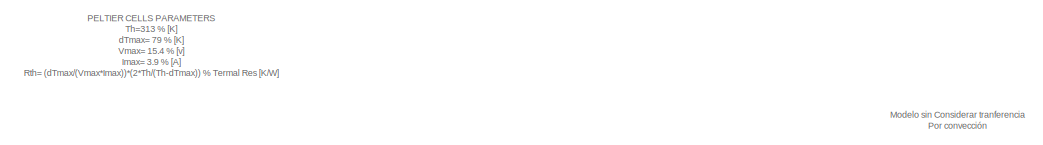
[diagram: root canvas - part 1/4, top left region]
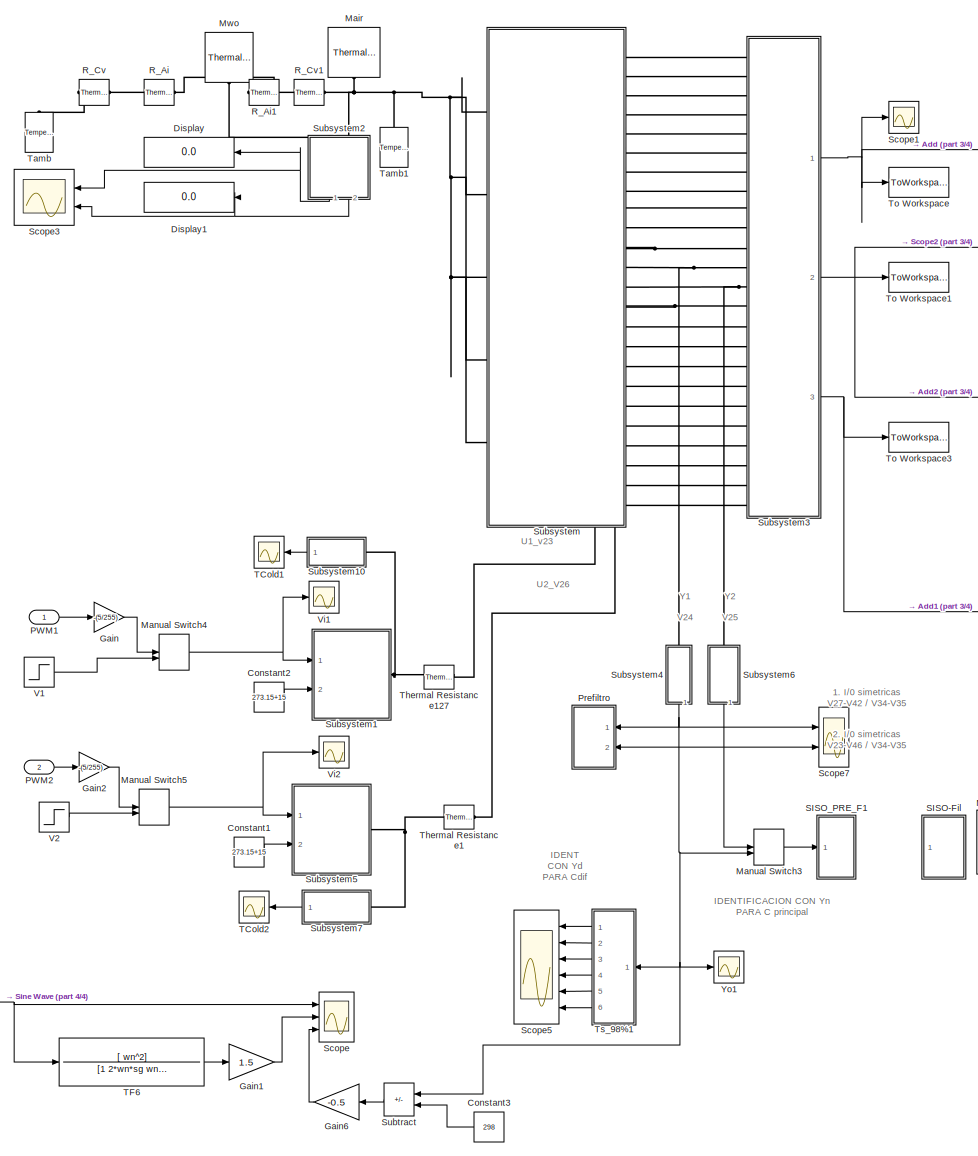
[diagram: root canvas - part 2/4, center side, full height]
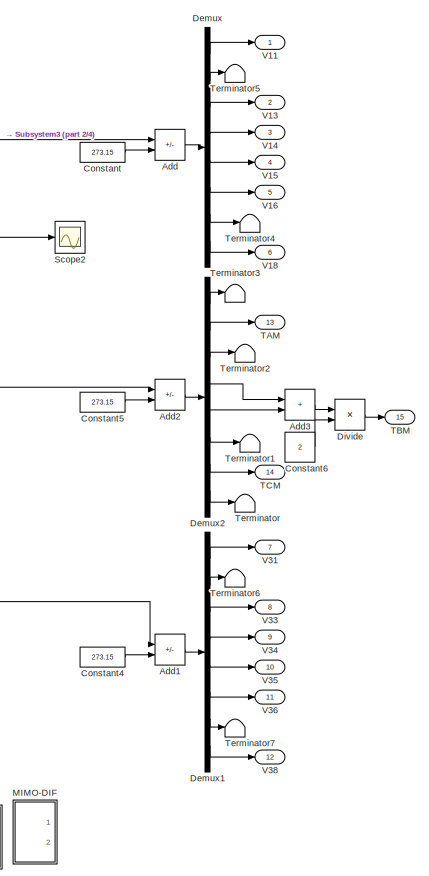
[diagram: root canvas - part 3/4, middle right region]
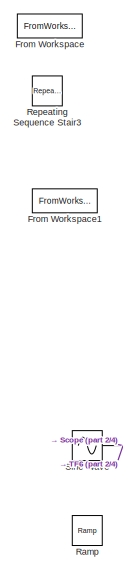
[diagram: root canvas - part 4/4, bottom left region]
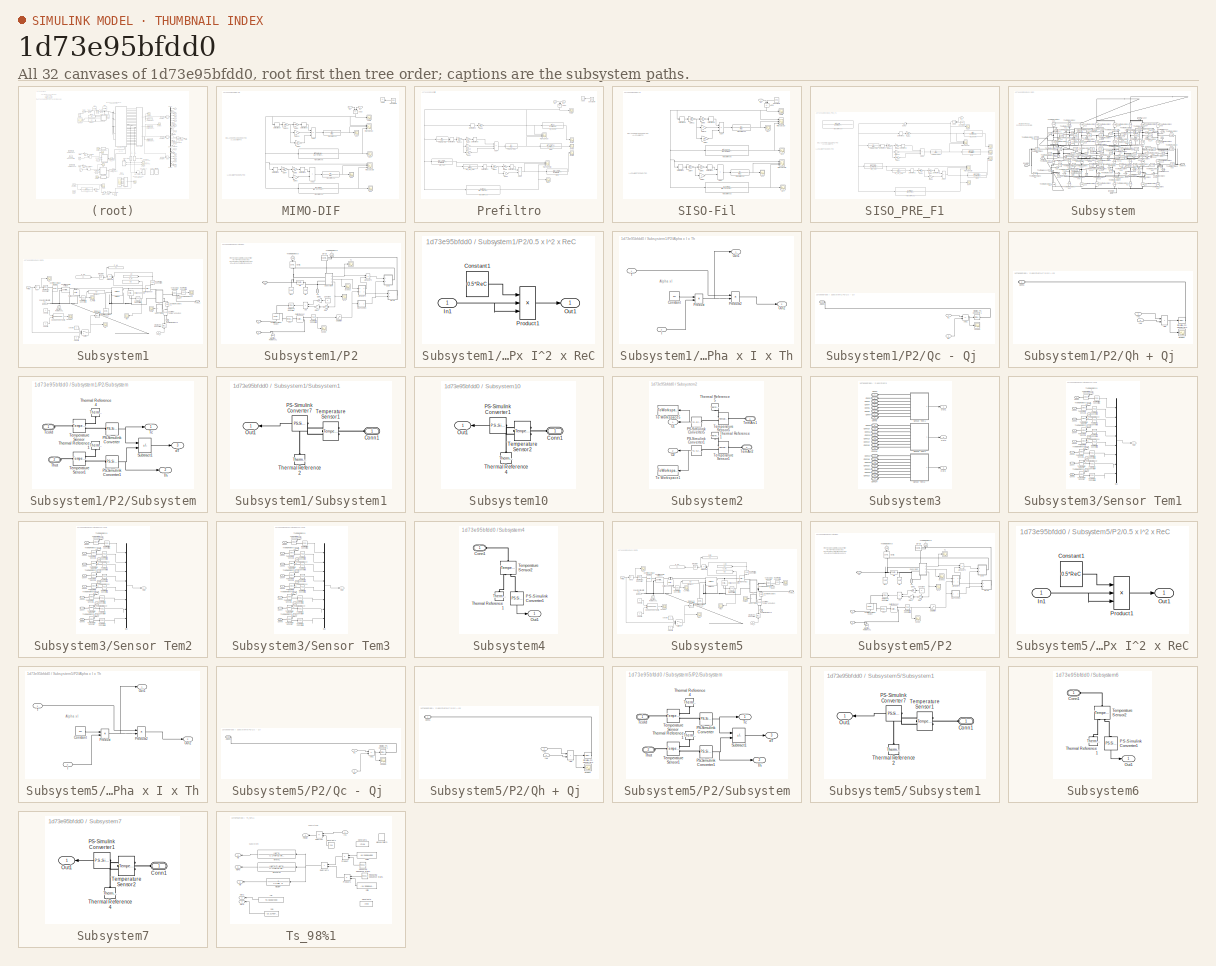
[diagram: thumbnail index - all 32 canvases of the model, root first then tree order]
MODEL slx_1d73e95bfdd0
KIND model
CONFIG AbsTol = auto
CONFIG EnableMultiTasking = off
CONFIG FixedStep = auto
CONFIG InitFcn = tsim=1000\nsg=1;\nTs=500 %500% deseado 890-->Ts modelo\nwn=5.8335/Ts; %2ord\nwp=4/Ts; %np=1.5; 1ord\nwt1=8*wn\nwt=3.5*wn\nwt3=3.49*wn\nnf=2.5; %[1.2 1.5 1.75 2 2.5]\n%Tfp=1/(np*wp)\nTf= 1/(nf*wn) % f del filtro;\nnf3=5\nTf3= 1/(nf3*wn) \nRpc=0.09 % cold side resistor\nRph= 0.6 % hot side resistor\nTamb=273.15+15 % ambiental temp\nTin=273.15+15 % initial temp of mass\n%TinA= 284.9405 % internal air Inicial temp\n%Ti...<+3112ch>
CONFIG MaxStep = auto
CONFIG MinStep = auto
CONFIG RelTol = 1e-3
CONFIG SampleTimeConstraint = Unconstrained
CONFIG Solver = VariableStepAuto
CONFIG SolverName = VariableStepAuto
CONFIG StartTime = 0.0
CONFIG StopTime = tsim
BLOCK [Sum] Add
  IconShape = rectangular
  Inputs = +-
  Ports = [2, 1]
BLOCK [Sum] Add1
  IconShape = rectangular
  Inputs = +-
  Ports = [2, 1]
BLOCK [Sum] Add2
  IconShape = rectangular
  Inputs = +-
  Ports = [2, 1]
BLOCK [Sum] Add3
  IconShape = rectangular
  Ports = [2, 1]
BLOCK [Constant] Constant
  Value = 273.15
BLOCK [Constant] Constant1
  Value = 273.15+15
BLOCK [Constant] Constant2
  Value = 273.15+15
BLOCK [Constant] Constant3
  Commented = on
  Value = 298
BLOCK [Constant] Constant4
  Value = 273.15
BLOCK [Constant] Constant5
  Value = 273.15
BLOCK [Constant] Constant6
  Value = 2
BLOCK [Demux] Demux
  Outputs = 8
  Ports = [1, 8]
BLOCK [Demux] Demux1
  Outputs = 8
  Ports = [1, 8]
BLOCK [Demux] Demux2
  Outputs = 8
  Ports = [1, 8]
BLOCK [Display] Display
  Commented = on
  Decimation = 1
  Ports = [1]
BLOCK [Display] Display1
  Commented = on
  Decimation = 1
  Ports = [1]
BLOCK [Product] Divide
  Inputs = */
  Ports = [2, 1]
BLOCK [FromWorkspace] From Workspace
  Commented = on
  SampleTime = 1
  VariableName = Uprbs
BLOCK [FromWorkspace] From Workspace1
  Commented = on
  SampleTime = 1
  VariableName = Uprbs2
BLOCK [Gain] Gain
  Gain = -(5/255)
BLOCK [Gain] Gain1
  Commented = on
  Gain = 1.5
BLOCK [Gain] Gain2
  Gain = -(5/255)
BLOCK [Gain] Gain6
  Commented = on
  Gain = -0.5
BLOCK [SubSystem] MIMO-DIF
  Commented = on
  Ports = [2]
BLOCK [Scope] MIMO-DIF/(Yr-Uv1-Uv2)Ol
  Floating = off
  NumInputPorts = 3
  Ports = [3]
  ScopeSpecificationString = Simulink.scopes.TimeScopeBlockCfg('CurrentConfiguration', extmgr.ConfigurationSet(extmgr.Configuration('Core','General UI',true),extmgr.Configuration('Core','Source UI',true),extmgr.Configuration('Sources','WiredSimulink',true,'DataLoggingVariableName','ScopeData1'),extmgr.Configuration('Visuals','Time Domain',true,'SerializedDisplays',{struct('MinYLimReal','-21.66456','MaxYLimReal','21.50957','YL...<+1441ch>
BLOCK [Scope] MIMO-DIF/(Yr-Uv1-Uv2)cl
  Floating = off
  NumInputPorts = 3
  Ports = [3]
  ScopeSpecificationString = Simulink.scopes.TimeScopeBlockCfg('CurrentConfiguration', extmgr.ConfigurationSet(extmgr.Configuration('Core','General UI',true),extmgr.Configuration('Core','Source UI',true),extmgr.Configuration('Sources','WiredSimulink',true,'DataLoggingVariableName','ScopeData4'),extmgr.Configuration('Visuals','Time Domain',true,'SerializedDisplays',{struct('MinYLimReal','-10.48785','MaxYLimReal','11.30791','YL...<+1439ch>
BLOCK [Sum] MIMO-DIF/Add1
  IconShape = rectangular
  Ports = [2, 1]
BLOCK [Sum] MIMO-DIF/Add3
  IconShape = rectangular
  Inputs = +-
  Ports = [2, 1]
BLOCK [Sum] MIMO-DIF/Add4
  IconShape = rectangular
  Inputs = ++-
  Ports = [3, 1]
BLOCK [Sum] MIMO-DIF/Add5
  Commented = on
  IconShape = rectangular
  Inputs = +-
  Ports = [2, 1]
BLOCK [Constant] MIMO-DIF/Constant4
  Commented = on
  Value = 298
BLOCK [Derivative] MIMO-DIF/Derivative1
BLOCK [Derivative] MIMO-DIF/Derivative2
BLOCK [Derivative] MIMO-DIF/Derivative8
BLOCK [Derivative] MIMO-DIF/Derivative9
BLOCK [Gain] MIMO-DIF/Gain1
  Gain = 1/nf
BLOCK [Gain] MIMO-DIF/Gain10
  Gain = 2
BLOCK [Gain] MIMO-DIF/Gain11
  Gain = 1/wn
BLOCK [Gain] MIMO-DIF/Gain3
  Gain = 2
BLOCK [Gain] MIMO-DIF/Gain4
  Gain = 1/wn
BLOCK [Gain] MIMO-DIF/Gain5
  Gain = 1/wn
BLOCK [Gain] MIMO-DIF/Gain9
  Gain = 1/wn
BLOCK [Inport] MIMO-DIF/In1
BLOCK [Inport] MIMO-DIF/In2
  Port = 2
BLOCK [Scope] MIMO-DIF/ToDif
  Floating = off
  NumInputPorts = 1
  Ports = [1]
  ScopeSpecificationString = Simulink.scopes.TimeScopeBlockCfg('CurrentConfiguration', extmgr.ConfigurationSet(extmgr.Configuration('Core','General UI',true),extmgr.Configuration('Core','Source UI',true),extmgr.Configuration('Sources','WiredSimulink',true,'DataLoggingVariableName','To27','DataLogging',true,'DataLoggingLimitDataPoints',true,'DataLoggingMaxPoints','50000','DataLoggingSaveFormat','Array','SampleTime','1'),extmgr...<+1573ch>
BLOCK [TransferFcn] MIMO-DIF/Transfer Fcn1
  Denominator = [Tf 1]
BLOCK [TransferFcn] MIMO-DIF/Transfer Fcn2
  Denominator = [Tf 1]
BLOCK [TransferFcn] MIMO-DIF/Transfer Fcn3
  Denominator = [wn^2*Tf^2 2*wn^2*Tf wn^2]
  Numerator = [1 2*wn 0]
BLOCK [TransferFcn] MIMO-DIF/Transfer Fcn6
  Denominator = [1 2*nf*wn nf^2*wn^2]
  Numerator = [(nf^2-1) 2*wn*nf*(nf-1) 0]
BLOCK [Scope] MIMO-DIF/Uv1
  Floating = off
  NumInputPorts = 1
  Ports = [1]
  ScopeSpecificationString = Simulink.scopes.TimeScopeBlockCfg('CurrentConfiguration', extmgr.ConfigurationSet(extmgr.Configuration('Core','General UI',true),extmgr.Configuration('Core','Source UI',true),extmgr.Configuration('Sources','WiredSimulink',true,'DataLoggingVariableName','uv1','DataLogging',true,'DataLoggingLimitDataPoints',true,'DataLoggingMaxPoints','50000','DataLoggingSaveFormat','Array','SampleTime','1'),extmgr....<+1555ch>
BLOCK [Scope] MIMO-DIF/Uv2
  Floating = off
  NumInputPorts = 1
  Ports = [1]
  ScopeSpecificationString = Simulink.scopes.TimeScopeBlockCfg('CurrentConfiguration', extmgr.ConfigurationSet(extmgr.Configuration('Core','General UI',true),extmgr.Configuration('Core','Source UI',true),extmgr.Configuration('Sources','WiredSimulink',true,'DataLoggingVariableName','uv2','DataLogging',true,'DataLoggingLimitDataPoints',true,'DataLoggingMaxPoints','50000','DataLoggingSaveFormat','Array','SampleTime','1'),extmgr....<+1537ch>
BLOCK [Scope] MIMO-DIF/Uv3
  Floating = off
  NumInputPorts = 1
  Ports = [1]
  ScopeSpecificationString = Simulink.scopes.TimeScopeBlockCfg('CurrentConfiguration', extmgr.ConfigurationSet(extmgr.Configuration('Core','General UI',true),extmgr.Configuration('Core','Source UI',true),extmgr.Configuration('Sources','WiredSimulink',true,'DataLoggingVariableName','uv3','DataLogging',true,'DataLoggingLimitDataPoints',true,'DataLoggingMaxPoints','50000','DataLoggingSaveFormat','Array','SampleTime','1'),extmgr....<+1564ch>
BLOCK [Scope] MIMO-DIF/Uv4
  Floating = off
  NumInputPorts = 1
  Ports = [1]
  ScopeSpecificationString = Simulink.scopes.TimeScopeBlockCfg('CurrentConfiguration', extmgr.ConfigurationSet(extmgr.Configuration('Core','General UI',true),extmgr.Configuration('Core','Source UI',true),extmgr.Configuration('Sources','WiredSimulink',true,'DataLoggingVariableName','uv4','DataLogging',true,'DataLoggingLimitDataPoints',true,'DataLoggingMaxPoints','50000','DataLoggingSaveFormat','Array','SampleTime','1'),extmgr....<+1543ch>
BLOCK [Reference] Mair  REF=fl_lib/Thermal/Thermal Elements/Thermal Mass
  Commented = on
  Ports = [0, 0, 0, 0, 0, 1]
  SourceBlock = fl_lib/Thermal/Thermal Elements/Thermal Mass
  SourceType = Thermal Mass
BLOCK [ManualSwitch] Manual Switch3
  Commented = on
  CurrentSetting = 0
BLOCK [ManualSwitch] Manual Switch4
BLOCK [ManualSwitch] Manual Switch5
BLOCK [Reference] Mwo  REF=fl_lib/Thermal/Thermal Elements/Thermal Mass
  Commented = on
  Ports = [0, 0, 0, 0, 0, 1]
  SourceBlock = fl_lib/Thermal/Thermal Elements/Thermal Mass
  SourceType = Thermal Mass
BLOCK [Inport] PWM1
BLOCK [Inport] PWM2
  Port = 2
BLOCK [SubSystem] Prefiltro
  Commented = on
  Ports = [2]
BLOCK [Scope] Prefiltro/(Yr-Uv1-Uv2)Ol
  Commented = on
  Floating = off
  NumInputPorts = 3
  Ports = [3]
  ScopeSpecificationString = Simulink.scopes.TimeScopeBlockCfg('CurrentConfiguration', extmgr.ConfigurationSet(extmgr.Configuration('Core','General UI',true),extmgr.Configuration('Core','Source UI',true),extmgr.Configuration('Sources','WiredSimulink',true,'DataLoggingVariableName','ScopeData1'),extmgr.Configuration('Visuals','Time Domain',true,'SerializedDisplays',{struct('MinYLimReal','-10438061421960.43359','MaxYLimReal','1...<+1501ch>
BLOCK [Scope] Prefiltro/(Yr-Uv1-Uv2)cl
  Commented = on
  Floating = off
  NumInputPorts = 3
  Ports = [3]
  ScopeSpecificationString = Simulink.scopes.TimeScopeBlockCfg('CurrentConfiguration', extmgr.ConfigurationSet(extmgr.Configuration('Core','General UI',true),extmgr.Configuration('Core','Source UI',true),extmgr.Configuration('Sources','WiredSimulink',true,'DataLoggingVariableName','ScopeData2'),extmgr.Configuration('Visuals','Time Domain',true,'SerializedDisplays',{struct('MinYLimReal','-2240.24682','MaxYLimReal','19740.00657...<+1493ch>
BLOCK [Sum] Prefiltro/Add1
  IconShape = rectangular
  Ports = [2, 1]
BLOCK [Sum] Prefiltro/Add3
  IconShape = rectangular
  Inputs = +-
  Ports = [2, 1]
BLOCK [Sum] Prefiltro/Add4
  IconShape = rectangular
  Inputs = ++-
  Ports = [3, 1]
BLOCK [Sum] Prefiltro/Add5
  Commented = on
  IconShape = rectangular
  Inputs = +-
  Ports = [2, 1]
BLOCK [Constant] Prefiltro/Constant4
  Commented = on
  Value = 298
BLOCK [Derivative] Prefiltro/Derivative1
BLOCK [Derivative] Prefiltro/Derivative2
BLOCK [Derivative] Prefiltro/Derivative3
BLOCK [Derivative] Prefiltro/Derivative8
BLOCK [Derivative] Prefiltro/Derivative9
BLOCK [Gain] Prefiltro/Gain1
  Gain = 1/nf
BLOCK [Gain] Prefiltro/Gain10
  Gain = 2
BLOCK [Gain] Prefiltro/Gain11
  Gain = 1/wn
BLOCK [Gain] Prefiltro/Gain3
  Gain = 2
BLOCK [Gain] Prefiltro/Gain4
  Gain = 1/wn
BLOCK [Gain] Prefiltro/Gain5
  Gain = 1/wn
BLOCK [Gain] Prefiltro/Gain6
  Gain = 1/wp
BLOCK [Gain] Prefiltro/Gain9
  Gain = 1/wn
BLOCK [Inport] Prefiltro/In1
BLOCK [Inport] Prefiltro/In2
  Port = 2
BLOCK [TransferFcn] Prefiltro/Mcl-2
  Commented = through
  Denominator = [1 2*wt wt^2 ]
  Numerator = [wt^2*Tf wt^2]
BLOCK [TransferFcn] Prefiltro/Mcl-3
  Commented = through
  Denominator = [1 2*wt3 wt3^2 ]
  Numerator = [wt3^2*Tf wt3^2]
BLOCK [TransferFcn] Prefiltro/PRE-FILTRO
  Denominator = [Tf 1]
BLOCK [TransferFcn] Prefiltro/PRE-FILTRO1
  Commented = through
  Denominator = [Tf 1]
BLOCK [TransferFcn] Prefiltro/Tf3_nf3_5wn
  Denominator = [Tf3 1]
BLOCK [Scope] Prefiltro/ToDif
  Floating = off
  NumInputPorts = 1
  Ports = [1]
  ScopeSpecificationString = Simulink.scopes.TimeScopeBlockCfg('CurrentConfiguration', extmgr.ConfigurationSet(extmgr.Configuration('Core','General UI',true),extmgr.Configuration('Core','Source UI',true),extmgr.Configuration('Sources','WiredSimulink',true,'DataLoggingVariableName','To27','DataLogging',true,'DataLoggingLimitDataPoints',true,'DataLoggingMaxPoints','50000','DataLoggingSaveFormat','Array','SampleTime','1'),extmgr...<+1577ch>
BLOCK [TransferFcn] Prefiltro/Transfer Fcn3
  Commented = on
  Denominator = [wn^2*Tf^2 2*wn^2*Tf wn^2]
  Numerator = [1 2*wn 0]
BLOCK [Scope] Prefiltro/ev4
  Commented = on
  Floating = off
  NumInputPorts = 1
  Ports = [1]
  ScopeSpecificationString = Simulink.scopes.TimeScopeBlockCfg('CurrentConfiguration', extmgr.ConfigurationSet(extmgr.Configuration('Core','General UI',true),extmgr.Configuration('Core','Source UI',true),extmgr.Configuration('Sources','WiredSimulink',true,'DataLoggingVariableName','ScopeData3','DataLogging',true,'DataLoggingLimitDataPoints',true,'DataLoggingMaxPoints','50000','DataLoggingSaveFormat','Array','SampleTime','1'),...<+1531ch>
BLOCK [Scope] Prefiltro/evm1
  Floating = off
  NumInputPorts = 1
  Ports = [1]
  ScopeSpecificationString = Simulink.scopes.TimeScopeBlockCfg('CurrentConfiguration', extmgr.ConfigurationSet(extmgr.Configuration('Core','General UI',true,'FigureColor',[1 1 1]),extmgr.Configuration('Core','Source UI',true),extmgr.Configuration('Sources','WiredSimulink',true,'DataLoggingVariableName','ScopeData4','DataLogging',true,'DataLoggingLimitDataPoints',true,'DataLoggingMaxPoints','50000','DataLoggingSaveFormat','Arr...<+1691ch>
BLOCK [Scope] Prefiltro/evm2
  Floating = off
  NumInputPorts = 1
  Ports = [1]
  ScopeSpecificationString = Simulink.scopes.TimeScopeBlockCfg('CurrentConfiguration', extmgr.ConfigurationSet(extmgr.Configuration('Core','General UI',true),extmgr.Configuration('Core','Source UI',true),extmgr.Configuration('Sources','WiredSimulink',true,'DataLoggingVariableName','ScopeData5','DataLogging',true,'DataLoggingLimitDataPoints',true,'DataLoggingMaxPoints','50000','DataLoggingSaveFormat','Array','SampleTime','1'),...<+1568ch>
BLOCK [Scope] Prefiltro/evm3
  Floating = off
  NumInputPorts = 1
  Ports = [1]
  ScopeSpecificationString = Simulink.scopes.TimeScopeBlockCfg('CurrentConfiguration', extmgr.ConfigurationSet(extmgr.Configuration('Core','General UI',true),extmgr.Configuration('Core','Source UI',true),extmgr.Configuration('Sources','WiredSimulink',true,'DataLoggingVariableName','ScopeData6','DataLogging',true,'DataLoggingLimitDataPoints',true,'DataLoggingMaxPoints','50000','DataLoggingSaveFormat','Array','SampleTime','1'),...<+1566ch>
BLOCK [TransferFcn] Prefiltro/wt3_4wn
  Commented = through
  Denominator = [1 2*wt3 wt3^2 ]
  Numerator = [wt3^2*Tf wt3^2]
BLOCK [TransferFcn] Prefiltro/wt_3p5wn
  Commented = through
  Denominator = [1 2*wt*sg wt^2 ]
  Numerator = [ wt^2]
BLOCK [Reference] R_Ai  REF=fl_lib/Thermal/Thermal Elements/Thermal Resistance
  Commented = on
  Ports = [0, 0, 0, 0, 0, 1, 1]
  SourceBlock = fl_lib/Thermal/Thermal Elements/Thermal Resistance
  SourceType = Thermal Resistance
BLOCK [Reference] R_Ai1  REF=fl_lib/Thermal/Thermal Elements/Thermal Resistance
  Commented = on
  Ports = [0, 0, 0, 0, 0, 1, 1]
  SourceBlock = fl_lib/Thermal/Thermal Elements/Thermal Resistance
  SourceType = Thermal Resistance
BLOCK [Reference] R_Cv  REF=fl_lib/Thermal/Thermal Elements/Thermal Resistance
  Commented = on
  Ports = [0, 0, 0, 0, 0, 1, 1]
  SourceBlock = fl_lib/Thermal/Thermal Elements/Thermal Resistance
  SourceType = Thermal Resistance
BLOCK [Reference] R_Cv1  REF=fl_lib/Thermal/Thermal Elements/Thermal Resistance
  Commented = on
  Ports = [0, 0, 0, 0, 0, 1, 1]
  SourceBlock = fl_lib/Thermal/Thermal Elements/Thermal Resistance
  SourceType = Thermal Resistance
BLOCK [Reference] Ramp  REF=simulink/Sources/Ramp
  Commented = on
  Ports = [0, 1]
  SourceBlock = simulink/Sources/Ramp
  SourceType = Ramp
BLOCK [Reference] Repeating Sequence Stair3  REF=simulink/Sources/Repeating
Sequence
Stair
  Commented = on
  Ports = [0, 1]
  SourceBlock = simulink/Sources/Repeating\nSequence\nStair
  SourceType = Repeating Sequence Stair
BLOCK [SubSystem] SISO-Fil
  Commented = on
  Ports = [1]
BLOCK [Scope] SISO-Fil/(Yr-Uv1-Uv2)Ol
  Floating = off
  NumInputPorts = 3
  Ports = [3]
  ScopeSpecificationString = Simulink.scopes.TimeScopeBlockCfg('CurrentConfiguration', extmgr.ConfigurationSet(extmgr.Configuration('Core','General UI',true),extmgr.Configuration('Core','Source UI',true),extmgr.Configuration('Sources','WiredSimulink',true,'DataLoggingVariableName','ScopeData1'),extmgr.Configuration('Visuals','Time Domain',true,'SerializedDisplays',{struct('MinYLimReal','-21.66456','MaxYLimReal','21.50957','YL...<+1441ch>
BLOCK [Scope] SISO-Fil/(Yr-Uv1-Uv2)cl
  Floating = off
  NumInputPorts = 3
  Ports = [3]
  ScopeSpecificationString = Simulink.scopes.TimeScopeBlockCfg('CurrentConfiguration', extmgr.ConfigurationSet(extmgr.Configuration('Core','General UI',true),extmgr.Configuration('Core','Source UI',true),extmgr.Configuration('Sources','WiredSimulink',true,'DataLoggingVariableName','ScopeData4'),extmgr.Configuration('Visuals','Time Domain',true,'SerializedDisplays',{struct('MinYLimReal','-10.48785','MaxYLimReal','11.30791','YL...<+1439ch>
BLOCK [Sum] SISO-Fil/Add1
  IconShape = rectangular
  Ports = [2, 1]
BLOCK [Sum] SISO-Fil/Add3
  IconShape = rectangular
  Inputs = +-
  Ports = [2, 1]
BLOCK [Sum] SISO-Fil/Add4
  IconShape = rectangular
  Inputs = ++-
  Ports = [3, 1]
BLOCK [Constant] SISO-Fil/Constant4
  Commented = on
  Value = 298
BLOCK [Derivative] SISO-Fil/Derivative1
BLOCK [Derivative] SISO-Fil/Derivative2
BLOCK [Derivative] SISO-Fil/Derivative8
BLOCK [Derivative] SISO-Fil/Derivative9
BLOCK [Gain] SISO-Fil/Gain1
  Gain = 1/nf
BLOCK [Gain] SISO-Fil/Gain10
  Gain = 2
BLOCK [Gain] SISO-Fil/Gain11
  Gain = 1/wn
BLOCK [Gain] SISO-Fil/Gain3
  Gain = 2
BLOCK [Gain] SISO-Fil/Gain4
  Gain = 1/wn
BLOCK [Gain] SISO-Fil/Gain5
  Gain = 1/wn
BLOCK [Gain] SISO-Fil/Gain9
  Gain = 1/wn
BLOCK [Inport] SISO-Fil/In2
BLOCK [Scope] SISO-Fil/ToDif
  Floating = off
  NumInputPorts = 1
  Ports = [1]
  ScopeSpecificationString = Simulink.scopes.TimeScopeBlockCfg('CurrentConfiguration', extmgr.ConfigurationSet(extmgr.Configuration('Core','General UI',true),extmgr.Configuration('Core','Source UI',true),extmgr.Configuration('Sources','WiredSimulink',true,'DataLoggingVariableName','To27','DataLogging',true,'DataLoggingLimitDataPoints',true,'DataLoggingMaxPoints','50000','DataLoggingSaveFormat','Array','SampleTime','1'),extmgr...<+1573ch>
BLOCK [TransferFcn] SISO-Fil/Transfer Fcn1
  Denominator = [Tf 1]
BLOCK [TransferFcn] SISO-Fil/Transfer Fcn2
  Denominator = [Tf 1]
BLOCK [TransferFcn] SISO-Fil/Transfer Fcn3
  Denominator = [wn^2*Tf^2 2*wn^2*Tf wn^2]
  Numerator = [1 2*wn 0]
BLOCK [TransferFcn] SISO-Fil/Transfer Fcn6
  Denominator = [1 2*nf*wn nf^2*wn^2]
  Numerator = [(nf^2-1) 2*wn*nf*(nf-1) 0]
BLOCK [Scope] SISO-Fil/Uv1
  Floating = off
  NumInputPorts = 1
  Ports = [1]
  ScopeSpecificationString = Simulink.scopes.TimeScopeBlockCfg('CurrentConfiguration', extmgr.ConfigurationSet(extmgr.Configuration('Core','General UI',true),extmgr.Configuration('Core','Source UI',true),extmgr.Configuration('Sources','WiredSimulink',true,'DataLoggingVariableName','uv1','DataLogging',true,'DataLoggingLimitDataPoints',true,'DataLoggingMaxPoints','50000','DataLoggingSaveFormat','Array','SampleTime','1'),extmgr....<+1555ch>
BLOCK [Scope] SISO-Fil/Uv2
  Floating = off
  NumInputPorts = 1
  Ports = [1]
  ScopeSpecificationString = Simulink.scopes.TimeScopeBlockCfg('CurrentConfiguration', extmgr.ConfigurationSet(extmgr.Configuration('Core','General UI',true),extmgr.Configuration('Core','Source UI',true),extmgr.Configuration('Sources','WiredSimulink',true,'DataLoggingVariableName','uv2','DataLogging',true,'DataLoggingLimitDataPoints',true,'DataLoggingMaxPoints','50000','DataLoggingSaveFormat','Array','SampleTime','1'),extmgr....<+1537ch>
BLOCK [Scope] SISO-Fil/Uv3
  Floating = off
  NumInputPorts = 1
  Ports = [1]
  ScopeSpecificationString = Simulink.scopes.TimeScopeBlockCfg('CurrentConfiguration', extmgr.ConfigurationSet(extmgr.Configuration('Core','General UI',true),extmgr.Configuration('Core','Source UI',true),extmgr.Configuration('Sources','WiredSimulink',true,'DataLoggingVariableName','uv3','DataLogging',true,'DataLoggingLimitDataPoints',true,'DataLoggingMaxPoints','50000','DataLoggingSaveFormat','Array','SampleTime','1'),extmgr....<+1564ch>
BLOCK [Scope] SISO-Fil/Uv4
  Floating = off
  NumInputPorts = 1
  Ports = [1]
  ScopeSpecificationString = Simulink.scopes.TimeScopeBlockCfg('CurrentConfiguration', extmgr.ConfigurationSet(extmgr.Configuration('Core','General UI',true),extmgr.Configuration('Core','Source UI',true),extmgr.Configuration('Sources','WiredSimulink',true,'DataLoggingVariableName','uv4','DataLogging',true,'DataLoggingLimitDataPoints',true,'DataLoggingMaxPoints','50000','DataLoggingSaveFormat','Array','SampleTime','1'),extmgr....<+1543ch>
BLOCK [SubSystem] SISO_PRE_F1
  Commented = on
  Ports = [1]
BLOCK [Scope] SISO_PRE_F1/(Yr-Uv1-Uv2)Ol
  Commented = on
  Floating = off
  NumInputPorts = 3
  Ports = [3]
  ScopeSpecificationString = Simulink.scopes.TimeScopeBlockCfg('CurrentConfiguration', extmgr.ConfigurationSet(extmgr.Configuration('Core','General UI',true),extmgr.Configuration('Core','Source UI',true),extmgr.Configuration('Sources','WiredSimulink',true,'DataLoggingVariableName','ScopeData1'),extmgr.Configuration('Visuals','Time Domain',true,'SerializedDisplays',{struct('MinYLimReal','-10438061421960.43359','MaxYLimReal','1...<+1501ch>
BLOCK [Scope] SISO_PRE_F1/(Yr-Uv1-Uv2)cl
  Commented = on
  Floating = off
  NumInputPorts = 3
  Ports = [3]
  ScopeSpecificationString = Simulink.scopes.TimeScopeBlockCfg('CurrentConfiguration', extmgr.ConfigurationSet(extmgr.Configuration('Core','General UI',true),extmgr.Configuration('Core','Source UI',true),extmgr.Configuration('Sources','WiredSimulink',true,'DataLoggingVariableName','ScopeData4'),extmgr.Configuration('Visuals','Time Domain',true,'SerializedDisplays',{struct('MinYLimReal','-2240.24682','MaxYLimReal','19740.00657...<+1493ch>
BLOCK [Sum] SISO_PRE_F1/Add1
  IconShape = rectangular
  Ports = [2, 1]
BLOCK [Sum] SISO_PRE_F1/Add2
  IconShape = rectangular
  Inputs = +-
  Ports = [2, 1]
BLOCK [Sum] SISO_PRE_F1/Add4
  IconShape = rectangular
  Inputs = ++-
  Ports = [3, 1]
BLOCK [Constant] SISO_PRE_F1/Constant4
  Value = 298
BLOCK [Derivative] SISO_PRE_F1/Derivative1
BLOCK [Derivative] SISO_PRE_F1/Derivative2
BLOCK [Derivative] SISO_PRE_F1/Derivative3
BLOCK [Derivative] SISO_PRE_F1/Derivative8
BLOCK [Derivative] SISO_PRE_F1/Derivative9
BLOCK [Gain] SISO_PRE_F1/Gain1
  Gain = 1/nf
BLOCK [Gain] SISO_PRE_F1/Gain10
  Gain = 2
BLOCK [Gain] SISO_PRE_F1/Gain11
  Gain = 1/wn
BLOCK [Gain] SISO_PRE_F1/Gain2
BLOCK [Gain] SISO_PRE_F1/Gain3
  Gain = 2
BLOCK [Gain] SISO_PRE_F1/Gain4
  Gain = 1/wn
BLOCK [Gain] SISO_PRE_F1/Gain5
  Gain = 1/wn
BLOCK [Gain] SISO_PRE_F1/Gain6
  Gain = 1/wp
BLOCK [Gain] SISO_PRE_F1/Gain9
  Gain = 1/wn
BLOCK [Inport] SISO_PRE_F1/In2
BLOCK [TransferFcn] SISO_PRE_F1/Mcl-2
  Commented = through
  Denominator = [1 2*wt wt^2 ]
  Numerator = [wt^2*Tf wt^2]
BLOCK [TransferFcn] SISO_PRE_F1/Mcl-3
  Commented = through
  Denominator = [1 2*wt3 wt3^2 ]
  Numerator = [wt3^2*Tf wt3^2]
BLOCK [TransferFcn] SISO_PRE_F1/PRE-FILTRO
  Denominator = [Tf 1]
BLOCK [TransferFcn] SISO_PRE_F1/PRE-FILTRO1
  Commented = through
  Denominator = [Tf 1]
BLOCK [TransferFcn] SISO_PRE_F1/Tf3_nf3_5wn
  Denominator = [Tf3 1]
BLOCK [Scope] SISO_PRE_F1/To27
  Floating = off
  NumInputPorts = 1
  Ports = [1]
  ScopeSpecificationString = Simulink.scopes.TimeScopeBlockCfg('CurrentConfiguration', extmgr.ConfigurationSet(extmgr.Configuration('Core','General UI',true),extmgr.Configuration('Core','Source UI',true),extmgr.Configuration('Sources','WiredSimulink',true,'DataLoggingVariableName','To27','DataLogging',true,'DataLoggingLimitDataPoints',true,'DataLoggingMaxPoints','50000','DataLoggingSaveFormat','Array','SampleTime','1'),extmgr...<+1578ch>
BLOCK [TransferFcn] SISO_PRE_F1/Transfer Fcn3
  Commented = on
  Denominator = [wn^2*Tf^2 2*wn^2*Tf wn^2]
  Numerator = [1 2*wn 0]
BLOCK [TransferFcn] SISO_PRE_F1/Transfer Fcn6
  Commented = on
  Denominator = [1 2*nf*wn nf^2*wn^2]
  Numerator = [(nf^2-1) 2*wn*nf*(nf-1) 0]
BLOCK [Scope] SISO_PRE_F1/ev4
  Commented = on
  Floating = off
  NumInputPorts = 1
  Ports = [1]
  ScopeSpecificationString = Simulink.scopes.TimeScopeBlockCfg('CurrentConfiguration', extmgr.ConfigurationSet(extmgr.Configuration('Core','General UI',true),extmgr.Configuration('Core','Source UI',true),extmgr.Configuration('Sources','WiredSimulink',true,'DataLoggingVariableName','evm4','DataLogging',true,'DataLoggingLimitDataPoints',true,'DataLoggingMaxPoints','50000','DataLoggingSaveFormat','Array','SampleTime','1'),extmgr...<+1525ch>
BLOCK [Scope] SISO_PRE_F1/evm1
  Floating = off
  NumInputPorts = 1
  Ports = [1]
  ScopeSpecificationString = Simulink.scopes.TimeScopeBlockCfg('CurrentConfiguration', extmgr.ConfigurationSet(extmgr.Configuration('Core','General UI',true,'FigureColor',[1 1 1]),extmgr.Configuration('Core','Source UI',true),extmgr.Configuration('Sources','WiredSimulink',true,'DataLoggingVariableName','evm1','DataLogging',true,'DataLoggingLimitDataPoints',true,'DataLoggingMaxPoints','50000','DataLoggingSaveFormat','Array','S...<+1685ch>
BLOCK [Scope] SISO_PRE_F1/evm2
  Floating = off
  NumInputPorts = 1
  Ports = [1]
  ScopeSpecificationString = Simulink.scopes.TimeScopeBlockCfg('CurrentConfiguration', extmgr.ConfigurationSet(extmgr.Configuration('Core','General UI',true),extmgr.Configuration('Core','Source UI',true),extmgr.Configuration('Sources','WiredSimulink',true,'DataLoggingVariableName','evm2','DataLogging',true,'DataLoggingLimitDataPoints',true,'DataLoggingMaxPoints','50000','DataLoggingSaveFormat','Array','SampleTime','1'),extmgr...<+1562ch>
BLOCK [Scope] SISO_PRE_F1/evm3
  Floating = off
  NumInputPorts = 1
  Ports = [1]
  ScopeSpecificationString = Simulink.scopes.TimeScopeBlockCfg('CurrentConfiguration', extmgr.ConfigurationSet(extmgr.Configuration('Core','General UI',true),extmgr.Configuration('Core','Source UI',true),extmgr.Configuration('Sources','WiredSimulink',true,'DataLoggingVariableName','evm3','DataLogging',true,'DataLoggingLimitDataPoints',true,'DataLoggingMaxPoints','50000','DataLoggingSaveFormat','Array','SampleTime','1'),extmgr...<+1560ch>
BLOCK [TransferFcn] SISO_PRE_F1/wt3_4wn
  Commented = through
  Denominator = [1 2*wt3 wt3^2 ]
  Numerator = [wt3^2*Tf wt3^2]
BLOCK [TransferFcn] SISO_PRE_F1/wt_3p5wn
  Commented = through
  Denominator = [1 2*wt*sg wt^2 ]
  Numerator = [ wt^2]
BLOCK [Scope] Scope
  Commented = on
  Floating = off
  NumInputPorts = 3
  Ports = [3]
  ScopeSpecificationString = Simulink.scopes.TimeScopeBlockCfg('CurrentConfiguration', extmgr.ConfigurationSet(extmgr.Configuration('Core','General UI',true),extmgr.Configuration('Core','Source UI',true),extmgr.Configuration('Sources','WiredSimulink',true,'DataLoggingVariableName','ScopeData3'),extmgr.Configuration('Visuals','Time Domain',true,'SerializedDisplays',{struct('MinYLimReal','-15.38317','MaxYLimReal','7.2648','YLab...<+1450ch>
BLOCK [Scope] Scope1
  Floating = off
  NumInputPorts = 1
  Ports = [1]
  ScopeSpecificationString = Simulink.scopes.TimeScopeBlockCfg('CurrentConfiguration', extmgr.ConfigurationSet(extmgr.Configuration('Core','General UI',true),extmgr.Configuration('Core','Source UI',true),extmgr.Configuration('Sources','WiredSimulink',true,'DataLoggingVariableName','ScopeData1'),extmgr.Configuration('Visuals','Time Domain',true,'SerializedDisplays',{struct('MinYLimReal','284.75683','MaxYLimReal','318.68857','Y...<+1580ch>
BLOCK [Scope] Scope2
  Floating = off
  NumInputPorts = 1
  Ports = [1]
  ScopeSpecificationString = Simulink.scopes.TimeScopeBlockCfg('CurrentConfiguration', extmgr.ConfigurationSet(extmgr.Configuration('Core','General UI',true),extmgr.Configuration('Core','Source UI',true),extmgr.Configuration('Sources','WiredSimulink',true,'DataLoggingVariableName','ScopeData1'),extmgr.Configuration('Visuals','Time Domain',true,'SerializedDisplays',{struct('MinYLimReal','271.78667','MaxYLimReal','394.93617','Y...<+1589ch>
BLOCK [Scope] Scope3
  Commented = on
  Floating = off
  NumInputPorts = 2
  Ports = [2]
  ScopeSpecificationString = Simulink.scopes.TimeScopeBlockCfg('CurrentConfiguration', extmgr.ConfigurationSet(extmgr.Configuration('Core','General UI',true),extmgr.Configuration('Core','Source UI',true),extmgr.Configuration('Sources','WiredSimulink',true,'DataLoggingVariableName','ScopeData1'),extmgr.Configuration('Visuals','Time Domain',true,'SerializedDisplays',{struct('MinYLimReal','227.75207','MaxYLimReal','311.36088','Y...<+1483ch>
BLOCK [Scope] Scope5
  Commented = on
  Floating = off
  NumInputPorts = 6
  Ports = [6]
  ScopeSpecificationString = Simulink.scopes.TimeScopeBlockCfg('CurrentConfiguration', extmgr.ConfigurationSet(extmgr.Configuration('Core','General UI',true),extmgr.Configuration('Core','Source UI',true),extmgr.Configuration('Sources','WiredSimulink',true,'DataLoggingVariableName','ScopeData4'),extmgr.Configuration('Visuals','Time Domain',true,'SerializedDisplays',{struct('MinYLimReal','-18.27403','MaxYLimReal','51.19123','YL...<+1791ch>
BLOCK [Scope] Scope7
  Floating = off
  NumInputPorts = 2
  Ports = [2]
  ScopeSpecificationString = Simulink.scopes.TimeScopeBlockCfg('CurrentConfiguration', extmgr.ConfigurationSet(extmgr.Configuration('Core','General UI',true),extmgr.Configuration('Core','Source UI',true),extmgr.Configuration('Sources','WiredSimulink',true,'DataLoggingVariableName','ScopeData1'),extmgr.Configuration('Visuals','Time Domain',true,'SerializedDisplays',{struct('MinYLimReal','278.11238','MaxYLimReal','300.20974','Y...<+1479ch>
BLOCK [Sin] Sine Wave
  Amplitude = 5
  Commented = on
  Frequency = 0.007
  Ports = [0, 1]
  SampleTime = 0
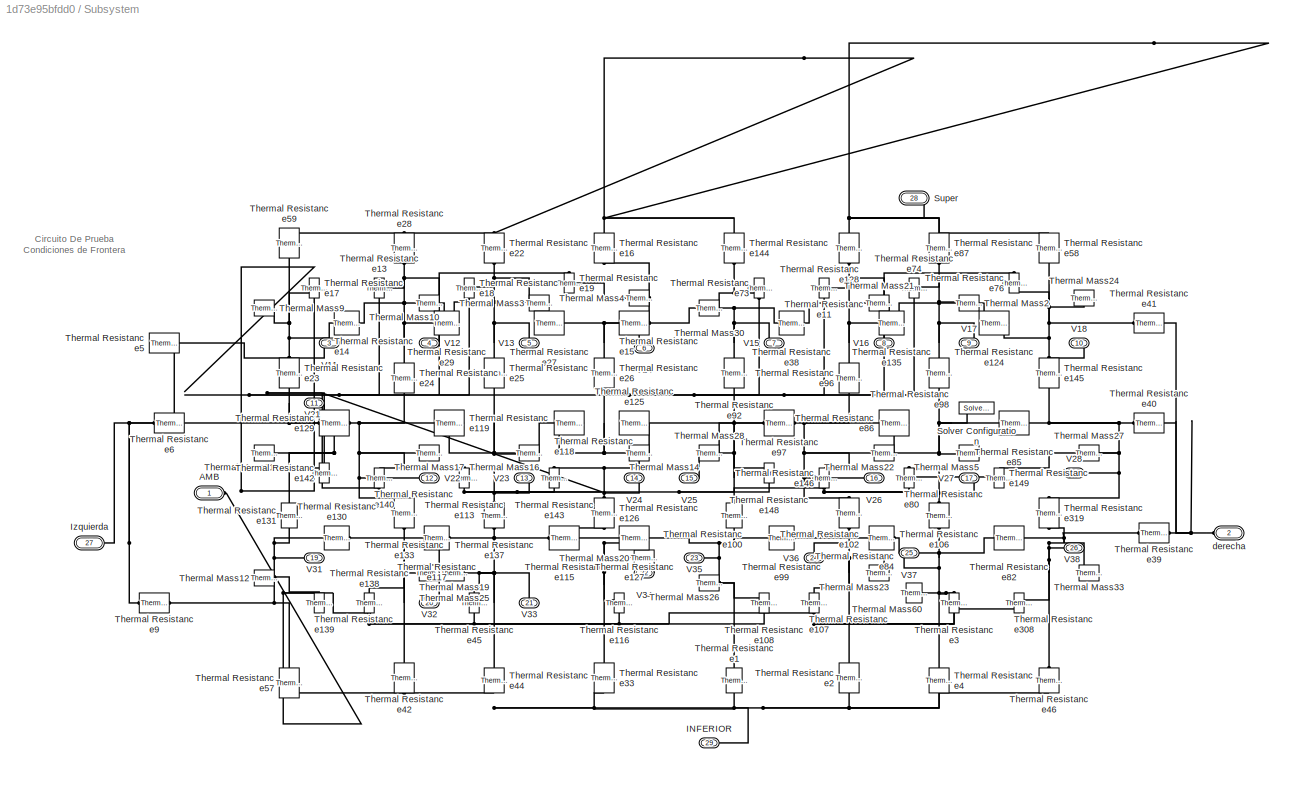
BLOCK [SubSystem] Subsystem
  Ports = [0, 0, 0, 0, 0, 5, 24]
BLOCK [PMIOPort] Subsystem/AMB
  Side = Left
BLOCK [PMIOPort] Subsystem/INFERIOR
  Port = 29
  Side = Left
BLOCK [PMIOPort] Subsystem/Izquierda
  Port = 27
  Side = Left
BLOCK [Reference] Subsystem/Solver Configuration  REF=nesl_utility/Solver
Configuration
  Ports = [0, 0, 0, 0, 0, 0, 1]
  SourceBlock = nesl_utility/Solver\nConfiguration
  SourceType = Solver\nConfiguration
BLOCK [PMIOPort] Subsystem/Super
  Port = 28
  Side = Left
BLOCK [Reference] Subsystem/Thermal Mass10  REF=fl_lib/Thermal/Thermal Elements/Thermal Mass
  Ports = [0, 0, 0, 0, 0, 1]
  SourceBlock = fl_lib/Thermal/Thermal Elements/Thermal Mass
  SourceType = Thermal Mass
BLOCK [Reference] Subsystem/Thermal Mass11  REF=fl_lib/Thermal/Thermal Elements/Thermal Mass
  Ports = [0, 0, 0, 0, 0, 1]
  SourceBlock = fl_lib/Thermal/Thermal Elements/Thermal Mass
  SourceType = Thermal Mass
BLOCK [Reference] Subsystem/Thermal Mass12  REF=fl_lib/Thermal/Thermal Elements/Thermal Mass
  Ports = [0, 0, 0, 0, 0, 1]
  SourceBlock = fl_lib/Thermal/Thermal Elements/Thermal Mass
  SourceType = Thermal Mass
BLOCK [Reference] Subsystem/Thermal Mass14  REF=fl_lib/Thermal/Thermal Elements/Thermal Mass
  Ports = [0, 0, 0, 0, 0, 1]
  SourceBlock = fl_lib/Thermal/Thermal Elements/Thermal Mass
  SourceType = Thermal Mass
BLOCK [Reference] Subsystem/Thermal Mass16  REF=fl_lib/Thermal/Thermal Elements/Thermal Mass
  Ports = [0, 0, 0, 0, 0, 1]
  SourceBlock = fl_lib/Thermal/Thermal Elements/Thermal Mass
  SourceType = Thermal Mass
BLOCK [Reference] Subsystem/Thermal Mass17  REF=fl_lib/Thermal/Thermal Elements/Thermal Mass
  Ports = [0, 0, 0, 0, 0, 1]
  SourceBlock = fl_lib/Thermal/Thermal Elements/Thermal Mass
  SourceType = Thermal Mass
BLOCK [Reference] Subsystem/Thermal Mass19  REF=fl_lib/Thermal/Thermal Elements/Thermal Mass
  Ports = [0, 0, 0, 0, 0, 1]
  SourceBlock = fl_lib/Thermal/Thermal Elements/Thermal Mass
  SourceType = Thermal Mass
BLOCK [Reference] Subsystem/Thermal Mass2  REF=fl_lib/Thermal/Thermal Elements/Thermal Mass
  Ports = [0, 0, 0, 0, 0, 1]
  SourceBlock = fl_lib/Thermal/Thermal Elements/Thermal Mass
  SourceType = Thermal Mass
BLOCK [Reference] Subsystem/Thermal Mass20  REF=fl_lib/Thermal/Thermal Elements/Thermal Mass
  Ports = [0, 0, 0, 0, 0, 1]
  SourceBlock = fl_lib/Thermal/Thermal Elements/Thermal Mass
  SourceType = Thermal Mass
BLOCK [Reference] Subsystem/Thermal Mass21  REF=fl_lib/Thermal/Thermal Elements/Thermal Mass
  Ports = [0, 0, 0, 0, 0, 1]
  SourceBlock = fl_lib/Thermal/Thermal Elements/Thermal Mass
  SourceType = Thermal Mass
BLOCK [Reference] Subsystem/Thermal Mass22  REF=fl_lib/Thermal/Thermal Elements/Thermal Mass
  Ports = [0, 0, 0, 0, 0, 1]
  SourceBlock = fl_lib/Thermal/Thermal Elements/Thermal Mass
  SourceType = Thermal Mass
BLOCK [Reference] Subsystem/Thermal Mass23  REF=fl_lib/Thermal/Thermal Elements/Thermal Mass
  Ports = [0, 0, 0, 0, 0, 1]
  SourceBlock = fl_lib/Thermal/Thermal Elements/Thermal Mass
  SourceType = Thermal Mass
BLOCK [Reference] Subsystem/Thermal Mass24  REF=fl_lib/Thermal/Thermal Elements/Thermal Mass
  Ports = [0, 0, 0, 0, 0, 1]
  SourceBlock = fl_lib/Thermal/Thermal Elements/Thermal Mass
  SourceType = Thermal Mass
BLOCK [Reference] Subsystem/Thermal Mass25  REF=fl_lib/Thermal/Thermal Elements/Thermal Mass
  Ports = [0, 0, 0, 0, 0, 1]
  SourceBlock = fl_lib/Thermal/Thermal Elements/Thermal Mass
  SourceType = Thermal Mass
BLOCK [Reference] Subsystem/Thermal Mass26  REF=fl_lib/Thermal/Thermal Elements/Thermal Mass
  Ports = [0, 0, 0, 0, 0, 1]
  SourceBlock = fl_lib/Thermal/Thermal Elements/Thermal Mass
  SourceType = Thermal Mass
BLOCK [Reference] Subsystem/Thermal Mass27  REF=fl_lib/Thermal/Thermal Elements/Thermal Mass
  Ports = [0, 0, 0, 0, 0, 1]
  SourceBlock = fl_lib/Thermal/Thermal Elements/Thermal Mass
  SourceType = Thermal Mass
BLOCK [Reference] Subsystem/Thermal Mass28  REF=fl_lib/Thermal/Thermal Elements/Thermal Mass
  Ports = [0, 0, 0, 0, 0, 1]
  SourceBlock = fl_lib/Thermal/Thermal Elements/Thermal Mass
  SourceType = Thermal Mass
BLOCK [Reference] Subsystem/Thermal Mass3  REF=fl_lib/Thermal/Thermal Elements/Thermal Mass
  Ports = [0, 0, 0, 0, 0, 1]
  SourceBlock = fl_lib/Thermal/Thermal Elements/Thermal Mass
  SourceType = Thermal Mass
BLOCK [Reference] Subsystem/Thermal Mass30  REF=fl_lib/Thermal/Thermal Elements/Thermal Mass
  Ports = [0, 0, 0, 0, 0, 1]
  SourceBlock = fl_lib/Thermal/Thermal Elements/Thermal Mass
  SourceType = Thermal Mass
BLOCK [Reference] Subsystem/Thermal Mass33  REF=fl_lib/Thermal/Thermal Elements/Thermal Mass
  Ports = [0, 0, 0, 0, 0, 1]
  SourceBlock = fl_lib/Thermal/Thermal Elements/Thermal Mass
  SourceType = Thermal Mass
BLOCK [Reference] Subsystem/Thermal Mass4  REF=fl_lib/Thermal/Thermal Elements/Thermal Mass
  Ports = [0, 0, 0, 0, 0, 1]
  SourceBlock = fl_lib/Thermal/Thermal Elements/Thermal Mass
  SourceType = Thermal Mass
BLOCK [Reference] Subsystem/Thermal Mass5  REF=fl_lib/Thermal/Thermal Elements/Thermal Mass
  Ports = [0, 0, 0, 0, 0, 1]
  SourceBlock = fl_lib/Thermal/Thermal Elements/Thermal Mass
  SourceType = Thermal Mass
BLOCK [Reference] Subsystem/Thermal Mass60  REF=fl_lib/Thermal/Thermal Elements/Thermal Mass
  Ports = [0, 0, 0, 0, 0, 1]
  SourceBlock = fl_lib/Thermal/Thermal Elements/Thermal Mass
  SourceType = Thermal Mass
BLOCK [Reference] Subsystem/Thermal Mass9  REF=fl_lib/Thermal/Thermal Elements/Thermal Mass
  Ports = [0, 0, 0, 0, 0, 1]
  SourceBlock = fl_lib/Thermal/Thermal Elements/Thermal Mass
  SourceType = Thermal Mass
BLOCK [Reference] Subsystem/Thermal Resistance1  REF=fl_lib/Thermal/Thermal Elements/Thermal Resistance
  Ports = [0, 0, 0, 0, 0, 1, 1]
  SourceBlock = fl_lib/Thermal/Thermal Elements/Thermal Resistance
  SourceType = Thermal Resistance
BLOCK [Reference] Subsystem/Thermal Resistance100  REF=fl_lib/Thermal/Thermal Elements/Thermal Resistance
  Ports = [0, 0, 0, 0, 0, 1, 1]
  SourceBlock = fl_lib/Thermal/Thermal Elements/Thermal Resistance
  SourceType = Thermal Resistance
BLOCK [Reference] Subsystem/Thermal Resistance102  REF=fl_lib/Thermal/Thermal Elements/Thermal Resistance
  Ports = [0, 0, 0, 0, 0, 1, 1]
  SourceBlock = fl_lib/Thermal/Thermal Elements/Thermal Resistance
  SourceType = Thermal Resistance
BLOCK [Reference] Subsystem/Thermal Resistance106  REF=fl_lib/Thermal/Thermal Elements/Thermal Resistance
  Ports = [0, 0, 0, 0, 0, 1, 1]
  SourceBlock = fl_lib/Thermal/Thermal Elements/Thermal Resistance
  SourceType = Thermal Resistance
BLOCK [Reference] Subsystem/Thermal Resistance107  REF=fl_lib/Thermal/Thermal Elements/Thermal Resistance
  Ports = [0, 0, 0, 0, 0, 1, 1]
  SourceBlock = fl_lib/Thermal/Thermal Elements/Thermal Resistance
  SourceType = Thermal Resistance
BLOCK [Reference] Subsystem/Thermal Resistance108  REF=fl_lib/Thermal/Thermal Elements/Thermal Resistance
  Ports = [0, 0, 0, 0, 0, 1, 1]
  SourceBlock = fl_lib/Thermal/Thermal Elements/Thermal Resistance
  SourceType = Thermal Resistance
BLOCK [Reference] Subsystem/Thermal Resistance11  REF=fl_lib/Thermal/Thermal Elements/Thermal Resistance
  Ports = [0, 0, 0, 0, 0, 1, 1]
  SourceBlock = fl_lib/Thermal/Thermal Elements/Thermal Resistance
  SourceType = Thermal Resistance
BLOCK [Reference] Subsystem/Thermal Resistance113  REF=fl_lib/Thermal/Thermal Elements/Thermal Resistance
  Ports = [0, 0, 0, 0, 0, 1, 1]
  SourceBlock = fl_lib/Thermal/Thermal Elements/Thermal Resistance
  SourceType = Thermal Resistance
BLOCK [Reference] Subsystem/Thermal Resistance115  REF=fl_lib/Thermal/Thermal Elements/Thermal Resistance
  Ports = [0, 0, 0, 0, 0, 1, 1]
  SourceBlock = fl_lib/Thermal/Thermal Elements/Thermal Resistance
  SourceType = Thermal Resistance
BLOCK [Reference] Subsystem/Thermal Resistance116  REF=fl_lib/Thermal/Thermal Elements/Thermal Resistance
  Ports = [0, 0, 0, 0, 0, 1, 1]
  SourceBlock = fl_lib/Thermal/Thermal Elements/Thermal Resistance
  SourceType = Thermal Resistance
BLOCK [Reference] Subsystem/Thermal Resistance117  REF=fl_lib/Thermal/Thermal Elements/Thermal Resistance
  Ports = [0, 0, 0, 0, 0, 1, 1]
  SourceBlock = fl_lib/Thermal/Thermal Elements/Thermal Resistance
  SourceType = Thermal Resistance
BLOCK [Reference] Subsystem/Thermal Resistance118  REF=fl_lib/Thermal/Thermal Elements/Thermal Resistance
  Ports = [0, 0, 0, 0, 0, 1, 1]
  SourceBlock = fl_lib/Thermal/Thermal Elements/Thermal Resistance
  SourceType = Thermal Resistance
BLOCK [Reference] Subsystem/Thermal Resistance119  REF=fl_lib/Thermal/Thermal Elements/Thermal Resistance
  Ports = [0, 0, 0, 0, 0, 1, 1]
  SourceBlock = fl_lib/Thermal/Thermal Elements/Thermal Resistance
  SourceType = Thermal Resistance
BLOCK [Reference] Subsystem/Thermal Resistance124  REF=fl_lib/Thermal/Thermal Elements/Thermal Resistance
  Ports = [0, 0, 0, 0, 0, 1, 1]
  SourceBlock = fl_lib/Thermal/Thermal Elements/Thermal Resistance
  SourceType = Thermal Resistance
BLOCK [Reference] Subsystem/Thermal Resistance125  REF=fl_lib/Thermal/Thermal Elements/Thermal Resistance
  Ports = [0, 0, 0, 0, 0, 1, 1]
  SourceBlock = fl_lib/Thermal/Thermal Elements/Thermal Resistance
  SourceType = Thermal Resistance
BLOCK [Reference] Subsystem/Thermal Resistance126  REF=fl_lib/Thermal/Thermal Elements/Thermal Resistance
  Ports = [0, 0, 0, 0, 0, 1, 1]
  SourceBlock = fl_lib/Thermal/Thermal Elements/Thermal Resistance
  SourceType = Thermal Resistance
BLOCK [Reference] Subsystem/Thermal Resistance127  REF=fl_lib/Thermal/Thermal Elements/Thermal Resistance
  Ports = [0, 0, 0, 0, 0, 1, 1]
  SourceBlock = fl_lib/Thermal/Thermal Elements/Thermal Resistance
  SourceType = Thermal Resistance
BLOCK [Reference] Subsystem/Thermal Resistance128  REF=fl_lib/Thermal/Thermal Elements/Thermal Resistance
  Ports = [0, 0, 0, 0, 0, 1, 1]
  SourceBlock = fl_lib/Thermal/Thermal Elements/Thermal Resistance
  SourceType = Thermal Resistance
BLOCK [Reference] Subsystem/Thermal Resistance129  REF=fl_lib/Thermal/Thermal Elements/Thermal Resistance
  Ports = [0, 0, 0, 0, 0, 1, 1]
  SourceBlock = fl_lib/Thermal/Thermal Elements/Thermal Resistance
  SourceType = Thermal Resistance
BLOCK [Reference] Subsystem/Thermal Resistance13  REF=fl_lib/Thermal/Thermal Elements/Thermal Resistance
  Ports = [0, 0, 0, 0, 0, 1, 1]
  SourceBlock = fl_lib/Thermal/Thermal Elements/Thermal Resistance
  SourceType = Thermal Resistance
BLOCK [Reference] Subsystem/Thermal Resistance130  REF=fl_lib/Thermal/Thermal Elements/Thermal Resistance
  Ports = [0, 0, 0, 0, 0, 1, 1]
  SourceBlock = fl_lib/Thermal/Thermal Elements/Thermal Resistance
  SourceType = Thermal Resistance
BLOCK [Reference] Subsystem/Thermal Resistance131  REF=fl_lib/Thermal/Thermal Elements/Thermal Resistance
  Ports = [0, 0, 0, 0, 0, 1, 1]
  SourceBlock = fl_lib/Thermal/Thermal Elements/Thermal Resistance
  SourceType = Thermal Resistance
BLOCK [Reference] Subsystem/Thermal Resistance133  REF=fl_lib/Thermal/Thermal Elements/Thermal Resistance
  Ports = [0, 0, 0, 0, 0, 1, 1]
  SourceBlock = fl_lib/Thermal/Thermal Elements/Thermal Resistance
  SourceType = Thermal Resistance
BLOCK [Reference] Subsystem/Thermal Resistance135  REF=fl_lib/Thermal/Thermal Elements/Thermal Resistance
  Ports = [0, 0, 0, 0, 0, 1, 1]
  SourceBlock = fl_lib/Thermal/Thermal Elements/Thermal Resistance
  SourceType = Thermal Resistance
BLOCK [Reference] Subsystem/Thermal Resistance137  REF=fl_lib/Thermal/Thermal Elements/Thermal Resistance
  Ports = [0, 0, 0, 0, 0, 1, 1]
  SourceBlock = fl_lib/Thermal/Thermal Elements/Thermal Resistance
  SourceType = Thermal Resistance
BLOCK [Reference] Subsystem/Thermal Resistance138  REF=fl_lib/Thermal/Thermal Elements/Thermal Resistance
  Ports = [0, 0, 0, 0, 0, 1, 1]
  SourceBlock = fl_lib/Thermal/Thermal Elements/Thermal Resistance
  SourceType = Thermal Resistance
BLOCK [Reference] Subsystem/Thermal Resistance139  REF=fl_lib/Thermal/Thermal Elements/Thermal Resistance
  Ports = [0, 0, 0, 0, 0, 1, 1]
  SourceBlock = fl_lib/Thermal/Thermal Elements/Thermal Resistance
  SourceType = Thermal Resistance
BLOCK [Reference] Subsystem/Thermal Resistance14  REF=fl_lib/Thermal/Thermal Elements/Thermal Resistance
  Ports = [0, 0, 0, 0, 0, 1, 1]
  SourceBlock = fl_lib/Thermal/Thermal Elements/Thermal Resistance
  SourceType = Thermal Resistance
BLOCK [Reference] Subsystem/Thermal Resistance140  REF=fl_lib/Thermal/Thermal Elements/Thermal Resistance
  Ports = [0, 0, 0, 0, 0, 1, 1]
  SourceBlock = fl_lib/Thermal/Thermal Elements/Thermal Resistance
  SourceType = Thermal Resistance
BLOCK [Reference] Subsystem/Thermal Resistance142  REF=fl_lib/Thermal/Thermal Elements/Thermal Resistance
  Ports = [0, 0, 0, 0, 0, 1, 1]
  SourceBlock = fl_lib/Thermal/Thermal Elements/Thermal Resistance
  SourceType = Thermal Resistance
BLOCK [Reference] Subsystem/Thermal Resistance143  REF=fl_lib/Thermal/Thermal Elements/Thermal Resistance
  Ports = [0, 0, 0, 0, 0, 1, 1]
  SourceBlock = fl_lib/Thermal/Thermal Elements/Thermal Resistance
  SourceType = Thermal Resistance
BLOCK [Reference] Subsystem/Thermal Resistance144  REF=fl_lib/Thermal/Thermal Elements/Thermal Resistance
  Ports = [0, 0, 0, 0, 0, 1, 1]
  SourceBlock = fl_lib/Thermal/Thermal Elements/Thermal Resistance
  SourceType = Thermal Resistance
BLOCK [Reference] Subsystem/Thermal Resistance145  REF=fl_lib/Thermal/Thermal Elements/Thermal Resistance
  Ports = [0, 0, 0, 0, 0, 1, 1]
  SourceBlock = fl_lib/Thermal/Thermal Elements/Thermal Resistance
  SourceType = Thermal Resistance
BLOCK [Reference] Subsystem/Thermal Resistance146  REF=fl_lib/Thermal/Thermal Elements/Thermal Resistance
  Ports = [0, 0, 0, 0, 0, 1, 1]
  SourceBlock = fl_lib/Thermal/Thermal Elements/Thermal Resistance
  SourceType = Thermal Resistance
BLOCK [Reference] Subsystem/Thermal Resistance148  REF=fl_lib/Thermal/Thermal Elements/Thermal Resistance
  Ports = [0, 0, 0, 0, 0, 1, 1]
  SourceBlock = fl_lib/Thermal/Thermal Elements/Thermal Resistance
  SourceType = Thermal Resistance
BLOCK [Reference] Subsystem/Thermal Resistance149  REF=fl_lib/Thermal/Thermal Elements/Thermal Resistance
  Ports = [0, 0, 0, 0, 0, 1, 1]
  SourceBlock = fl_lib/Thermal/Thermal Elements/Thermal Resistance
  SourceType = Thermal Resistance
BLOCK [Reference] Subsystem/Thermal Resistance15  REF=fl_lib/Thermal/Thermal Elements/Thermal Resistance
  Ports = [0, 0, 0, 0, 0, 1, 1]
  SourceBlock = fl_lib/Thermal/Thermal Elements/Thermal Resistance
  SourceType = Thermal Resistance
BLOCK [Reference] Subsystem/Thermal Resistance16  REF=fl_lib/Thermal/Thermal Elements/Thermal Resistance
  Ports = [0, 0, 0, 0, 0, 1, 1]
  SourceBlock = fl_lib/Thermal/Thermal Elements/Thermal Resistance
  SourceType = Thermal Resistance
BLOCK [Reference] Subsystem/Thermal Resistance17  REF=fl_lib/Thermal/Thermal Elements/Thermal Resistance
  Ports = [0, 0, 0, 0, 0, 1, 1]
  SourceBlock = fl_lib/Thermal/Thermal Elements/Thermal Resistance
  SourceType = Thermal Resistance
BLOCK [Reference] Subsystem/Thermal Resistance18  REF=fl_lib/Thermal/Thermal Elements/Thermal Resistance
  Ports = [0, 0, 0, 0, 0, 1, 1]
  SourceBlock = fl_lib/Thermal/Thermal Elements/Thermal Resistance
  SourceType = Thermal Resistance
BLOCK [Reference] Subsystem/Thermal Resistance19  REF=fl_lib/Thermal/Thermal Elements/Thermal Resistance
  Ports = [0, 0, 0, 0, 0, 1, 1]
  SourceBlock = fl_lib/Thermal/Thermal Elements/Thermal Resistance
  SourceType = Thermal Resistance
BLOCK [Reference] Subsystem/Thermal Resistance2  REF=fl_lib/Thermal/Thermal Elements/Thermal Resistance
  Ports = [0, 0, 0, 0, 0, 1, 1]
  SourceBlock = fl_lib/Thermal/Thermal Elements/Thermal Resistance
  SourceType = Thermal Resistance
BLOCK [Reference] Subsystem/Thermal Resistance22  REF=fl_lib/Thermal/Thermal Elements/Thermal Resistance
  Ports = [0, 0, 0, 0, 0, 1, 1]
  SourceBlock = fl_lib/Thermal/Thermal Elements/Thermal Resistance
  SourceType = Thermal Resistance
BLOCK [Reference] Subsystem/Thermal Resistance23  REF=fl_lib/Thermal/Thermal Elements/Thermal Resistance
  Ports = [0, 0, 0, 0, 0, 1, 1]
  SourceBlock = fl_lib/Thermal/Thermal Elements/Thermal Resistance
  SourceType = Thermal Resistance
BLOCK [Reference] Subsystem/Thermal Resistance24  REF=fl_lib/Thermal/Thermal Elements/Thermal Resistance
  Ports = [0, 0, 0, 0, 0, 1, 1]
  SourceBlock = fl_lib/Thermal/Thermal Elements/Thermal Resistance
  SourceType = Thermal Resistance
BLOCK [Reference] Subsystem/Thermal Resistance25  REF=fl_lib/Thermal/Thermal Elements/Thermal Resistance
  Ports = [0, 0, 0, 0, 0, 1, 1]
  SourceBlock = fl_lib/Thermal/Thermal Elements/Thermal Resistance
  SourceType = Thermal Resistance
BLOCK [Reference] Subsystem/Thermal Resistance26  REF=fl_lib/Thermal/Thermal Elements/Thermal Resistance
  Ports = [0, 0, 0, 0, 0, 1, 1]
  SourceBlock = fl_lib/Thermal/Thermal Elements/Thermal Resistance
  SourceType = Thermal Resistance
BLOCK [Reference] Subsystem/Thermal Resistance27  REF=fl_lib/Thermal/Thermal Elements/Thermal Resistance
  Ports = [0, 0, 0, 0, 0, 1, 1]
  SourceBlock = fl_lib/Thermal/Thermal Elements/Thermal Resistance
  SourceType = Thermal Resistance
BLOCK [Reference] Subsystem/Thermal Resistance28  REF=fl_lib/Thermal/Thermal Elements/Thermal Resistance
  Ports = [0, 0, 0, 0, 0, 1, 1]
  SourceBlock = fl_lib/Thermal/Thermal Elements/Thermal Resistance
  SourceType = Thermal Resistance
BLOCK [Reference] Subsystem/Thermal Resistance29  REF=fl_lib/Thermal/Thermal Elements/Thermal Resistance
  Ports = [0, 0, 0, 0, 0, 1, 1]
  SourceBlock = fl_lib/Thermal/Thermal Elements/Thermal Resistance
  SourceType = Thermal Resistance
BLOCK [Reference] Subsystem/Thermal Resistance3  REF=fl_lib/Thermal/Thermal Elements/Thermal Resistance
  Ports = [0, 0, 0, 0, 0, 1, 1]
  SourceBlock = fl_lib/Thermal/Thermal Elements/Thermal Resistance
  SourceType = Thermal Resistance
BLOCK [Reference] Subsystem/Thermal Resistance308  REF=fl_lib/Thermal/Thermal Elements/Thermal Resistance
  Ports = [0, 0, 0, 0, 0, 1, 1]
  SourceBlock = fl_lib/Thermal/Thermal Elements/Thermal Resistance
  SourceType = Thermal Resistance
BLOCK [Reference] Subsystem/Thermal Resistance319  REF=fl_lib/Thermal/Thermal Elements/Thermal Resistance
  Ports = [0, 0, 0, 0, 0, 1, 1]
  SourceBlock = fl_lib/Thermal/Thermal Elements/Thermal Resistance
  SourceType = Thermal Resistance
BLOCK [Reference] Subsystem/Thermal Resistance33  REF=fl_lib/Thermal/Thermal Elements/Thermal Resistance
  Ports = [0, 0, 0, 0, 0, 1, 1]
  SourceBlock = fl_lib/Thermal/Thermal Elements/Thermal Resistance
  SourceType = Thermal Resistance
BLOCK [Reference] Subsystem/Thermal Resistance38  REF=fl_lib/Thermal/Thermal Elements/Thermal Resistance
  Ports = [0, 0, 0, 0, 0, 1, 1]
  SourceBlock = fl_lib/Thermal/Thermal Elements/Thermal Resistance
  SourceType = Thermal Resistance
BLOCK [Reference] Subsystem/Thermal Resistance39  REF=fl_lib/Thermal/Thermal Elements/Thermal Resistance
  Ports = [0, 0, 0, 0, 0, 1, 1]
  SourceBlock = fl_lib/Thermal/Thermal Elements/Thermal Resistance
  SourceType = Thermal Resistance
BLOCK [Reference] Subsystem/Thermal Resistance4  REF=fl_lib/Thermal/Thermal Elements/Thermal Resistance
  Ports = [0, 0, 0, 0, 0, 1, 1]
  SourceBlock = fl_lib/Thermal/Thermal Elements/Thermal Resistance
  SourceType = Thermal Resistance
BLOCK [Reference] Subsystem/Thermal Resistance40  REF=fl_lib/Thermal/Thermal Elements/Thermal Resistance
  Ports = [0, 0, 0, 0, 0, 1, 1]
  SourceBlock = fl_lib/Thermal/Thermal Elements/Thermal Resistance
  SourceType = Thermal Resistance
BLOCK [Reference] Subsystem/Thermal Resistance41  REF=fl_lib/Thermal/Thermal Elements/Thermal Resistance
  Ports = [0, 0, 0, 0, 0, 1, 1]
  SourceBlock = fl_lib/Thermal/Thermal Elements/Thermal Resistance
  SourceType = Thermal Resistance
BLOCK [Reference] Subsystem/Thermal Resistance42  REF=fl_lib/Thermal/Thermal Elements/Thermal Resistance
  Ports = [0, 0, 0, 0, 0, 1, 1]
  SourceBlock = fl_lib/Thermal/Thermal Elements/Thermal Resistance
  SourceType = Thermal Resistance
BLOCK [Reference] Subsystem/Thermal Resistance44  REF=fl_lib/Thermal/Thermal Elements/Thermal Resistance
  Ports = [0, 0, 0, 0, 0, 1, 1]
  SourceBlock = fl_lib/Thermal/Thermal Elements/Thermal Resistance
  SourceType = Thermal Resistance
BLOCK [Reference] Subsystem/Thermal Resistance45  REF=fl_lib/Thermal/Thermal Elements/Thermal Resistance
  Ports = [0, 0, 0, 0, 0, 1, 1]
  SourceBlock = fl_lib/Thermal/Thermal Elements/Thermal Resistance
  SourceType = Thermal Resistance
BLOCK [Reference] Subsystem/Thermal Resistance46  REF=fl_lib/Thermal/Thermal Elements/Thermal Resistance
  Ports = [0, 0, 0, 0, 0, 1, 1]
  SourceBlock = fl_lib/Thermal/Thermal Elements/Thermal Resistance
  SourceType = Thermal Resistance
BLOCK [Reference] Subsystem/Thermal Resistance5  REF=fl_lib/Thermal/Thermal Elements/Thermal Resistance
  Ports = [0, 0, 0, 0, 0, 1, 1]
  SourceBlock = fl_lib/Thermal/Thermal Elements/Thermal Resistance
  SourceType = Thermal Resistance
BLOCK [Reference] Subsystem/Thermal Resistance57  REF=fl_lib/Thermal/Thermal Elements/Thermal Resistance
  Ports = [0, 0, 0, 0, 0, 1, 1]
  SourceBlock = fl_lib/Thermal/Thermal Elements/Thermal Resistance
  SourceType = Thermal Resistance
BLOCK [Reference] Subsystem/Thermal Resistance58  REF=fl_lib/Thermal/Thermal Elements/Thermal Resistance
  Ports = [0, 0, 0, 0, 0, 1, 1]
  SourceBlock = fl_lib/Thermal/Thermal Elements/Thermal Resistance
  SourceType = Thermal Resistance
BLOCK [Reference] Subsystem/Thermal Resistance59  REF=fl_lib/Thermal/Thermal Elements/Thermal Resistance
  Ports = [0, 0, 0, 0, 0, 1, 1]
  SourceBlock = fl_lib/Thermal/Thermal Elements/Thermal Resistance
  SourceType = Thermal Resistance
BLOCK [Reference] Subsystem/Thermal Resistance6  REF=fl_lib/Thermal/Thermal Elements/Thermal Resistance
  Ports = [0, 0, 0, 0, 0, 1, 1]
  SourceBlock = fl_lib/Thermal/Thermal Elements/Thermal Resistance
  SourceType = Thermal Resistance
BLOCK [Reference] Subsystem/Thermal Resistance73  REF=fl_lib/Thermal/Thermal Elements/Thermal Resistance
  Ports = [0, 0, 0, 0, 0, 1, 1]
  SourceBlock = fl_lib/Thermal/Thermal Elements/Thermal Resistance
  SourceType = Thermal Resistance
BLOCK [Reference] Subsystem/Thermal Resistance74  REF=fl_lib/Thermal/Thermal Elements/Thermal Resistance
  Ports = [0, 0, 0, 0, 0, 1, 1]
  SourceBlock = fl_lib/Thermal/Thermal Elements/Thermal Resistance
  SourceType = Thermal Resistance
BLOCK [Reference] Subsystem/Thermal Resistance76  REF=fl_lib/Thermal/Thermal Elements/Thermal Resistance
  Ports = [0, 0, 0, 0, 0, 1, 1]
  SourceBlock = fl_lib/Thermal/Thermal Elements/Thermal Resistance
  SourceType = Thermal Resistance
BLOCK [Reference] Subsystem/Thermal Resistance80  REF=fl_lib/Thermal/Thermal Elements/Thermal Resistance
  Ports = [0, 0, 0, 0, 0, 1, 1]
  SourceBlock = fl_lib/Thermal/Thermal Elements/Thermal Resistance
  SourceType = Thermal Resistance
BLOCK [Reference] Subsystem/Thermal Resistance82  REF=fl_lib/Thermal/Thermal Elements/Thermal Resistance
  Ports = [0, 0, 0, 0, 0, 1, 1]
  SourceBlock = fl_lib/Thermal/Thermal Elements/Thermal Resistance
  SourceType = Thermal Resistance
BLOCK [Reference] Subsystem/Thermal Resistance84  REF=fl_lib/Thermal/Thermal Elements/Thermal Resistance
  Ports = [0, 0, 0, 0, 0, 1, 1]
  SourceBlock = fl_lib/Thermal/Thermal Elements/Thermal Resistance
  SourceType = Thermal Resistance
BLOCK [Reference] Subsystem/Thermal Resistance85  REF=fl_lib/Thermal/Thermal Elements/Thermal Resistance
  Ports = [0, 0, 0, 0, 0, 1, 1]
  SourceBlock = fl_lib/Thermal/Thermal Elements/Thermal Resistance
  SourceType = Thermal Resistance
BLOCK [Reference] Subsystem/Thermal Resistance86  REF=fl_lib/Thermal/Thermal Elements/Thermal Resistance
  Ports = [0, 0, 0, 0, 0, 1, 1]
  SourceBlock = fl_lib/Thermal/Thermal Elements/Thermal Resistance
  SourceType = Thermal Resistance
BLOCK [Reference] Subsystem/Thermal Resistance87  REF=fl_lib/Thermal/Thermal Elements/Thermal Resistance
  Ports = [0, 0, 0, 0, 0, 1, 1]
  SourceBlock = fl_lib/Thermal/Thermal Elements/Thermal Resistance
  SourceType = Thermal Resistance
BLOCK [Reference] Subsystem/Thermal Resistance9  REF=fl_lib/Thermal/Thermal Elements/Thermal Resistance
  Ports = [0, 0, 0, 0, 0, 1, 1]
  SourceBlock = fl_lib/Thermal/Thermal Elements/Thermal Resistance
  SourceType = Thermal Resistance
BLOCK [Reference] Subsystem/Thermal Resistance92  REF=fl_lib/Thermal/Thermal Elements/Thermal Resistance
  Ports = [0, 0, 0, 0, 0, 1, 1]
  SourceBlock = fl_lib/Thermal/Thermal Elements/Thermal Resistance
  SourceType = Thermal Resistance
BLOCK [Reference] Subsystem/Thermal Resistance96  REF=fl_lib/Thermal/Thermal Elements/Thermal Resistance
  Ports = [0, 0, 0, 0, 0, 1, 1]
  SourceBlock = fl_lib/Thermal/Thermal Elements/Thermal Resistance
  SourceType = Thermal Resistance
BLOCK [Reference] Subsystem/Thermal Resistance97  REF=fl_lib/Thermal/Thermal Elements/Thermal Resistance
  Ports = [0, 0, 0, 0, 0, 1, 1]
  SourceBlock = fl_lib/Thermal/Thermal Elements/Thermal Resistance
  SourceType = Thermal Resistance
BLOCK [Reference] Subsystem/Thermal Resistance98  REF=fl_lib/Thermal/Thermal Elements/Thermal Resistance
  Ports = [0, 0, 0, 0, 0, 1, 1]
  SourceBlock = fl_lib/Thermal/Thermal Elements/Thermal Resistance
  SourceType = Thermal Resistance
BLOCK [Reference] Subsystem/Thermal Resistance99  REF=fl_lib/Thermal/Thermal Elements/Thermal Resistance
  Ports = [0, 0, 0, 0, 0, 1, 1]
  SourceBlock = fl_lib/Thermal/Thermal Elements/Thermal Resistance
  SourceType = Thermal Resistance
BLOCK [PMIOPort] Subsystem/V11
  Port = 3
  Side = Right
BLOCK [PMIOPort] Subsystem/V12
  Port = 4
  Side = Right
BLOCK [PMIOPort] Subsystem/V13
  Port = 5
  Side = Right
BLOCK [PMIOPort] Subsystem/V14
  Port = 6
  Side = Right
BLOCK [PMIOPort] Subsystem/V15
  Port = 7
  Side = Right
BLOCK [PMIOPort] Subsystem/V16
  Port = 8
  Side = Right
BLOCK [PMIOPort] Subsystem/V17
  Port = 9
  Side = Right
BLOCK [PMIOPort] Subsystem/V18
  Port = 10
  Side = Right
BLOCK [PMIOPort] Subsystem/V21
  Port = 11
  Side = Right
BLOCK [PMIOPort] Subsystem/V22
  Port = 12
  Side = Right
BLOCK [PMIOPort] Subsystem/V23
  Port = 13
  Side = Right
BLOCK [PMIOPort] Subsystem/V24
  Port = 14
  Side = Right
BLOCK [PMIOPort] Subsystem/V25
  Port = 15
  Side = Right
BLOCK [PMIOPort] Subsystem/V26
  Port = 16
  Side = Right
BLOCK [PMIOPort] Subsystem/V27
  Port = 17
  Side = Right
BLOCK [PMIOPort] Subsystem/V28
  Port = 18
  Side = Right
BLOCK [PMIOPort] Subsystem/V31
  Port = 19
  Side = Right
BLOCK [PMIOPort] Subsystem/V32
  Port = 20
  Side = Right
BLOCK [PMIOPort] Subsystem/V33
  Port = 21
  Side = Right
BLOCK [PMIOPort] Subsystem/V34
  Port = 22
  Side = Right
BLOCK [PMIOPort] Subsystem/V35
  Port = 23
  Side = Right
BLOCK [PMIOPort] Subsystem/V36
  Port = 24
  Side = Right
BLOCK [PMIOPort] Subsystem/V37
  Port = 25
  Side = Right
BLOCK [PMIOPort] Subsystem/V38 
  Port = 26
  Side = Right
BLOCK [PMIOPort] Subsystem/derecha
  Port = 2
  Side = Left
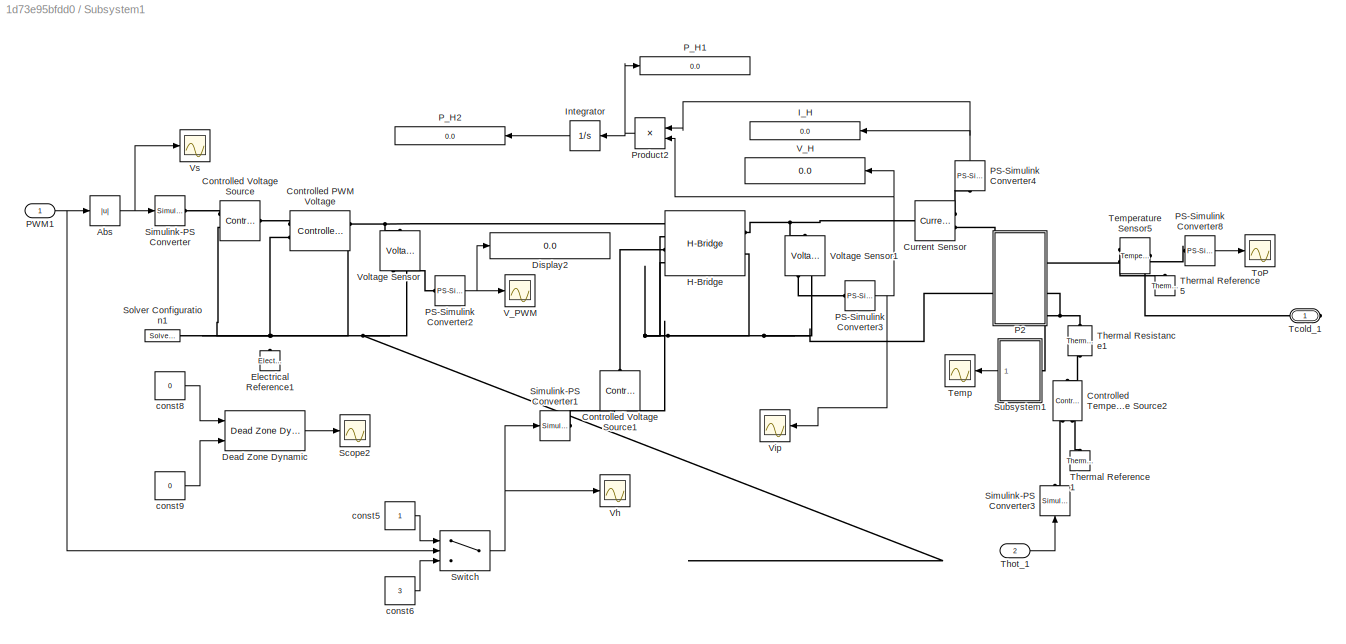
BLOCK [SubSystem] Subsystem1
  Ports = [2, 0, 0, 0, 0, 0, 1]
BLOCK [Abs] Subsystem1/Abs
  SaturateOnIntegerOverflow = off
BLOCK [Reference] Subsystem1/Controlled PWM Voltage  REF=ee_lib/Integrated Circuits/Controlled PWM
Voltage
  Ports = [0, 0, 0, 0, 0, 2, 2]
  SourceBlock = ee_lib/Integrated Circuits/Controlled PWM\nVoltage
  SourceType = Controlled PWM\nVoltage
BLOCK [Reference] Subsystem1/Controlled Temperature Source2  REF=fl_lib/Thermal/Thermal Sources/Controlled
Temperature Source
  Ports = [0, 0, 0, 0, 0, 1, 2]
  SourceBlock = fl_lib/Thermal/Thermal Sources/Controlled\nTemperature Source
  SourceType = Controlled\nTemperature Source
BLOCK [Reference] Subsystem1/Controlled Voltage Source  REF=fl_lib/Electrical/Electrical Sources/Controlled Voltage
Source
  Ports = [0, 0, 0, 0, 0, 1, 2]
  SourceBlock = fl_lib/Electrical/Electrical Sources/Controlled Voltage\nSource
  SourceType = Controlled Voltage\nSource
BLOCK [Reference] Subsystem1/Controlled Voltage Source1  REF=fl_lib/Electrical/Electrical Sources/Controlled Voltage
Source
  Ports = [0, 0, 0, 0, 0, 1, 2]
  SourceBlock = fl_lib/Electrical/Electrical Sources/Controlled Voltage\nSource
  SourceType = Controlled Voltage\nSource
BLOCK [Reference] Subsystem1/Current Sensor  REF=fl_lib/Electrical/Electrical Sensors/Current Sensor
  Ports = [0, 0, 0, 0, 0, 1, 2]
  SourceBlock = fl_lib/Electrical/Electrical Sensors/Current Sensor
  SourceType = Current Sensor
BLOCK [Reference] Subsystem1/Dead Zone Dynamic  REF=simulink/Discontinuities/Dead Zone
Dynamic
  Commented = on
  Ports = [3, 1]
  SourceBlock = simulink/Discontinuities/Dead Zone\nDynamic
  SourceType = Dead Zone Dynamic
BLOCK [Display] Subsystem1/Display2
  Decimation = 1
  Ports = [1]
BLOCK [Reference] Subsystem1/Electrical Reference1  REF=fl_lib/Electrical/Electrical Elements/Electrical Reference
  Ports = [0, 0, 0, 0, 0, 1]
  SourceBlock = fl_lib/Electrical/Electrical Elements/Electrical Reference
  SourceType = Electrical Reference
BLOCK [Reference] Subsystem1/H-Bridge  REF=ee_lib/Semiconductors &
Converters/Converters/H-Bridge
  Ports = [0, 0, 0, 0, 0, 4, 2]
  SourceBlock = ee_lib/Semiconductors &\nConverters/Converters/H-Bridge
  SourceType = H-Bridge
BLOCK [Display] Subsystem1/I_H
  Decimation = 1
  Ports = [1]
BLOCK [Integrator] Subsystem1/Integrator
  Ports = [1, 1]
BLOCK [SubSystem] Subsystem1/P2
  Ports = [0, 0, 0, 0, 0, 2, 2]
BLOCK [SubSystem] Subsystem1/P2/0.5 x I^2 x ReC
  Ports = [1, 1]
BLOCK [Constant] Subsystem1/P2/0.5 x I^2 x ReC/Constant1
  Value = 0.5*ReC
BLOCK [Inport] Subsystem1/P2/0.5 x I^2 x ReC/In1
BLOCK [Outport] Subsystem1/P2/0.5 x I^2 x ReC/Out1
  VectorParamsAs1DForOutWhenUnconnected = off
BLOCK [Product] Subsystem1/P2/0.5 x I^2 x ReC/Product1
  Inputs = 3
  Ports = [3, 1]
BLOCK [Sum] Subsystem1/P2/Add
  IconShape = rectangular
  Ports = [2, 1]
BLOCK [Product] Subsystem1/P2/Alpha x I x Tc
  Ports = [2, 1]
BLOCK [SubSystem] Subsystem1/P2/Alpha x I x Th
  Ports = [2, 2]
BLOCK [Constant] Subsystem1/P2/Alpha x I x Th/Constant
  Value = am
BLOCK [Inport] Subsystem1/P2/Alpha x I x Th/I
  Port = 2
BLOCK [Outport] Subsystem1/P2/Alpha x I x Th/Out1
  VectorParamsAs1DForOutWhenUnconnected = off
BLOCK [Outport] Subsystem1/P2/Alpha x I x Th/Out2
  Port = 2
  VectorParamsAs1DForOutWhenUnconnected = off
BLOCK [Product] Subsystem1/P2/Alpha x I x Th/Product
  Ports = [2, 1]
BLOCK [Product] Subsystem1/P2/Alpha x I x Th/Product2
  Ports = [2, 1]
BLOCK [Inport] Subsystem1/P2/Alpha x I x Th/T
BLOCK [Constant] Subsystem1/P2/Constant
  Value = 0
BLOCK [Reference] Subsystem1/P2/Controlled Voltage Source  REF=fl_lib/Electrical/Electrical Sources/Controlled Voltage
Source
  Ports = [0, 0, 0, 0, 0, 1, 2]
  SourceBlock = fl_lib/Electrical/Electrical Sources/Controlled Voltage\nSource
  SourceType = Controlled Voltage\nSource
BLOCK [Reference] Subsystem1/P2/Current Sensor  REF=fl_lib/Electrical/Electrical Sensors/Current Sensor
  Ports = [0, 0, 0, 0, 0, 1, 2]
  SourceBlock = fl_lib/Electrical/Electrical Sensors/Current Sensor
  SourceType = Current Sensor
BLOCK [Reference] Subsystem1/P2/Electrical Reference1  REF=fl_lib/Electrical/Electrical Elements/Electrical Reference
  Ports = [0, 0, 0, 0, 0, 1]
  SourceBlock = fl_lib/Electrical/Electrical Elements/Electrical Reference
  SourceType = Electrical Reference
BLOCK [Gain] Subsystem1/P2/Gain
  Gain = am
BLOCK [Gain] Subsystem1/P2/Gain1
BLOCK [Gain] Subsystem1/P2/Gain2
  Gain = am
BLOCK [Reference] Subsystem1/P2/Mc1  REF=fl_lib/Thermal/Thermal Elements/Thermal Mass
  Ports = [0, 0, 0, 0, 0, 1]
  SourceBlock = fl_lib/Thermal/Thermal Elements/Thermal Mass
  SourceType = Thermal Mass
BLOCK [Reference] Subsystem1/P2/Mh  REF=fl_lib/Thermal/Thermal Elements/Thermal Mass
  Ports = [0, 0, 0, 0, 0, 1]
  SourceBlock = fl_lib/Thermal/Thermal Elements/Thermal Mass
  SourceType = Thermal Mass
BLOCK [Reference] Subsystem1/P2/PS-Simulink Converter2  REF=nesl_utility/PS-Simulink
Converter
  Ports = [0, 1, 0, 0, 0, 1]
  SourceBlock = nesl_utility/PS-Simulink\nConverter
  SourceType = PS-Simulink\nConverter
BLOCK [SubSystem] Subsystem1/P2/Qc - Qj 
  Ports = [2, 0, 0, 0, 0, 0, 1]
BLOCK [Sum] Subsystem1/P2/Qc - Qj /Add1
  IconShape = rectangular
  Inputs = +-
  Ports = [2, 1]
BLOCK [PMIOPort] Subsystem1/P2/Qc - Qj /Conn1
  Side = Right
BLOCK [Inport] Subsystem1/P2/Qc - Qj /In1
BLOCK [Inport] Subsystem1/P2/Qc - Qj /In2
  Port = 2
BLOCK [Scope] Subsystem1/P2/Qc - Qj /Scope5
  Floating = off
  NumInputPorts = 1
  Ports = [1]
  ScopeSpecificationString = Simulink.scopes.TimeScopeBlockCfg('CurrentConfiguration', extmgr.ConfigurationSet(extmgr.Configuration('Core','General UI',true),extmgr.Configuration('Core','Source UI',true),extmgr.Configuration('Sources','WiredSimulink',true,'DataLoggingVariableName','ScopeData5'),extmgr.Configuration('Visuals','Time Domain',true,'SerializedDisplays',{struct('MinYLimReal','20.65686','MaxYLimReal','25.50799','YLa...<+1369ch>
BLOCK [Reference] Subsystem1/P2/Qc - Qj /Simulink-PS Converter1  REF=nesl_utility/Simulink-PS
Converter
  Ports = [1, 0, 0, 0, 0, 0, 1]
  SourceBlock = nesl_utility/Simulink-PS\nConverter
  SourceType = Simulink-PS\nConverter
BLOCK [Reference] Subsystem1/P2/Qc - Qj1   REF=fl_lib/Thermal/Thermal Sources/Controlled Heat Flow
Rate Source
  Ports = [0, 0, 0, 0, 0, 1, 2]
  SourceBlock = fl_lib/Thermal/Thermal Sources/Controlled Heat Flow\nRate Source
  SourceType = Controlled Heat Flow\nRate Source
BLOCK [Reference] Subsystem1/P2/Qh  + Qj  REF=fl_lib/Thermal/Thermal Sources/Controlled Heat Flow
Rate Source
  Ports = [0, 0, 0, 0, 0, 1, 2]
  SourceBlock = fl_lib/Thermal/Thermal Sources/Controlled Heat Flow\nRate Source
  SourceType = Controlled Heat Flow\nRate Source
BLOCK [SubSystem] Subsystem1/P2/Qh + Qj 
  Ports = [2, 0, 0, 0, 0, 0, 1]
BLOCK [Sum] Subsystem1/P2/Qh + Qj /Add
  IconShape = rectangular
  Ports = [2, 1]
BLOCK [PMIOPort] Subsystem1/P2/Qh + Qj /Conn1
  Side = Right
BLOCK [Inport] Subsystem1/P2/Qh + Qj /In1
BLOCK [Inport] Subsystem1/P2/Qh + Qj /In2
  Port = 2
BLOCK [Scope] Subsystem1/P2/Qh + Qj /Scope4
  Floating = off
  NumInputPorts = 1
  Ports = [1]
  ScopeSpecificationString = Simulink.scopes.TimeScopeBlockCfg('CurrentConfiguration', extmgr.ConfigurationSet(extmgr.Configuration('Core','General UI',true),extmgr.Configuration('Core','Source UI',true),extmgr.Configuration('Sources','WiredSimulink',true,'DataLoggingVariableName','ScopeData4'),extmgr.Configuration('Visuals','Time Domain',true,'SerializedDisplays',{struct('MinYLimReal','3.54847','MaxYLimReal','31.6702','YLabe...<+1360ch>
BLOCK [Reference] Subsystem1/P2/Qh + Qj /Simulink-PS Converter2  REF=nesl_utility/Simulink-PS
Converter
  Ports = [1, 0, 0, 0, 0, 0, 1]
  SourceBlock = nesl_utility/Simulink-PS\nConverter
  SourceType = Simulink-PS\nConverter
BLOCK [Reference] Subsystem1/P2/ReC  REF=fl_lib/Electrical/Electrical Elements/Resistor
  Ports = [0, 0, 0, 0, 0, 1, 1]
  SourceBlock = fl_lib/Electrical/Electrical Elements/Resistor
  SourceType = Resistor
BLOCK [Reference] Subsystem1/P2/Rth  REF=fl_lib/Thermal/Thermal Elements/Thermal Resistance
  Ports = [0, 0, 0, 0, 0, 1, 1]
  SourceBlock = fl_lib/Thermal/Thermal Elements/Thermal Resistance
  SourceType = Thermal Resistance
BLOCK [Saturate] Subsystem1/P2/Saturation
  LowerLimit = -inf
  UpperLimit = inf
BLOCK [Scope] Subsystem1/P2/Scope
  Floating = off
  NumInputPorts = 1
  Ports = [1]
  ScopeSpecificationString = Simulink.scopes.TimeScopeBlockCfg('CurrentConfiguration', extmgr.ConfigurationSet(extmgr.Configuration('Core','General UI',true),extmgr.Configuration('Core','Source UI',true),extmgr.Configuration('Sources','WiredSimulink',true),extmgr.Configuration('Visuals','Time Domain',true,'SerializedDisplays',{struct('MinYLimReal','3.46444','MaxYLimReal','3.79343','YLabelReal','','MinYLimMag','3.46444','MaxYL...<+1340ch>
BLOCK [Scope] Subsystem1/P2/Scope2
  Floating = off
  NumInputPorts = 1
  Ports = [1]
  ScopeSpecificationString = Simulink.scopes.TimeScopeBlockCfg('CurrentConfiguration', extmgr.ConfigurationSet(extmgr.Configuration('Core','General UI',true),extmgr.Configuration('Core','Source UI',true),extmgr.Configuration('Sources','WiredSimulink',true,'DataLoggingVariableName','ScopeData1'),extmgr.Configuration('Visuals','Time Domain',true,'SerializedDisplays',{struct('MinYLimReal','293.34906','MaxYLimReal','339.85848','Y...<+1409ch>
BLOCK [Reference] Subsystem1/P2/Simulink-PS Converter  REF=nesl_utility/Simulink-PS
Converter
  Ports = [1, 0, 0, 0, 0, 0, 1]
  SourceBlock = nesl_utility/Simulink-PS\nConverter
  SourceType = Simulink-PS\nConverter
BLOCK [SubSystem] Subsystem1/P2/Subsystem
  Ports = [0, 3, 0, 0, 0, 2]
BLOCK [Reference] Subsystem1/P2/Subsystem/PS-Simulink Converter  REF=nesl_utility/PS-Simulink
Converter
  Ports = [0, 1, 0, 0, 0, 1]
  SourceBlock = nesl_utility/PS-Simulink\nConverter
  SourceType = PS-Simulink\nConverter
BLOCK [Reference] Subsystem1/P2/Subsystem/PS-Simulink Converter1  REF=nesl_utility/PS-Simulink
Converter
  Ports = [0, 1, 0, 0, 0, 1]
  SourceBlock = nesl_utility/PS-Simulink\nConverter
  SourceType = PS-Simulink\nConverter
BLOCK [Sum] Subsystem1/P2/Subsystem/Subtract1
  IconShape = rectangular
  Inputs = -+
  Ports = [2, 1]
BLOCK [Outport] Subsystem1/P2/Subsystem/Tc
  VectorParamsAs1DForOutWhenUnconnected = off
BLOCK [PMIOPort] Subsystem1/P2/Subsystem/Tcold
  Side = Left
BLOCK [Reference] Subsystem1/P2/Subsystem/Temperature Sensor  REF=fl_lib/Thermal/Thermal Sensors/Temperature Sensor
  Ports = [0, 0, 0, 0, 0, 1, 2]
  SourceBlock = fl_lib/Thermal/Thermal Sensors/Temperature Sensor
  SourceType = Temperature Sensor
BLOCK [Reference] Subsystem1/P2/Subsystem/Temperature Sensor1  REF=fl_lib/Thermal/Thermal Sensors/Temperature Sensor
  Ports = [0, 0, 0, 0, 0, 1, 2]
  SourceBlock = fl_lib/Thermal/Thermal Sensors/Temperature Sensor
  SourceType = Temperature Sensor
BLOCK [Outport] Subsystem1/P2/Subsystem/Th
  Port = 2
  VectorParamsAs1DForOutWhenUnconnected = off
BLOCK [Reference] Subsystem1/P2/Subsystem/Thermal Reference1  REF=fl_lib/Thermal/Thermal Elements/Thermal Reference
  Ports = [0, 0, 0, 0, 0, 1]
  SourceBlock = fl_lib/Thermal/Thermal Elements/Thermal Reference
  SourceType = Thermal Reference
BLOCK [Reference] Subsystem1/P2/Subsystem/Thermal Reference4  REF=fl_lib/Thermal/Thermal Elements/Thermal Reference
  Ports = [0, 0, 0, 0, 0, 1]
  SourceBlock = fl_lib/Thermal/Thermal Elements/Thermal Reference
  SourceType = Thermal Reference
BLOCK [PMIOPort] Subsystem1/P2/Subsystem/Thot
  Port = 2
  Side = Left
BLOCK [Outport] Subsystem1/P2/Subsystem/dT
  Port = 3
  VectorParamsAs1DForOutWhenUnconnected = off
BLOCK [PMIOPort] Subsystem1/P2/TC
  Side = Right
BLOCK [PMIOPort] Subsystem1/P2/TH
  Port = 4
  Side = Right
BLOCK [Scope] Subsystem1/P2/Tc
  Floating = off
  NumInputPorts = 1
  Ports = [1]
  ScopeSpecificationString = Simulink.scopes.TimeScopeBlockCfg('CurrentConfiguration', extmgr.ConfigurationSet(extmgr.Configuration('Core','General UI',true),extmgr.Configuration('Core','Source UI',true),extmgr.Configuration('Sources','WiredSimulink',true,'DataLoggingVariableName','ScopeData1'),extmgr.Configuration('Visuals','Time Domain',true,'SerializedDisplays',{struct('MinYLimReal','279.9714','MaxYLimReal','300.00318','YL...<+1466ch>
BLOCK [Reference] Subsystem1/P2/Thermal Reference1  REF=fl_lib/Thermal/Thermal Elements/Thermal Reference
  Ports = [0, 0, 0, 0, 0, 1]
  SourceBlock = fl_lib/Thermal/Thermal Elements/Thermal Reference
  SourceType = Thermal Reference
BLOCK [Reference] Subsystem1/P2/Thermal Reference2  REF=fl_lib/Thermal/Thermal Elements/Thermal Reference
  Ports = [0, 0, 0, 0, 0, 1]
  SourceBlock = fl_lib/Thermal/Thermal Elements/Thermal Reference
  SourceType = Thermal Reference
BLOCK [PMIOPort] Subsystem1/P2/V+
  Port = 2
  Side = Left
BLOCK [PMIOPort] Subsystem1/P2/V-
  Port = 3
  Side = Left
BLOCK [Scope] Subsystem1/P2/dT1
  Floating = off
  NumInputPorts = 1
  Ports = [1]
  ScopeSpecificationString = Simulink.scopes.TimeScopeBlockCfg('CurrentConfiguration', extmgr.ConfigurationSet(extmgr.Configuration('Core','General UI',true),extmgr.Configuration('Core','Source UI',true),extmgr.Configuration('Sources','WiredSimulink',true,'DataLoggingVariableName','ScopeData3'),extmgr.Configuration('Visuals','Time Domain',true,'SerializedDisplays',{struct('MinYLimReal','-7.26541','MaxYLimReal','65.38865','YLa...<+1486ch>
BLOCK [Reference] Subsystem1/PS-Simulink Converter2  REF=nesl_utility/PS-Simulink
Converter
  Ports = [0, 1, 0, 0, 0, 1]
  SourceBlock = nesl_utility/PS-Simulink\nConverter
  SourceType = PS-Simulink\nConverter
BLOCK [Reference] Subsystem1/PS-Simulink Converter3  REF=nesl_utility/PS-Simulink
Converter
  Ports = [0, 1, 0, 0, 0, 1]
  SourceBlock = nesl_utility/PS-Simulink\nConverter
  SourceType = PS-Simulink\nConverter
BLOCK [Reference] Subsystem1/PS-Simulink Converter4  REF=nesl_utility/PS-Simulink
Converter
  Ports = [0, 1, 0, 0, 0, 1]
  SourceBlock = nesl_utility/PS-Simulink\nConverter
  SourceType = PS-Simulink\nConverter
BLOCK [Reference] Subsystem1/PS-Simulink Converter8  REF=nesl_utility/PS-Simulink
Converter
  Commented = on
  Ports = [0, 1, 0, 0, 0, 1]
  SourceBlock = nesl_utility/PS-Simulink\nConverter
  SourceType = PS-Simulink\nConverter
BLOCK [Inport] Subsystem1/PWM1
BLOCK [Display] Subsystem1/P_H1
  Decimation = 1
  Ports = [1]
BLOCK [Display] Subsystem1/P_H2
  Decimation = 1
  Ports = [1]
BLOCK [Product] Subsystem1/Product2
  Ports = [2, 1]
  RndMeth = Zero
BLOCK [Scope] Subsystem1/Scope2
  Commented = on
  Floating = off
  NumInputPorts = 1
  Ports = [1]
  ScopeSpecificationString = Simulink.scopes.TimeScopeBlockCfg('CurrentConfiguration', extmgr.ConfigurationSet(extmgr.Configuration('Core','General UI',true),extmgr.Configuration('Core','Source UI',true),extmgr.Configuration('Sources','WiredSimulink',true,'DataLoggingVariableName','ScopeData1'),extmgr.Configuration('Visuals','Time Domain',true,'SerializedDisplays',{struct('MinYLimReal','-1.00000','MaxYLimReal','1.00000','YLab...<+1376ch>
BLOCK [Reference] Subsystem1/Simulink-PS Converter  REF=nesl_utility/Simulink-PS
Converter
  Ports = [1, 0, 0, 0, 0, 0, 1]
  SourceBlock = nesl_utility/Simulink-PS\nConverter
  SourceType = Simulink-PS\nConverter
BLOCK [Reference] Subsystem1/Simulink-PS Converter1  REF=nesl_utility/Simulink-PS
Converter
  Ports = [1, 0, 0, 0, 0, 0, 1]
  SourceBlock = nesl_utility/Simulink-PS\nConverter
  SourceType = Simulink-PS\nConverter
BLOCK [Reference] Subsystem1/Simulink-PS Converter3  REF=nesl_utility/Simulink-PS
Converter
  Ports = [1, 0, 0, 0, 0, 0, 1]
  SourceBlock = nesl_utility/Simulink-PS\nConverter
  SourceType = Simulink-PS\nConverter
BLOCK [Reference] Subsystem1/Solver Configuration1  REF=nesl_utility/Solver
Configuration
  Ports = [0, 0, 0, 0, 0, 0, 1]
  SourceBlock = nesl_utility/Solver\nConfiguration
  SourceType = Solver\nConfiguration
BLOCK [SubSystem] Subsystem1/Subsystem1
  Ports = [0, 1, 0, 0, 0, 1]
BLOCK [PMIOPort] Subsystem1/Subsystem1/Conn1
  Side = Left
BLOCK [Outport] Subsystem1/Subsystem1/Out1
  VectorParamsAs1DForOutWhenUnconnected = off
BLOCK [Reference] Subsystem1/Subsystem1/PS-Simulink Converter7  REF=nesl_utility/PS-Simulink
Converter
  Ports = [0, 1, 0, 0, 0, 1]
  SourceBlock = nesl_utility/PS-Simulink\nConverter
  SourceType = PS-Simulink\nConverter
BLOCK [Reference] Subsystem1/Subsystem1/Temperature Sensor1  REF=fl_lib/Thermal/Thermal Sensors/Temperature Sensor
  Ports = [0, 0, 0, 0, 0, 1, 2]
  SourceBlock = fl_lib/Thermal/Thermal Sensors/Temperature Sensor
  SourceType = Temperature Sensor
BLOCK [Reference] Subsystem1/Subsystem1/Thermal Reference2  REF=fl_lib/Thermal/Thermal Elements/Thermal Reference
  Ports = [0, 0, 0, 0, 0, 1]
  SourceBlock = fl_lib/Thermal/Thermal Elements/Thermal Reference
  SourceType = Thermal Reference
BLOCK [Switch] Subsystem1/Switch
  InputSameDT = off
  SaturateOnIntegerOverflow = off
BLOCK [PMIOPort] Subsystem1/Tcold_1
  Side = Right
BLOCK [Scope] Subsystem1/Temp
  Floating = off
  NumInputPorts = 1
  Ports = [1]
  ScopeSpecificationString = Simulink.scopes.TimeScopeBlockCfg('CurrentConfiguration', extmgr.ConfigurationSet(extmgr.Configuration('Core','General UI',true),extmgr.Configuration('Core','Source UI',true),extmgr.Configuration('Sources','WiredSimulink',true,'DataLoggingVariableName','ScopeData1'),extmgr.Configuration('Visuals','Time Domain',true,'SerializedDisplays',{struct('MinYLimReal','295.71266','MaxYLimReal','309.50142','Y...<+1402ch>
BLOCK [Reference] Subsystem1/Temperature Sensor5  REF=fl_lib/Thermal/Thermal Sensors/Temperature Sensor
  Commented = on
  Ports = [0, 0, 0, 0, 0, 1, 2]
  SourceBlock = fl_lib/Thermal/Thermal Sensors/Temperature Sensor
  SourceType = Temperature Sensor
BLOCK [Reference] Subsystem1/Thermal Reference1  REF=fl_lib/Thermal/Thermal Elements/Thermal Reference
  Ports = [0, 0, 0, 0, 0, 1]
  SourceBlock = fl_lib/Thermal/Thermal Elements/Thermal Reference
  SourceType = Thermal Reference
BLOCK [Reference] Subsystem1/Thermal Reference5  REF=fl_lib/Thermal/Thermal Elements/Thermal Reference
  Commented = on
  Ports = [0, 0, 0, 0, 0, 1]
  SourceBlock = fl_lib/Thermal/Thermal Elements/Thermal Reference
  SourceType = Thermal Reference
BLOCK [Reference] Subsystem1/Thermal Resistance1  REF=fl_lib/Thermal/Thermal Elements/Thermal Resistance
  Ports = [0, 0, 0, 0, 0, 1, 1]
  SourceBlock = fl_lib/Thermal/Thermal Elements/Thermal Resistance
  SourceType = Thermal Resistance
BLOCK [Inport] Subsystem1/Thot_1
  Port = 2
BLOCK [Scope] Subsystem1/ToP
  Commented = on
  Floating = off
  NumInputPorts = 1
  Ports = [1]
  ScopeSpecificationString = Simulink.scopes.TimeScopeBlockCfg('CurrentConfiguration', extmgr.ConfigurationSet(extmgr.Configuration('Core','General UI',true),extmgr.Configuration('Core','Source UI',true),extmgr.Configuration('Sources','WiredSimulink',true,'DataLoggingVariableName','Top','DataLogging',true,'DataLoggingLimitDataPoints',true,'DataLoggingMaxPoints','50000','DataLoggingSaveFormat','Array','SampleTime','1'),extmgr....<+1605ch>
BLOCK [Display] Subsystem1/V_H
  Decimation = 1
  Ports = [1]
BLOCK [Scope] Subsystem1/V_PWM
  Floating = off
  NumInputPorts = 1
  Ports = [1]
  ScopeSpecificationString = Simulink.scopes.TimeScopeBlockCfg('CurrentConfiguration', extmgr.ConfigurationSet(extmgr.Configuration('Core','General UI',true),extmgr.Configuration('Core','Source UI',true),extmgr.Configuration('Sources','WiredSimulink',true,'DataLoggingVariableName','ScopeData1'),extmgr.Configuration('Visuals','Time Domain',true,'SerializedDisplays',{struct('MinYLimReal','-0.625','MaxYLimReal','5.625','YLabelRe...<+1388ch>
BLOCK [Scope] Subsystem1/Vh
  Floating = off
  NumInputPorts = 1
  Ports = [1]
  ScopeSpecificationString = Simulink.scopes.TimeScopeBlockCfg('CurrentConfiguration', extmgr.ConfigurationSet(extmgr.Configuration('Core','General UI',true),extmgr.Configuration('Core','Source UI',true),extmgr.Configuration('Sources','WiredSimulink',true,'DataLoggingVariableName','Vph','DataLogging',true,'DataLoggingLimitDataPoints',true,'DataLoggingMaxPoints','50000','DataLoggingSaveFormat','Array','SampleTime','1'),extmgr....<+1549ch>
BLOCK [Scope] Subsystem1/Vip
  Floating = off
  NumInputPorts = 1
  Ports = [1]
  ScopeSpecificationString = Simulink.scopes.TimeScopeBlockCfg('CurrentConfiguration', extmgr.ConfigurationSet(extmgr.Configuration('Core','General UI',true),extmgr.Configuration('Core','Source UI',true),extmgr.Configuration('Sources','WiredSimulink',true,'DataLoggingVariableName','Vip','DataLogging',true,'DataLoggingLimitDataPoints',true,'DataLoggingMaxPoints','50000','DataLoggingSaveFormat','Array','SampleTime','1'),extmgr....<+1591ch>
BLOCK [Reference] Subsystem1/Voltage Sensor  REF=fl_lib/Electrical/Electrical Sensors/Voltage Sensor
  Ports = [0, 0, 0, 0, 0, 1, 2]
  SourceBlock = fl_lib/Electrical/Electrical Sensors/Voltage Sensor
  SourceType = Voltage Sensor
BLOCK [Reference] Subsystem1/Voltage Sensor1  REF=fl_lib/Electrical/Electrical Sensors/Voltage Sensor
  Ports = [0, 0, 0, 0, 0, 1, 2]
  SourceBlock = fl_lib/Electrical/Electrical Sensors/Voltage Sensor
  SourceType = Voltage Sensor
BLOCK [Scope] Subsystem1/Vs
  Floating = off
  NumInputPorts = 1
  Ports = [1]
  ScopeSpecificationString = Simulink.scopes.TimeScopeBlockCfg('CurrentConfiguration', extmgr.ConfigurationSet(extmgr.Configuration('Core','General UI',true),extmgr.Configuration('Core','Source UI',true),extmgr.Configuration('Sources','WiredSimulink',true,'DataLoggingVariableName','Vis','DataLogging',true,'DataLoggingLimitDataPoints',true,'DataLoggingMaxPoints','50000','DataLoggingSaveFormat','Array','SampleTime','1'),extmgr....<+1576ch>
BLOCK [Constant] Subsystem1/const5
BLOCK [Constant] Subsystem1/const6
  Value = 3
BLOCK [Constant] Subsystem1/const8
  Commented = on
  Value = 0
BLOCK [Constant] Subsystem1/const9
  Commented = on
  Value = 0
BLOCK [SubSystem] Subsystem10
  Ports = [0, 1, 0, 0, 0, 1]
BLOCK [PMIOPort] Subsystem10/Conn1
  Side = Left
BLOCK [Outport] Subsystem10/Out1
  VectorParamsAs1DForOutWhenUnconnected = off
BLOCK [Reference] Subsystem10/PS-Simulink Converter1  REF=nesl_utility/PS-Simulink
Converter
  Ports = [0, 1, 0, 0, 0, 1]
  SourceBlock = nesl_utility/PS-Simulink\nConverter
  SourceType = PS-Simulink\nConverter
BLOCK [Reference] Subsystem10/Temperature Sensor2  REF=fl_lib/Thermal/Thermal Sensors/Temperature Sensor
  Ports = [0, 0, 0, 0, 0, 1, 2]
  SourceBlock = fl_lib/Thermal/Thermal Sensors/Temperature Sensor
  SourceType = Temperature Sensor
BLOCK [Reference] Subsystem10/Thermal Reference4  REF=fl_lib/Thermal/Thermal Elements/Thermal Reference
  Ports = [0, 0, 0, 0, 0, 1]
  SourceBlock = fl_lib/Thermal/Thermal Elements/Thermal Reference
  SourceType = Thermal Reference
BLOCK [SubSystem] Subsystem2
  Commented = on
  Ports = [0, 2, 0, 0, 0, 2]
BLOCK [Outport] Subsystem2/O1
  VectorParamsAs1DForOutWhenUnconnected = off
BLOCK [Outport] Subsystem2/O2
  Port = 2
  VectorParamsAs1DForOutWhenUnconnected = off
BLOCK [Reference] Subsystem2/PS-Simulink Converter1  REF=nesl_utility/PS-Simulink
Converter
  Ports = [0, 1, 0, 0, 0, 1]
  SourceBlock = nesl_utility/PS-Simulink\nConverter
  SourceType = PS-Simulink\nConverter
BLOCK [Reference] Subsystem2/PS-Simulink Converter5  REF=nesl_utility/PS-Simulink
Converter
  Ports = [0, 1, 0, 0, 0, 1]
  SourceBlock = nesl_utility/PS-Simulink\nConverter
  SourceType = PS-Simulink\nConverter
BLOCK [PMIOPort] Subsystem2/TemAir2
  Port = 2
  Side = Left
BLOCK [PMIOPort] Subsystem2/TemAis1
  Side = Left
BLOCK [Reference] Subsystem2/Temperature Sensor1  REF=fl_lib/Thermal/Thermal Sensors/Temperature Sensor
  Ports = [0, 0, 0, 0, 0, 1, 2]
  SourceBlock = fl_lib/Thermal/Thermal Sensors/Temperature Sensor
  SourceType = Temperature Sensor
BLOCK [Reference] Subsystem2/Temperature Sensor5  REF=fl_lib/Thermal/Thermal Sensors/Temperature Sensor
  Ports = [0, 0, 0, 0, 0, 1, 2]
  SourceBlock = fl_lib/Thermal/Thermal Sensors/Temperature Sensor
  SourceType = Temperature Sensor
BLOCK [Reference] Subsystem2/Thermal Reference1  REF=fl_lib/Thermal/Thermal Elements/Thermal Reference
  Ports = [0, 0, 0, 0, 0, 1]
  SourceBlock = fl_lib/Thermal/Thermal Elements/Thermal Reference
  SourceType = Thermal Reference
BLOCK [Reference] Subsystem2/Thermal Reference5  REF=fl_lib/Thermal/Thermal Elements/Thermal Reference
  Ports = [0, 0, 0, 0, 0, 1]
  SourceBlock = fl_lib/Thermal/Thermal Elements/Thermal Reference
  SourceType = Thermal Reference
BLOCK [ToWorkspace] Subsystem2/To Workspace1
  FixptAsFi = on
  MaxDataPoints = inf
  Ports = [1]
  SampleTime = -1
  VariableName = Tair
BLOCK [ToWorkspace] Subsystem2/To Workspace5
  FixptAsFi = on
  MaxDataPoints = inf
  Ports = [1]
  SampleTime = -1
  VariableName = Tais
BLOCK [SubSystem] Subsystem3
  Ports = [0, 3, 0, 0, 0, 24]
BLOCK [PMIOPort] Subsystem3/Conn1
  Side = Left
BLOCK [PMIOPort] Subsystem3/Conn10
  Port = 10
  Side = Left
BLOCK [PMIOPort] Subsystem3/Conn11
  Port = 11
  Side = Left
BLOCK [PMIOPort] Subsystem3/Conn12
  Port = 12
  Side = Left
BLOCK [PMIOPort] Subsystem3/Conn13
  Port = 13
  Side = Left
BLOCK [PMIOPort] Subsystem3/Conn14
  Port = 14
  Side = Left
BLOCK [PMIOPort] Subsystem3/Conn15
  Port = 15
  Side = Left
BLOCK [PMIOPort] Subsystem3/Conn16
  Port = 16
  Side = Left
BLOCK [PMIOPort] Subsystem3/Conn17
  Port = 17
  Side = Left
BLOCK [PMIOPort] Subsystem3/Conn18
  Port = 18
  Side = Left
BLOCK [PMIOPort] Subsystem3/Conn19
  Port = 19
  Side = Left
BLOCK [PMIOPort] Subsystem3/Conn2
  Port = 2
  Side = Left
BLOCK [PMIOPort] Subsystem3/Conn20
  Port = 20
  Side = Left
BLOCK [PMIOPort] Subsystem3/Conn21
  Port = 21
  Side = Left
BLOCK [PMIOPort] Subsystem3/Conn22
  Port = 22
  Side = Left
BLOCK [PMIOPort] Subsystem3/Conn23
  Port = 23
  Side = Left
BLOCK [PMIOPort] Subsystem3/Conn24
  Port = 24
  Side = Left
BLOCK [PMIOPort] Subsystem3/Conn3
  Port = 3
  Side = Left
BLOCK [PMIOPort] Subsystem3/Conn4
  Port = 4
  Side = Left
BLOCK [PMIOPort] Subsystem3/Conn5
  Port = 5
  Side = Left
BLOCK [PMIOPort] Subsystem3/Conn6
  Port = 6
  Side = Left
BLOCK [PMIOPort] Subsystem3/Conn7
  Port = 7
  Side = Left
BLOCK [PMIOPort] Subsystem3/Conn8
  Port = 8
  Side = Left
BLOCK [PMIOPort] Subsystem3/Conn9
  Port = 9
  Side = Left
BLOCK [Outport] Subsystem3/Out1
  VectorParamsAs1DForOutWhenUnconnected = off
BLOCK [Outport] Subsystem3/Out2
  Port = 2
  VectorParamsAs1DForOutWhenUnconnected = off
BLOCK [Outport] Subsystem3/Out3
  Port = 3
  VectorParamsAs1DForOutWhenUnconnected = off
BLOCK [SubSystem] Subsystem3/Sensor Tem1
  Ports = [0, 1, 0, 0, 0, 8]
BLOCK [PMIOPort] Subsystem3/Sensor Tem1/Conn1
  Side = Left
BLOCK [PMIOPort] Subsystem3/Sensor Tem1/Conn2
  Port = 2
  Side = Left
BLOCK [PMIOPort] Subsystem3/Sensor Tem1/Conn3
  Port = 3
  Side = Left
BLOCK [PMIOPort] Subsystem3/Sensor Tem1/Conn4
  Port = 4
  Side = Left
BLOCK [PMIOPort] Subsystem3/Sensor Tem1/Conn5
  Port = 5
  Side = Left
BLOCK [PMIOPort] Subsystem3/Sensor Tem1/Conn6
  Port = 6
  Side = Left
BLOCK [PMIOPort] Subsystem3/Sensor Tem1/Conn7
  Port = 7
  Side = Left
BLOCK [PMIOPort] Subsystem3/Sensor Tem1/Conn8
  Port = 8
  Side = Left
BLOCK [Mux] Subsystem3/Sensor Tem1/Mux
  DisplayOption = bar
  Inputs = 8
  Ports = [8, 1]
BLOCK [Outport] Subsystem3/Sensor Tem1/Out2
  VectorParamsAs1DForOutWhenUnconnected = off
BLOCK [Reference] Subsystem3/Sensor Tem1/PS-Simulink Converter1  REF=nesl_utility/PS-Simulink
Converter
  Ports = [0, 1, 0, 0, 0, 1]
  SourceBlock = nesl_utility/PS-Simulink\nConverter
  SourceType = PS-Simulink\nConverter
BLOCK [Reference] Subsystem3/Sensor Tem1/PS-Simulink Converter2  REF=nesl_utility/PS-Simulink
Converter
  Ports = [0, 1, 0, 0, 0, 1]
  SourceBlock = nesl_utility/PS-Simulink\nConverter
  SourceType = PS-Simulink\nConverter
BLOCK [Reference] Subsystem3/Sensor Tem1/PS-Simulink Converter3  REF=nesl_utility/PS-Simulink
Converter
  Ports = [0, 1, 0, 0, 0, 1]
  SourceBlock = nesl_utility/PS-Simulink\nConverter
  SourceType = PS-Simulink\nConverter
BLOCK [Reference] Subsystem3/Sensor Tem1/PS-Simulink Converter4  REF=nesl_utility/PS-Simulink
Converter
  Ports = [0, 1, 0, 0, 0, 1]
  SourceBlock = nesl_utility/PS-Simulink\nConverter
  SourceType = PS-Simulink\nConverter
BLOCK [Reference] Subsystem3/Sensor Tem1/PS-Simulink Converter5  REF=nesl_utility/PS-Simulink
Converter
  Ports = [0, 1, 0, 0, 0, 1]
  SourceBlock = nesl_utility/PS-Simulink\nConverter
  SourceType = PS-Simulink\nConverter
BLOCK [Reference] Subsystem3/Sensor Tem1/PS-Simulink Converter6  REF=nesl_utility/PS-Simulink
Converter
  Ports = [0, 1, 0, 0, 0, 1]
  SourceBlock = nesl_utility/PS-Simulink\nConverter
  SourceType = PS-Simulink\nConverter
BLOCK [Reference] Subsystem3/Sensor Tem1/PS-Simulink Converter7  REF=nesl_utility/PS-Simulink
Converter
  Ports = [0, 1, 0, 0, 0, 1]
  SourceBlock = nesl_utility/PS-Simulink\nConverter
  SourceType = PS-Simulink\nConverter
BLOCK [Reference] Subsystem3/Sensor Tem1/PS-Simulink Converter8  REF=nesl_utility/PS-Simulink
Converter
  Ports = [0, 1, 0, 0, 0, 1]
  SourceBlock = nesl_utility/PS-Simulink\nConverter
  SourceType = PS-Simulink\nConverter
BLOCK [Reference] Subsystem3/Sensor Tem1/Temperature Sensor1  REF=fl_lib/Thermal/Thermal Sensors/Temperature Sensor
  Ports = [0, 0, 0, 0, 0, 1, 2]
  SourceBlock = fl_lib/Thermal/Thermal Sensors/Temperature Sensor
  SourceType = Temperature Sensor
BLOCK [Reference] Subsystem3/Sensor Tem1/Temperature Sensor2  REF=fl_lib/Thermal/Thermal Sensors/Temperature Sensor
  Ports = [0, 0, 0, 0, 0, 1, 2]
  SourceBlock = fl_lib/Thermal/Thermal Sensors/Temperature Sensor
  SourceType = Temperature Sensor
BLOCK [Reference] Subsystem3/Sensor Tem1/Temperature Sensor3  REF=fl_lib/Thermal/Thermal Sensors/Temperature Sensor
  Ports = [0, 0, 0, 0, 0, 1, 2]
  SourceBlock = fl_lib/Thermal/Thermal Sensors/Temperature Sensor
  SourceType = Temperature Sensor
BLOCK [Reference] Subsystem3/Sensor Tem1/Temperature Sensor4  REF=fl_lib/Thermal/Thermal Sensors/Temperature Sensor
  Ports = [0, 0, 0, 0, 0, 1, 2]
  SourceBlock = fl_lib/Thermal/Thermal Sensors/Temperature Sensor
  SourceType = Temperature Sensor
BLOCK [Reference] Subsystem3/Sensor Tem1/Temperature Sensor5  REF=fl_lib/Thermal/Thermal Sensors/Temperature Sensor
  Ports = [0, 0, 0, 0, 0, 1, 2]
  SourceBlock = fl_lib/Thermal/Thermal Sensors/Temperature Sensor
  SourceType = Temperature Sensor
BLOCK [Reference] Subsystem3/Sensor Tem1/Temperature Sensor6  REF=fl_lib/Thermal/Thermal Sensors/Temperature Sensor
  Ports = [0, 0, 0, 0, 0, 1, 2]
  SourceBlock = fl_lib/Thermal/Thermal Sensors/Temperature Sensor
  SourceType = Temperature Sensor
BLOCK [Reference] Subsystem3/Sensor Tem1/Temperature Sensor7  REF=fl_lib/Thermal/Thermal Sensors/Temperature Sensor
  Ports = [0, 0, 0, 0, 0, 1, 2]
  SourceBlock = fl_lib/Thermal/Thermal Sensors/Temperature Sensor
  SourceType = Temperature Sensor
BLOCK [Reference] Subsystem3/Sensor Tem1/Temperature Sensor8  REF=fl_lib/Thermal/Thermal Sensors/Temperature Sensor
  Ports = [0, 0, 0, 0, 0, 1, 2]
  SourceBlock = fl_lib/Thermal/Thermal Sensors/Temperature Sensor
  SourceType = Temperature Sensor
BLOCK [Reference] Subsystem3/Sensor Tem1/Thermal Reference1  REF=fl_lib/Thermal/Thermal Elements/Thermal Reference
  Ports = [0, 0, 0, 0, 0, 1]
  SourceBlock = fl_lib/Thermal/Thermal Elements/Thermal Reference
  SourceType = Thermal Reference
BLOCK [Reference] Subsystem3/Sensor Tem1/Thermal Reference2  REF=fl_lib/Thermal/Thermal Elements/Thermal Reference
  Ports = [0, 0, 0, 0, 0, 1]
  SourceBlock = fl_lib/Thermal/Thermal Elements/Thermal Reference
  SourceType = Thermal Reference
BLOCK [Reference] Subsystem3/Sensor Tem1/Thermal Reference3  REF=fl_lib/Thermal/Thermal Elements/Thermal Reference
  Ports = [0, 0, 0, 0, 0, 1]
  SourceBlock = fl_lib/Thermal/Thermal Elements/Thermal Reference
  SourceType = Thermal Reference
BLOCK [Reference] Subsystem3/Sensor Tem1/Thermal Reference4  REF=fl_lib/Thermal/Thermal Elements/Thermal Reference
  Ports = [0, 0, 0, 0, 0, 1]
  SourceBlock = fl_lib/Thermal/Thermal Elements/Thermal Reference
  SourceType = Thermal Reference
BLOCK [Reference] Subsystem3/Sensor Tem1/Thermal Reference5  REF=fl_lib/Thermal/Thermal Elements/Thermal Reference
  Ports = [0, 0, 0, 0, 0, 1]
  SourceBlock = fl_lib/Thermal/Thermal Elements/Thermal Reference
  SourceType = Thermal Reference
BLOCK [Reference] Subsystem3/Sensor Tem1/Thermal Reference6  REF=fl_lib/Thermal/Thermal Elements/Thermal Reference
  Ports = [0, 0, 0, 0, 0, 1]
  SourceBlock = fl_lib/Thermal/Thermal Elements/Thermal Reference
  SourceType = Thermal Reference
BLOCK [Reference] Subsystem3/Sensor Tem1/Thermal Reference7  REF=fl_lib/Thermal/Thermal Elements/Thermal Reference
  Ports = [0, 0, 0, 0, 0, 1]
  SourceBlock = fl_lib/Thermal/Thermal Elements/Thermal Reference
  SourceType = Thermal Reference
BLOCK [Reference] Subsystem3/Sensor Tem1/Thermal Reference8  REF=fl_lib/Thermal/Thermal Elements/Thermal Reference
  Ports = [0, 0, 0, 0, 0, 1]
  SourceBlock = fl_lib/Thermal/Thermal Elements/Thermal Reference
  SourceType = Thermal Reference
BLOCK [SubSystem] Subsystem3/Sensor Tem2
  Ports = [0, 1, 0, 0, 0, 8]
BLOCK [PMIOPort] Subsystem3/Sensor Tem2/Conn1
  Side = Left
BLOCK [PMIOPort] Subsystem3/Sensor Tem2/Conn2
  Port = 2
  Side = Left
BLOCK [PMIOPort] Subsystem3/Sensor Tem2/Conn3
  Port = 3
  Side = Left
BLOCK [PMIOPort] Subsystem3/Sensor Tem2/Conn4
  Port = 4
  Side = Left
BLOCK [PMIOPort] Subsystem3/Sensor Tem2/Conn5
  Port = 5
  Side = Left
BLOCK [PMIOPort] Subsystem3/Sensor Tem2/Conn6
  Port = 6
  Side = Left
BLOCK [PMIOPort] Subsystem3/Sensor Tem2/Conn7
  Port = 7
  Side = Left
BLOCK [PMIOPort] Subsystem3/Sensor Tem2/Conn8
  Port = 8
  Side = Left
BLOCK [Mux] Subsystem3/Sensor Tem2/Mux
  DisplayOption = bar
  Inputs = 8
  Ports = [8, 1]
BLOCK [Outport] Subsystem3/Sensor Tem2/Out2
  VectorParamsAs1DForOutWhenUnconnected = off
BLOCK [Reference] Subsystem3/Sensor Tem2/PS-Simulink Converter1  REF=nesl_utility/PS-Simulink
Converter
  Ports = [0, 1, 0, 0, 0, 1]
  SourceBlock = nesl_utility/PS-Simulink\nConverter
  SourceType = PS-Simulink\nConverter
BLOCK [Reference] Subsystem3/Sensor Tem2/PS-Simulink Converter2  REF=nesl_utility/PS-Simulink
Converter
  Ports = [0, 1, 0, 0, 0, 1]
  SourceBlock = nesl_utility/PS-Simulink\nConverter
  SourceType = PS-Simulink\nConverter
BLOCK [Reference] Subsystem3/Sensor Tem2/PS-Simulink Converter3  REF=nesl_utility/PS-Simulink
Converter
  Ports = [0, 1, 0, 0, 0, 1]
  SourceBlock = nesl_utility/PS-Simulink\nConverter
  SourceType = PS-Simulink\nConverter
BLOCK [Reference] Subsystem3/Sensor Tem2/PS-Simulink Converter4  REF=nesl_utility/PS-Simulink
Converter
  Ports = [0, 1, 0, 0, 0, 1]
  SourceBlock = nesl_utility/PS-Simulink\nConverter
  SourceType = PS-Simulink\nConverter
BLOCK [Reference] Subsystem3/Sensor Tem2/PS-Simulink Converter5  REF=nesl_utility/PS-Simulink
Converter
  Ports = [0, 1, 0, 0, 0, 1]
  SourceBlock = nesl_utility/PS-Simulink\nConverter
  SourceType = PS-Simulink\nConverter
BLOCK [Reference] Subsystem3/Sensor Tem2/PS-Simulink Converter6  REF=nesl_utility/PS-Simulink
Converter
  Ports = [0, 1, 0, 0, 0, 1]
  SourceBlock = nesl_utility/PS-Simulink\nConverter
  SourceType = PS-Simulink\nConverter
BLOCK [Reference] Subsystem3/Sensor Tem2/PS-Simulink Converter7  REF=nesl_utility/PS-Simulink
Converter
  Ports = [0, 1, 0, 0, 0, 1]
  SourceBlock = nesl_utility/PS-Simulink\nConverter
  SourceType = PS-Simulink\nConverter
BLOCK [Reference] Subsystem3/Sensor Tem2/PS-Simulink Converter8  REF=nesl_utility/PS-Simulink
Converter
  Ports = [0, 1, 0, 0, 0, 1]
  SourceBlock = nesl_utility/PS-Simulink\nConverter
  SourceType = PS-Simulink\nConverter
BLOCK [Reference] Subsystem3/Sensor Tem2/Temperature Sensor1  REF=fl_lib/Thermal/Thermal Sensors/Temperature Sensor
  Ports = [0, 0, 0, 0, 0, 1, 2]
  SourceBlock = fl_lib/Thermal/Thermal Sensors/Temperature Sensor
  SourceType = Temperature Sensor
BLOCK [Reference] Subsystem3/Sensor Tem2/Temperature Sensor2  REF=fl_lib/Thermal/Thermal Sensors/Temperature Sensor
  Ports = [0, 0, 0, 0, 0, 1, 2]
  SourceBlock = fl_lib/Thermal/Thermal Sensors/Temperature Sensor
  SourceType = Temperature Sensor
BLOCK [Reference] Subsystem3/Sensor Tem2/Temperature Sensor3  REF=fl_lib/Thermal/Thermal Sensors/Temperature Sensor
  Ports = [0, 0, 0, 0, 0, 1, 2]
  SourceBlock = fl_lib/Thermal/Thermal Sensors/Temperature Sensor
  SourceType = Temperature Sensor
BLOCK [Reference] Subsystem3/Sensor Tem2/Temperature Sensor4  REF=fl_lib/Thermal/Thermal Sensors/Temperature Sensor
  Ports = [0, 0, 0, 0, 0, 1, 2]
  SourceBlock = fl_lib/Thermal/Thermal Sensors/Temperature Sensor
  SourceType = Temperature Sensor
BLOCK [Reference] Subsystem3/Sensor Tem2/Temperature Sensor5  REF=fl_lib/Thermal/Thermal Sensors/Temperature Sensor
  Ports = [0, 0, 0, 0, 0, 1, 2]
  SourceBlock = fl_lib/Thermal/Thermal Sensors/Temperature Sensor
  SourceType = Temperature Sensor
BLOCK [Reference] Subsystem3/Sensor Tem2/Temperature Sensor6  REF=fl_lib/Thermal/Thermal Sensors/Temperature Sensor
  Ports = [0, 0, 0, 0, 0, 1, 2]
  SourceBlock = fl_lib/Thermal/Thermal Sensors/Temperature Sensor
  SourceType = Temperature Sensor
BLOCK [Reference] Subsystem3/Sensor Tem2/Temperature Sensor7  REF=fl_lib/Thermal/Thermal Sensors/Temperature Sensor
  Ports = [0, 0, 0, 0, 0, 1, 2]
  SourceBlock = fl_lib/Thermal/Thermal Sensors/Temperature Sensor
  SourceType = Temperature Sensor
BLOCK [Reference] Subsystem3/Sensor Tem2/Temperature Sensor8  REF=fl_lib/Thermal/Thermal Sensors/Temperature Sensor
  Ports = [0, 0, 0, 0, 0, 1, 2]
  SourceBlock = fl_lib/Thermal/Thermal Sensors/Temperature Sensor
  SourceType = Temperature Sensor
BLOCK [Reference] Subsystem3/Sensor Tem2/Thermal Reference1  REF=fl_lib/Thermal/Thermal Elements/Thermal Reference
  Ports = [0, 0, 0, 0, 0, 1]
  SourceBlock = fl_lib/Thermal/Thermal Elements/Thermal Reference
  SourceType = Thermal Reference
BLOCK [Reference] Subsystem3/Sensor Tem2/Thermal Reference2  REF=fl_lib/Thermal/Thermal Elements/Thermal Reference
  Ports = [0, 0, 0, 0, 0, 1]
  SourceBlock = fl_lib/Thermal/Thermal Elements/Thermal Reference
  SourceType = Thermal Reference
BLOCK [Reference] Subsystem3/Sensor Tem2/Thermal Reference3  REF=fl_lib/Thermal/Thermal Elements/Thermal Reference
  Ports = [0, 0, 0, 0, 0, 1]
  SourceBlock = fl_lib/Thermal/Thermal Elements/Thermal Reference
  SourceType = Thermal Reference
BLOCK [Reference] Subsystem3/Sensor Tem2/Thermal Reference4  REF=fl_lib/Thermal/Thermal Elements/Thermal Reference
  Ports = [0, 0, 0, 0, 0, 1]
  SourceBlock = fl_lib/Thermal/Thermal Elements/Thermal Reference
  SourceType = Thermal Reference
BLOCK [Reference] Subsystem3/Sensor Tem2/Thermal Reference5  REF=fl_lib/Thermal/Thermal Elements/Thermal Reference
  Ports = [0, 0, 0, 0, 0, 1]
  SourceBlock = fl_lib/Thermal/Thermal Elements/Thermal Reference
  SourceType = Thermal Reference
BLOCK [Reference] Subsystem3/Sensor Tem2/Thermal Reference6  REF=fl_lib/Thermal/Thermal Elements/Thermal Reference
  Ports = [0, 0, 0, 0, 0, 1]
  SourceBlock = fl_lib/Thermal/Thermal Elements/Thermal Reference
  SourceType = Thermal Reference
BLOCK [Reference] Subsystem3/Sensor Tem2/Thermal Reference7  REF=fl_lib/Thermal/Thermal Elements/Thermal Reference
  Ports = [0, 0, 0, 0, 0, 1]
  SourceBlock = fl_lib/Thermal/Thermal Elements/Thermal Reference
  SourceType = Thermal Reference
BLOCK [Reference] Subsystem3/Sensor Tem2/Thermal Reference8  REF=fl_lib/Thermal/Thermal Elements/Thermal Reference
  Ports = [0, 0, 0, 0, 0, 1]
  SourceBlock = fl_lib/Thermal/Thermal Elements/Thermal Reference
  SourceType = Thermal Reference
BLOCK [SubSystem] Subsystem3/Sensor Tem3
  Ports = [0, 1, 0, 0, 0, 8]
BLOCK [PMIOPort] Subsystem3/Sensor Tem3/Conn1
  Side = Left
BLOCK [PMIOPort] Subsystem3/Sensor Tem3/Conn2
  Port = 2
  Side = Left
BLOCK [PMIOPort] Subsystem3/Sensor Tem3/Conn3
  Port = 3
  Side = Left
BLOCK [PMIOPort] Subsystem3/Sensor Tem3/Conn4
  Port = 4
  Side = Left
BLOCK [PMIOPort] Subsystem3/Sensor Tem3/Conn5
  Port = 5
  Side = Left
BLOCK [PMIOPort] Subsystem3/Sensor Tem3/Conn6
  Port = 6
  Side = Left
BLOCK [PMIOPort] Subsystem3/Sensor Tem3/Conn7
  Port = 7
  Side = Left
BLOCK [PMIOPort] Subsystem3/Sensor Tem3/Conn8
  Port = 8
  Side = Left
BLOCK [Mux] Subsystem3/Sensor Tem3/Mux
  DisplayOption = bar
  Inputs = 8
  Ports = [8, 1]
BLOCK [Outport] Subsystem3/Sensor Tem3/Out2
  VectorParamsAs1DForOutWhenUnconnected = off
BLOCK [Reference] Subsystem3/Sensor Tem3/PS-Simulink Converter1  REF=nesl_utility/PS-Simulink
Converter
  Ports = [0, 1, 0, 0, 0, 1]
  SourceBlock = nesl_utility/PS-Simulink\nConverter
  SourceType = PS-Simulink\nConverter
BLOCK [Reference] Subsystem3/Sensor Tem3/PS-Simulink Converter2  REF=nesl_utility/PS-Simulink
Converter
  Ports = [0, 1, 0, 0, 0, 1]
  SourceBlock = nesl_utility/PS-Simulink\nConverter
  SourceType = PS-Simulink\nConverter
BLOCK [Reference] Subsystem3/Sensor Tem3/PS-Simulink Converter3  REF=nesl_utility/PS-Simulink
Converter
  Ports = [0, 1, 0, 0, 0, 1]
  SourceBlock = nesl_utility/PS-Simulink\nConverter
  SourceType = PS-Simulink\nConverter
BLOCK [Reference] Subsystem3/Sensor Tem3/PS-Simulink Converter4  REF=nesl_utility/PS-Simulink
Converter
  Ports = [0, 1, 0, 0, 0, 1]
  SourceBlock = nesl_utility/PS-Simulink\nConverter
  SourceType = PS-Simulink\nConverter
BLOCK [Reference] Subsystem3/Sensor Tem3/PS-Simulink Converter5  REF=nesl_utility/PS-Simulink
Converter
  Ports = [0, 1, 0, 0, 0, 1]
  SourceBlock = nesl_utility/PS-Simulink\nConverter
  SourceType = PS-Simulink\nConverter
BLOCK [Reference] Subsystem3/Sensor Tem3/PS-Simulink Converter6  REF=nesl_utility/PS-Simulink
Converter
  Ports = [0, 1, 0, 0, 0, 1]
  SourceBlock = nesl_utility/PS-Simulink\nConverter
  SourceType = PS-Simulink\nConverter
BLOCK [Reference] Subsystem3/Sensor Tem3/PS-Simulink Converter7  REF=nesl_utility/PS-Simulink
Converter
  Ports = [0, 1, 0, 0, 0, 1]
  SourceBlock = nesl_utility/PS-Simulink\nConverter
  SourceType = PS-Simulink\nConverter
BLOCK [Reference] Subsystem3/Sensor Tem3/PS-Simulink Converter8  REF=nesl_utility/PS-Simulink
Converter
  Ports = [0, 1, 0, 0, 0, 1]
  SourceBlock = nesl_utility/PS-Simulink\nConverter
  SourceType = PS-Simulink\nConverter
BLOCK [Reference] Subsystem3/Sensor Tem3/Temperature Sensor1  REF=fl_lib/Thermal/Thermal Sensors/Temperature Sensor
  Ports = [0, 0, 0, 0, 0, 1, 2]
  SourceBlock = fl_lib/Thermal/Thermal Sensors/Temperature Sensor
  SourceType = Temperature Sensor
BLOCK [Reference] Subsystem3/Sensor Tem3/Temperature Sensor2  REF=fl_lib/Thermal/Thermal Sensors/Temperature Sensor
  Ports = [0, 0, 0, 0, 0, 1, 2]
  SourceBlock = fl_lib/Thermal/Thermal Sensors/Temperature Sensor
  SourceType = Temperature Sensor
BLOCK [Reference] Subsystem3/Sensor Tem3/Temperature Sensor3  REF=fl_lib/Thermal/Thermal Sensors/Temperature Sensor
  Ports = [0, 0, 0, 0, 0, 1, 2]
  SourceBlock = fl_lib/Thermal/Thermal Sensors/Temperature Sensor
  SourceType = Temperature Sensor
BLOCK [Reference] Subsystem3/Sensor Tem3/Temperature Sensor4  REF=fl_lib/Thermal/Thermal Sensors/Temperature Sensor
  Ports = [0, 0, 0, 0, 0, 1, 2]
  SourceBlock = fl_lib/Thermal/Thermal Sensors/Temperature Sensor
  SourceType = Temperature Sensor
BLOCK [Reference] Subsystem3/Sensor Tem3/Temperature Sensor5  REF=fl_lib/Thermal/Thermal Sensors/Temperature Sensor
  Ports = [0, 0, 0, 0, 0, 1, 2]
  SourceBlock = fl_lib/Thermal/Thermal Sensors/Temperature Sensor
  SourceType = Temperature Sensor
BLOCK [Reference] Subsystem3/Sensor Tem3/Temperature Sensor6  REF=fl_lib/Thermal/Thermal Sensors/Temperature Sensor
  Ports = [0, 0, 0, 0, 0, 1, 2]
  SourceBlock = fl_lib/Thermal/Thermal Sensors/Temperature Sensor
  SourceType = Temperature Sensor
BLOCK [Reference] Subsystem3/Sensor Tem3/Temperature Sensor7  REF=fl_lib/Thermal/Thermal Sensors/Temperature Sensor
  Ports = [0, 0, 0, 0, 0, 1, 2]
  SourceBlock = fl_lib/Thermal/Thermal Sensors/Temperature Sensor
  SourceType = Temperature Sensor
BLOCK [Reference] Subsystem3/Sensor Tem3/Temperature Sensor8  REF=fl_lib/Thermal/Thermal Sensors/Temperature Sensor
  Ports = [0, 0, 0, 0, 0, 1, 2]
  SourceBlock = fl_lib/Thermal/Thermal Sensors/Temperature Sensor
  SourceType = Temperature Sensor
BLOCK [Reference] Subsystem3/Sensor Tem3/Thermal Reference1  REF=fl_lib/Thermal/Thermal Elements/Thermal Reference
  Ports = [0, 0, 0, 0, 0, 1]
  SourceBlock = fl_lib/Thermal/Thermal Elements/Thermal Reference
  SourceType = Thermal Reference
BLOCK [Reference] Subsystem3/Sensor Tem3/Thermal Reference2  REF=fl_lib/Thermal/Thermal Elements/Thermal Reference
  Ports = [0, 0, 0, 0, 0, 1]
  SourceBlock = fl_lib/Thermal/Thermal Elements/Thermal Reference
  SourceType = Thermal Reference
BLOCK [Reference] Subsystem3/Sensor Tem3/Thermal Reference3  REF=fl_lib/Thermal/Thermal Elements/Thermal Reference
  Ports = [0, 0, 0, 0, 0, 1]
  SourceBlock = fl_lib/Thermal/Thermal Elements/Thermal Reference
  SourceType = Thermal Reference
BLOCK [Reference] Subsystem3/Sensor Tem3/Thermal Reference4  REF=fl_lib/Thermal/Thermal Elements/Thermal Reference
  Ports = [0, 0, 0, 0, 0, 1]
  SourceBlock = fl_lib/Thermal/Thermal Elements/Thermal Reference
  SourceType = Thermal Reference
BLOCK [Reference] Subsystem3/Sensor Tem3/Thermal Reference5  REF=fl_lib/Thermal/Thermal Elements/Thermal Reference
  Ports = [0, 0, 0, 0, 0, 1]
  SourceBlock = fl_lib/Thermal/Thermal Elements/Thermal Reference
  SourceType = Thermal Reference
BLOCK [Reference] Subsystem3/Sensor Tem3/Thermal Reference6  REF=fl_lib/Thermal/Thermal Elements/Thermal Reference
  Ports = [0, 0, 0, 0, 0, 1]
  SourceBlock = fl_lib/Thermal/Thermal Elements/Thermal Reference
  SourceType = Thermal Reference
BLOCK [Reference] Subsystem3/Sensor Tem3/Thermal Reference7  REF=fl_lib/Thermal/Thermal Elements/Thermal Reference
  Ports = [0, 0, 0, 0, 0, 1]
  SourceBlock = fl_lib/Thermal/Thermal Elements/Thermal Reference
  SourceType = Thermal Reference
BLOCK [Reference] Subsystem3/Sensor Tem3/Thermal Reference8  REF=fl_lib/Thermal/Thermal Elements/Thermal Reference
  Ports = [0, 0, 0, 0, 0, 1]
  SourceBlock = fl_lib/Thermal/Thermal Elements/Thermal Reference
  SourceType = Thermal Reference
BLOCK [SubSystem] Subsystem4
  Commented = on
  Ports = [0, 1, 0, 0, 0, 1]
BLOCK [PMIOPort] Subsystem4/Conn1
  Side = Left
BLOCK [Outport] Subsystem4/Out1
  VectorParamsAs1DForOutWhenUnconnected = off
BLOCK [Reference] Subsystem4/PS-Simulink Converter1  REF=nesl_utility/PS-Simulink
Converter
  Ports = [0, 1, 0, 0, 0, 1]
  SourceBlock = nesl_utility/PS-Simulink\nConverter
  SourceType = PS-Simulink\nConverter
BLOCK [Reference] Subsystem4/Temperature Sensor2  REF=fl_lib/Thermal/Thermal Sensors/Temperature Sensor
  Ports = [0, 0, 0, 0, 0, 1, 2]
  SourceBlock = fl_lib/Thermal/Thermal Sensors/Temperature Sensor
  SourceType = Temperature Sensor
BLOCK [Reference] Subsystem4/Thermal Reference1  REF=fl_lib/Thermal/Thermal Elements/Thermal Reference
  Ports = [0, 0, 0, 0, 0, 1]
  SourceBlock = fl_lib/Thermal/Thermal Elements/Thermal Reference
  SourceType = Thermal Reference
BLOCK [SubSystem] Subsystem5
  Ports = [2, 0, 0, 0, 0, 0, 1]
BLOCK [Abs] Subsystem5/Abs2
  SaturateOnIntegerOverflow = off
BLOCK [Reference] Subsystem5/Controlled PWM Voltage2  REF=ee_lib/Integrated Circuits/Controlled PWM
Voltage
  Ports = [0, 0, 0, 0, 0, 2, 2]
  SourceBlock = ee_lib/Integrated Circuits/Controlled PWM\nVoltage
  SourceType = Controlled PWM\nVoltage
BLOCK [Reference] Subsystem5/Controlled Temperature Source2  REF=fl_lib/Thermal/Thermal Sources/Controlled
Temperature Source
  Ports = [0, 0, 0, 0, 0, 1, 2]
  SourceBlock = fl_lib/Thermal/Thermal Sources/Controlled\nTemperature Source
  SourceType = Controlled\nTemperature Source
BLOCK [Reference] Subsystem5/Controlled Voltage Source2  REF=fl_lib/Electrical/Electrical Sources/Controlled Voltage
Source
  Ports = [0, 0, 0, 0, 0, 1, 2]
  SourceBlock = fl_lib/Electrical/Electrical Sources/Controlled Voltage\nSource
  SourceType = Controlled Voltage\nSource
BLOCK [Reference] Subsystem5/Controlled Voltage Source22  REF=fl_lib/Electrical/Electrical Sources/Controlled Voltage
Source
  Ports = [0, 0, 0, 0, 0, 1, 2]
  SourceBlock = fl_lib/Electrical/Electrical Sources/Controlled Voltage\nSource
  SourceType = Controlled Voltage\nSource
BLOCK [Reference] Subsystem5/Current Sensor22  REF=fl_lib/Electrical/Electrical Sensors/Current Sensor
  Ports = [0, 0, 0, 0, 0, 1, 2]
  SourceBlock = fl_lib/Electrical/Electrical Sensors/Current Sensor
  SourceType = Current Sensor
BLOCK [Reference] Subsystem5/Dead Zone Dynamic  REF=simulink/Discontinuities/Dead Zone
Dynamic
  Commented = on
  Ports = [3, 1]
  SourceBlock = simulink/Discontinuities/Dead Zone\nDynamic
  SourceType = Dead Zone Dynamic
BLOCK [Display] Subsystem5/Display2
  Decimation = 1
  Ports = [1]
BLOCK [Reference] Subsystem5/Electrical Reference1  REF=fl_lib/Electrical/Electrical Elements/Electrical Reference
  Ports = [0, 0, 0, 0, 0, 1]
  SourceBlock = fl_lib/Electrical/Electrical Elements/Electrical Reference
  SourceType = Electrical Reference
BLOCK [Reference] Subsystem5/H-Bridge2  REF=ee_lib/Semiconductors &
Converters/Converters/H-Bridge
  Ports = [0, 0, 0, 0, 0, 4, 2]
  SourceBlock = ee_lib/Semiconductors &\nConverters/Converters/H-Bridge
  SourceType = H-Bridge
BLOCK [Display] Subsystem5/I_H2
  Decimation = 1
  Ports = [1]
BLOCK [Integrator] Subsystem5/Integrator
  Ports = [1, 1]
BLOCK [SubSystem] Subsystem5/P2
  Ports = [0, 0, 0, 0, 0, 2, 2]
BLOCK [SubSystem] Subsystem5/P2/0.5 x I^2 x ReC
  Ports = [1, 1]
BLOCK [Constant] Subsystem5/P2/0.5 x I^2 x ReC/Constant1
  Value = 0.5*ReC
BLOCK [Inport] Subsystem5/P2/0.5 x I^2 x ReC/In1
BLOCK [Outport] Subsystem5/P2/0.5 x I^2 x ReC/Out1
  VectorParamsAs1DForOutWhenUnconnected = off
BLOCK [Product] Subsystem5/P2/0.5 x I^2 x ReC/Product1
  Inputs = 3
  Ports = [3, 1]
BLOCK [Sum] Subsystem5/P2/Add
  IconShape = rectangular
  Ports = [2, 1]
BLOCK [Product] Subsystem5/P2/Alpha x I x Tc
  Ports = [2, 1]
BLOCK [SubSystem] Subsystem5/P2/Alpha x I x Th
  Ports = [2, 2]
BLOCK [Constant] Subsystem5/P2/Alpha x I x Th/Constant
  Value = am
BLOCK [Inport] Subsystem5/P2/Alpha x I x Th/I
  Port = 2
BLOCK [Outport] Subsystem5/P2/Alpha x I x Th/Out1
  VectorParamsAs1DForOutWhenUnconnected = off
BLOCK [Outport] Subsystem5/P2/Alpha x I x Th/Out2
  Port = 2
  VectorParamsAs1DForOutWhenUnconnected = off
BLOCK [Product] Subsystem5/P2/Alpha x I x Th/Product
  Ports = [2, 1]
BLOCK [Product] Subsystem5/P2/Alpha x I x Th/Product2
  Ports = [2, 1]
BLOCK [Inport] Subsystem5/P2/Alpha x I x Th/T
BLOCK [Constant] Subsystem5/P2/Constant
  Value = 0
BLOCK [Reference] Subsystem5/P2/Controlled Voltage Source  REF=fl_lib/Electrical/Electrical Sources/Controlled Voltage
Source
  Ports = [0, 0, 0, 0, 0, 1, 2]
  SourceBlock = fl_lib/Electrical/Electrical Sources/Controlled Voltage\nSource
  SourceType = Controlled Voltage\nSource
BLOCK [Reference] Subsystem5/P2/Current Sensor  REF=fl_lib/Electrical/Electrical Sensors/Current Sensor
  Ports = [0, 0, 0, 0, 0, 1, 2]
  SourceBlock = fl_lib/Electrical/Electrical Sensors/Current Sensor
  SourceType = Current Sensor
BLOCK [Reference] Subsystem5/P2/Electrical Reference1  REF=fl_lib/Electrical/Electrical Elements/Electrical Reference
  Ports = [0, 0, 0, 0, 0, 1]
  SourceBlock = fl_lib/Electrical/Electrical Elements/Electrical Reference
  SourceType = Electrical Reference
BLOCK [Gain] Subsystem5/P2/Gain
  Gain = am
BLOCK [Gain] Subsystem5/P2/Gain1
BLOCK [Gain] Subsystem5/P2/Gain2
  Gain = am
BLOCK [Reference] Subsystem5/P2/Mc1  REF=fl_lib/Thermal/Thermal Elements/Thermal Mass
  Ports = [0, 0, 0, 0, 0, 1]
  SourceBlock = fl_lib/Thermal/Thermal Elements/Thermal Mass
  SourceType = Thermal Mass
BLOCK [Reference] Subsystem5/P2/Mh  REF=fl_lib/Thermal/Thermal Elements/Thermal Mass
  Ports = [0, 0, 0, 0, 0, 1]
  SourceBlock = fl_lib/Thermal/Thermal Elements/Thermal Mass
  SourceType = Thermal Mass
BLOCK [Reference] Subsystem5/P2/PS-Simulink Converter2  REF=nesl_utility/PS-Simulink
Converter
  Ports = [0, 1, 0, 0, 0, 1]
  SourceBlock = nesl_utility/PS-Simulink\nConverter
  SourceType = PS-Simulink\nConverter
BLOCK [SubSystem] Subsystem5/P2/Qc - Qj 
  Ports = [2, 0, 0, 0, 0, 0, 1]
BLOCK [Sum] Subsystem5/P2/Qc - Qj /Add1
  IconShape = rectangular
  Inputs = +-
  Ports = [2, 1]
BLOCK [PMIOPort] Subsystem5/P2/Qc - Qj /Conn1
  Side = Right
BLOCK [Inport] Subsystem5/P2/Qc - Qj /In1
BLOCK [Inport] Subsystem5/P2/Qc - Qj /In2
  Port = 2
BLOCK [Scope] Subsystem5/P2/Qc - Qj /Scope5
  Floating = off
  NumInputPorts = 1
  Ports = [1]
  ScopeSpecificationString = Simulink.scopes.TimeScopeBlockCfg('CurrentConfiguration', extmgr.ConfigurationSet(extmgr.Configuration('Core','General UI',true),extmgr.Configuration('Core','Source UI',true),extmgr.Configuration('Sources','WiredSimulink',true,'DataLoggingVariableName','ScopeData5'),extmgr.Configuration('Visuals','Time Domain',true,'SerializedDisplays',{struct('MinYLimReal','20.65686','MaxYLimReal','25.50799','YLa...<+1369ch>
BLOCK [Reference] Subsystem5/P2/Qc - Qj /Simulink-PS Converter1  REF=nesl_utility/Simulink-PS
Converter
  Ports = [1, 0, 0, 0, 0, 0, 1]
  SourceBlock = nesl_utility/Simulink-PS\nConverter
  SourceType = Simulink-PS\nConverter
BLOCK [Reference] Subsystem5/P2/Qc - Qj1   REF=fl_lib/Thermal/Thermal Sources/Controlled Heat Flow
Rate Source
  Ports = [0, 0, 0, 0, 0, 1, 2]
  SourceBlock = fl_lib/Thermal/Thermal Sources/Controlled Heat Flow\nRate Source
  SourceType = Controlled Heat Flow\nRate Source
BLOCK [Reference] Subsystem5/P2/Qh  + Qj  REF=fl_lib/Thermal/Thermal Sources/Controlled Heat Flow
Rate Source
  Ports = [0, 0, 0, 0, 0, 1, 2]
  SourceBlock = fl_lib/Thermal/Thermal Sources/Controlled Heat Flow\nRate Source
  SourceType = Controlled Heat Flow\nRate Source
BLOCK [SubSystem] Subsystem5/P2/Qh + Qj 
  Ports = [2, 0, 0, 0, 0, 0, 1]
BLOCK [Sum] Subsystem5/P2/Qh + Qj /Add
  IconShape = rectangular
  Ports = [2, 1]
BLOCK [PMIOPort] Subsystem5/P2/Qh + Qj /Conn1
  Side = Right
BLOCK [Inport] Subsystem5/P2/Qh + Qj /In1
BLOCK [Inport] Subsystem5/P2/Qh + Qj /In2
  Port = 2
BLOCK [Scope] Subsystem5/P2/Qh + Qj /Scope4
  Floating = off
  NumInputPorts = 1
  Ports = [1]
  ScopeSpecificationString = Simulink.scopes.TimeScopeBlockCfg('CurrentConfiguration', extmgr.ConfigurationSet(extmgr.Configuration('Core','General UI',true),extmgr.Configuration('Core','Source UI',true),extmgr.Configuration('Sources','WiredSimulink',true,'DataLoggingVariableName','ScopeData4'),extmgr.Configuration('Visuals','Time Domain',true,'SerializedDisplays',{struct('MinYLimReal','3.54847','MaxYLimReal','31.6702','YLabe...<+1360ch>
BLOCK [Reference] Subsystem5/P2/Qh + Qj /Simulink-PS Converter2  REF=nesl_utility/Simulink-PS
Converter
  Ports = [1, 0, 0, 0, 0, 0, 1]
  SourceBlock = nesl_utility/Simulink-PS\nConverter
  SourceType = Simulink-PS\nConverter
BLOCK [Reference] Subsystem5/P2/ReC  REF=fl_lib/Electrical/Electrical Elements/Resistor
  Ports = [0, 0, 0, 0, 0, 1, 1]
  SourceBlock = fl_lib/Electrical/Electrical Elements/Resistor
  SourceType = Resistor
BLOCK [Reference] Subsystem5/P2/Rth  REF=fl_lib/Thermal/Thermal Elements/Thermal Resistance
  Ports = [0, 0, 0, 0, 0, 1, 1]
  SourceBlock = fl_lib/Thermal/Thermal Elements/Thermal Resistance
  SourceType = Thermal Resistance
BLOCK [Saturate] Subsystem5/P2/Saturation
  LowerLimit = -inf
  UpperLimit = inf
BLOCK [Scope] Subsystem5/P2/Scope
  Floating = off
  NumInputPorts = 1
  Ports = [1]
  ScopeSpecificationString = Simulink.scopes.TimeScopeBlockCfg('CurrentConfiguration', extmgr.ConfigurationSet(extmgr.Configuration('Core','General UI',true),extmgr.Configuration('Core','Source UI',true),extmgr.Configuration('Sources','WiredSimulink',true),extmgr.Configuration('Visuals','Time Domain',true,'SerializedDisplays',{struct('MinYLimReal','3.46444','MaxYLimReal','3.79343','YLabelReal','','MinYLimMag','3.46444','MaxYL...<+1340ch>
BLOCK [Scope] Subsystem5/P2/Scope2
  Floating = off
  NumInputPorts = 1
  Ports = [1]
  ScopeSpecificationString = Simulink.scopes.TimeScopeBlockCfg('CurrentConfiguration', extmgr.ConfigurationSet(extmgr.Configuration('Core','General UI',true),extmgr.Configuration('Core','Source UI',true),extmgr.Configuration('Sources','WiredSimulink',true,'DataLoggingVariableName','ScopeData1'),extmgr.Configuration('Visuals','Time Domain',true,'SerializedDisplays',{struct('MinYLimReal','293.34906','MaxYLimReal','339.85848','Y...<+1409ch>
BLOCK [Reference] Subsystem5/P2/Simulink-PS Converter  REF=nesl_utility/Simulink-PS
Converter
  Ports = [1, 0, 0, 0, 0, 0, 1]
  SourceBlock = nesl_utility/Simulink-PS\nConverter
  SourceType = Simulink-PS\nConverter
BLOCK [SubSystem] Subsystem5/P2/Subsystem
  Ports = [0, 3, 0, 0, 0, 2]
BLOCK [Reference] Subsystem5/P2/Subsystem/PS-Simulink Converter  REF=nesl_utility/PS-Simulink
Converter
  Ports = [0, 1, 0, 0, 0, 1]
  SourceBlock = nesl_utility/PS-Simulink\nConverter
  SourceType = PS-Simulink\nConverter
BLOCK [Reference] Subsystem5/P2/Subsystem/PS-Simulink Converter1  REF=nesl_utility/PS-Simulink
Converter
  Ports = [0, 1, 0, 0, 0, 1]
  SourceBlock = nesl_utility/PS-Simulink\nConverter
  SourceType = PS-Simulink\nConverter
BLOCK [Sum] Subsystem5/P2/Subsystem/Subtract1
  IconShape = rectangular
  Inputs = -+
  Ports = [2, 1]
BLOCK [Outport] Subsystem5/P2/Subsystem/Tc
  VectorParamsAs1DForOutWhenUnconnected = off
BLOCK [PMIOPort] Subsystem5/P2/Subsystem/Tcold
  Side = Left
BLOCK [Reference] Subsystem5/P2/Subsystem/Temperature Sensor  REF=fl_lib/Thermal/Thermal Sensors/Temperature Sensor
  Ports = [0, 0, 0, 0, 0, 1, 2]
  SourceBlock = fl_lib/Thermal/Thermal Sensors/Temperature Sensor
  SourceType = Temperature Sensor
BLOCK [Reference] Subsystem5/P2/Subsystem/Temperature Sensor1  REF=fl_lib/Thermal/Thermal Sensors/Temperature Sensor
  Ports = [0, 0, 0, 0, 0, 1, 2]
  SourceBlock = fl_lib/Thermal/Thermal Sensors/Temperature Sensor
  SourceType = Temperature Sensor
BLOCK [Outport] Subsystem5/P2/Subsystem/Th
  Port = 2
  VectorParamsAs1DForOutWhenUnconnected = off
BLOCK [Reference] Subsystem5/P2/Subsystem/Thermal Reference1  REF=fl_lib/Thermal/Thermal Elements/Thermal Reference
  Ports = [0, 0, 0, 0, 0, 1]
  SourceBlock = fl_lib/Thermal/Thermal Elements/Thermal Reference
  SourceType = Thermal Reference
BLOCK [Reference] Subsystem5/P2/Subsystem/Thermal Reference4  REF=fl_lib/Thermal/Thermal Elements/Thermal Reference
  Ports = [0, 0, 0, 0, 0, 1]
  SourceBlock = fl_lib/Thermal/Thermal Elements/Thermal Reference
  SourceType = Thermal Reference
BLOCK [PMIOPort] Subsystem5/P2/Subsystem/Thot
  Port = 2
  Side = Left
BLOCK [Outport] Subsystem5/P2/Subsystem/dT
  Port = 3
  VectorParamsAs1DForOutWhenUnconnected = off
BLOCK [PMIOPort] Subsystem5/P2/TC
  Side = Right
BLOCK [PMIOPort] Subsystem5/P2/TH
  Port = 4
  Side = Right
BLOCK [Scope] Subsystem5/P2/Tc
  Floating = off
  NumInputPorts = 1
  Ports = [1]
  ScopeSpecificationString = Simulink.scopes.TimeScopeBlockCfg('CurrentConfiguration', extmgr.ConfigurationSet(extmgr.Configuration('Core','General UI',true),extmgr.Configuration('Core','Source UI',true),extmgr.Configuration('Sources','WiredSimulink',true,'DataLoggingVariableName','ScopeData1'),extmgr.Configuration('Visuals','Time Domain',true,'SerializedDisplays',{struct('MinYLimReal','279.9714','MaxYLimReal','300.00318','YL...<+1466ch>
BLOCK [Reference] Subsystem5/P2/Thermal Reference1  REF=fl_lib/Thermal/Thermal Elements/Thermal Reference
  Ports = [0, 0, 0, 0, 0, 1]
  SourceBlock = fl_lib/Thermal/Thermal Elements/Thermal Reference
  SourceType = Thermal Reference
BLOCK [Reference] Subsystem5/P2/Thermal Reference2  REF=fl_lib/Thermal/Thermal Elements/Thermal Reference
  Ports = [0, 0, 0, 0, 0, 1]
  SourceBlock = fl_lib/Thermal/Thermal Elements/Thermal Reference
  SourceType = Thermal Reference
BLOCK [PMIOPort] Subsystem5/P2/V+
  Port = 2
  Side = Left
BLOCK [PMIOPort] Subsystem5/P2/V-
  Port = 3
  Side = Left
BLOCK [Scope] Subsystem5/P2/dT1
  Floating = off
  NumInputPorts = 1
  Ports = [1]
  ScopeSpecificationString = Simulink.scopes.TimeScopeBlockCfg('CurrentConfiguration', extmgr.ConfigurationSet(extmgr.Configuration('Core','General UI',true),extmgr.Configuration('Core','Source UI',true),extmgr.Configuration('Sources','WiredSimulink',true,'DataLoggingVariableName','ScopeData3'),extmgr.Configuration('Visuals','Time Domain',true,'SerializedDisplays',{struct('MinYLimReal','-7.26541','MaxYLimReal','65.38865','YLa...<+1486ch>
BLOCK [Reference] Subsystem5/PS-Simulink Converter2  REF=nesl_utility/PS-Simulink
Converter
  Ports = [0, 1, 0, 0, 0, 1]
  SourceBlock = nesl_utility/PS-Simulink\nConverter
  SourceType = PS-Simulink\nConverter
BLOCK [Reference] Subsystem5/PS-Simulink Converter3  REF=nesl_utility/PS-Simulink
Converter
  Ports = [0, 1, 0, 0, 0, 1]
  SourceBlock = nesl_utility/PS-Simulink\nConverter
  SourceType = PS-Simulink\nConverter
BLOCK [Reference] Subsystem5/PS-Simulink Converter4  REF=nesl_utility/PS-Simulink
Converter
  Ports = [0, 1, 0, 0, 0, 1]
  SourceBlock = nesl_utility/PS-Simulink\nConverter
  SourceType = PS-Simulink\nConverter
BLOCK [Reference] Subsystem5/PS-Simulink Converter8  REF=nesl_utility/PS-Simulink
Converter
  Commented = on
  Ports = [0, 1, 0, 0, 0, 1]
  SourceBlock = nesl_utility/PS-Simulink\nConverter
  SourceType = PS-Simulink\nConverter
BLOCK [Inport] Subsystem5/PWM2
BLOCK [Display] Subsystem5/P_H2
  Decimation = 1
  Ports = [1]
BLOCK [Display] Subsystem5/Pot2
  Decimation = 1
  Ports = [1]
BLOCK [Product] Subsystem5/Product2
  Ports = [2, 1]
  RndMeth = Zero
BLOCK [Scope] Subsystem5/Scope2
  Commented = on
  Floating = off
  NumInputPorts = 1
  Ports = [1]
  ScopeSpecificationString = Simulink.scopes.TimeScopeBlockCfg('CurrentConfiguration', extmgr.ConfigurationSet(extmgr.Configuration('Core','General UI',true),extmgr.Configuration('Core','Source UI',true),extmgr.Configuration('Sources','WiredSimulink',true,'DataLoggingVariableName','ScopeData1'),extmgr.Configuration('Visuals','Time Domain',true,'SerializedDisplays',{struct('MinYLimReal','-1.00000','MaxYLimReal','1.00000','YLab...<+1376ch>
BLOCK [Reference] Subsystem5/Simulink-PS Converter  REF=nesl_utility/Simulink-PS
Converter
  Ports = [1, 0, 0, 0, 0, 0, 1]
  SourceBlock = nesl_utility/Simulink-PS\nConverter
  SourceType = Simulink-PS\nConverter
BLOCK [Reference] Subsystem5/Simulink-PS Converter1  REF=nesl_utility/Simulink-PS
Converter
  Ports = [1, 0, 0, 0, 0, 0, 1]
  SourceBlock = nesl_utility/Simulink-PS\nConverter
  SourceType = Simulink-PS\nConverter
BLOCK [Reference] Subsystem5/Simulink-PS Converter3  REF=nesl_utility/Simulink-PS
Converter
  Ports = [1, 0, 0, 0, 0, 0, 1]
  SourceBlock = nesl_utility/Simulink-PS\nConverter
  SourceType = Simulink-PS\nConverter
BLOCK [Reference] Subsystem5/Solver Configuration1  REF=nesl_utility/Solver
Configuration
  Ports = [0, 0, 0, 0, 0, 0, 1]
  SourceBlock = nesl_utility/Solver\nConfiguration
  SourceType = Solver\nConfiguration
BLOCK [SubSystem] Subsystem5/Subsystem1
  Ports = [0, 1, 0, 0, 0, 1]
BLOCK [PMIOPort] Subsystem5/Subsystem1/Conn1
  Side = Left
BLOCK [Outport] Subsystem5/Subsystem1/Out1
  VectorParamsAs1DForOutWhenUnconnected = off
BLOCK [Reference] Subsystem5/Subsystem1/PS-Simulink Converter7  REF=nesl_utility/PS-Simulink
Converter
  Ports = [0, 1, 0, 0, 0, 1]
  SourceBlock = nesl_utility/PS-Simulink\nConverter
  SourceType = PS-Simulink\nConverter
BLOCK [Reference] Subsystem5/Subsystem1/Temperature Sensor1  REF=fl_lib/Thermal/Thermal Sensors/Temperature Sensor
  Ports = [0, 0, 0, 0, 0, 1, 2]
  SourceBlock = fl_lib/Thermal/Thermal Sensors/Temperature Sensor
  SourceType = Temperature Sensor
BLOCK [Reference] Subsystem5/Subsystem1/Thermal Reference2  REF=fl_lib/Thermal/Thermal Elements/Thermal Reference
  Ports = [0, 0, 0, 0, 0, 1]
  SourceBlock = fl_lib/Thermal/Thermal Elements/Thermal Reference
  SourceType = Thermal Reference
BLOCK [Switch] Subsystem5/Switch2
  InputSameDT = off
  SaturateOnIntegerOverflow = off
BLOCK [PMIOPort] Subsystem5/Tcold_2
  Side = Right
BLOCK [Scope] Subsystem5/Temp2
  Floating = off
  NumInputPorts = 1
  Ports = [1]
  ScopeSpecificationString = Simulink.scopes.TimeScopeBlockCfg('CurrentConfiguration', extmgr.ConfigurationSet(extmgr.Configuration('Core','General UI',true),extmgr.Configuration('Core','Source UI',true),extmgr.Configuration('Sources','WiredSimulink',true,'DataLoggingVariableName','ScopeData1'),extmgr.Configuration('Visuals','Time Domain',true,'SerializedDisplays',{struct('MinYLimReal','295.71266','MaxYLimReal','309.50142','Y...<+1402ch>
BLOCK [Reference] Subsystem5/Temperature Sensor5  REF=fl_lib/Thermal/Thermal Sensors/Temperature Sensor
  Commented = on
  Ports = [0, 0, 0, 0, 0, 1, 2]
  SourceBlock = fl_lib/Thermal/Thermal Sensors/Temperature Sensor
  SourceType = Temperature Sensor
BLOCK [Reference] Subsystem5/Thermal Reference1  REF=fl_lib/Thermal/Thermal Elements/Thermal Reference
  Ports = [0, 0, 0, 0, 0, 1]
  SourceBlock = fl_lib/Thermal/Thermal Elements/Thermal Reference
  SourceType = Thermal Reference
BLOCK [Reference] Subsystem5/Thermal Reference5  REF=fl_lib/Thermal/Thermal Elements/Thermal Reference
  Commented = on
  Ports = [0, 0, 0, 0, 0, 1]
  SourceBlock = fl_lib/Thermal/Thermal Elements/Thermal Reference
  SourceType = Thermal Reference
BLOCK [Reference] Subsystem5/Thermal Resistance1  REF=fl_lib/Thermal/Thermal Elements/Thermal Resistance
  Ports = [0, 0, 0, 0, 0, 1, 1]
  SourceBlock = fl_lib/Thermal/Thermal Elements/Thermal Resistance
  SourceType = Thermal Resistance
BLOCK [Inport] Subsystem5/Thot_2
  Port = 2
BLOCK [Scope] Subsystem5/ToP2
  Commented = on
  Floating = off
  NumInputPorts = 1
  Ports = [1]
  ScopeSpecificationString = Simulink.scopes.TimeScopeBlockCfg('CurrentConfiguration', extmgr.ConfigurationSet(extmgr.Configuration('Core','General UI',true),extmgr.Configuration('Core','Source UI',true),extmgr.Configuration('Sources','WiredSimulink',true,'DataLoggingVariableName','Top','DataLogging',true,'DataLoggingLimitDataPoints',true,'DataLoggingMaxPoints','50000','DataLoggingSaveFormat','Array','SampleTime','1'),extmgr....<+1605ch>
BLOCK [Display] Subsystem5/V_H2
  Decimation = 1
  Ports = [1]
BLOCK [Scope] Subsystem5/V_PWM2
  Floating = off
  NumInputPorts = 1
  Ports = [1]
  ScopeSpecificationString = Simulink.scopes.TimeScopeBlockCfg('CurrentConfiguration', extmgr.ConfigurationSet(extmgr.Configuration('Core','General UI',true),extmgr.Configuration('Core','Source UI',true),extmgr.Configuration('Sources','WiredSimulink',true,'DataLoggingVariableName','ScopeData1'),extmgr.Configuration('Visuals','Time Domain',true,'SerializedDisplays',{struct('MinYLimReal','-0.625','MaxYLimReal','5.625','YLabelRe...<+1388ch>
BLOCK [Scope] Subsystem5/Vh2
  Floating = off
  NumInputPorts = 1
  Ports = [1]
  ScopeSpecificationString = Simulink.scopes.TimeScopeBlockCfg('CurrentConfiguration', extmgr.ConfigurationSet(extmgr.Configuration('Core','General UI',true),extmgr.Configuration('Core','Source UI',true),extmgr.Configuration('Sources','WiredSimulink',true,'DataLoggingVariableName','Vph2','DataLogging',true,'DataLoggingLimitDataPoints',true,'DataLoggingMaxPoints','50000','DataLoggingSaveFormat','Array','SampleTime','1'),extmgr...<+1550ch>
BLOCK [Scope] Subsystem5/Vip2
  Floating = off
  NumInputPorts = 1
  Ports = [1]
  ScopeSpecificationString = Simulink.scopes.TimeScopeBlockCfg('CurrentConfiguration', extmgr.ConfigurationSet(extmgr.Configuration('Core','General UI',true),extmgr.Configuration('Core','Source UI',true),extmgr.Configuration('Sources','WiredSimulink',true,'DataLoggingVariableName','Vip2','DataLogging',true,'DataLoggingLimitDataPoints',true,'DataLoggingMaxPoints','50000','DataLoggingSaveFormat','Array','SampleTime','1'),extmgr...<+1592ch>
BLOCK [Reference] Subsystem5/Voltage Sensor2  REF=fl_lib/Electrical/Electrical Sensors/Voltage Sensor
  Ports = [0, 0, 0, 0, 0, 1, 2]
  SourceBlock = fl_lib/Electrical/Electrical Sensors/Voltage Sensor
  SourceType = Voltage Sensor
BLOCK [Reference] Subsystem5/Voltage Sensor22  REF=fl_lib/Electrical/Electrical Sensors/Voltage Sensor
  Ports = [0, 0, 0, 0, 0, 1, 2]
  SourceBlock = fl_lib/Electrical/Electrical Sensors/Voltage Sensor
  SourceType = Voltage Sensor
BLOCK [Scope] Subsystem5/Vs2
  Floating = off
  NumInputPorts = 1
  Ports = [1]
  ScopeSpecificationString = Simulink.scopes.TimeScopeBlockCfg('CurrentConfiguration', extmgr.ConfigurationSet(extmgr.Configuration('Core','General UI',true),extmgr.Configuration('Core','Source UI',true),extmgr.Configuration('Sources','WiredSimulink',true,'DataLoggingVariableName','Vis2','DataLogging',true,'DataLoggingLimitDataPoints',true,'DataLoggingMaxPoints','50000','DataLoggingSaveFormat','Array','SampleTime','1'),extmgr...<+1571ch>
BLOCK [Constant] Subsystem5/const5
BLOCK [Constant] Subsystem5/const6
  Value = 3
BLOCK [Constant] Subsystem5/const8
  Commented = on
  Value = 0
BLOCK [Constant] Subsystem5/const9
  Commented = on
  Value = 0
BLOCK [SubSystem] Subsystem6
  Commented = on
  Ports = [0, 1, 0, 0, 0, 1]
BLOCK [PMIOPort] Subsystem6/Conn1
  Side = Left
BLOCK [Outport] Subsystem6/Out1
  VectorParamsAs1DForOutWhenUnconnected = off
BLOCK [Reference] Subsystem6/PS-Simulink Converter1  REF=nesl_utility/PS-Simulink
Converter
  Ports = [0, 1, 0, 0, 0, 1]
  SourceBlock = nesl_utility/PS-Simulink\nConverter
  SourceType = PS-Simulink\nConverter
BLOCK [Reference] Subsystem6/Temperature Sensor2  REF=fl_lib/Thermal/Thermal Sensors/Temperature Sensor
  Ports = [0, 0, 0, 0, 0, 1, 2]
  SourceBlock = fl_lib/Thermal/Thermal Sensors/Temperature Sensor
  SourceType = Temperature Sensor
BLOCK [Reference] Subsystem6/Thermal Reference1  REF=fl_lib/Thermal/Thermal Elements/Thermal Reference
  Ports = [0, 0, 0, 0, 0, 1]
  SourceBlock = fl_lib/Thermal/Thermal Elements/Thermal Reference
  SourceType = Thermal Reference
BLOCK [SubSystem] Subsystem7
  Ports = [0, 1, 0, 0, 0, 1]
BLOCK [PMIOPort] Subsystem7/Conn1
  Side = Left
BLOCK [Outport] Subsystem7/Out1
  VectorParamsAs1DForOutWhenUnconnected = off
BLOCK [Reference] Subsystem7/PS-Simulink Converter1  REF=nesl_utility/PS-Simulink
Converter
  Ports = [0, 1, 0, 0, 0, 1]
  SourceBlock = nesl_utility/PS-Simulink\nConverter
  SourceType = PS-Simulink\nConverter
BLOCK [Reference] Subsystem7/Temperature Sensor2  REF=fl_lib/Thermal/Thermal Sensors/Temperature Sensor
  Ports = [0, 0, 0, 0, 0, 1, 2]
  SourceBlock = fl_lib/Thermal/Thermal Sensors/Temperature Sensor
  SourceType = Temperature Sensor
BLOCK [Reference] Subsystem7/Thermal Reference4  REF=fl_lib/Thermal/Thermal Elements/Thermal Reference
  Ports = [0, 0, 0, 0, 0, 1]
  SourceBlock = fl_lib/Thermal/Thermal Elements/Thermal Reference
  SourceType = Thermal Reference
BLOCK [Sum] Subtract
  Commented = on
  IconShape = rectangular
  Inputs = +-
  Ports = [2, 1]
BLOCK [Outport] TAM
  Port = 13
BLOCK [Outport] TBM
  Port = 15
BLOCK [Outport] TCM
  Port = 14
BLOCK [Scope] TCold1
  Floating = off
  NumInputPorts = 1
  Ports = [1]
  ScopeSpecificationString = Simulink.scopes.TimeScopeBlockCfg('CurrentConfiguration', extmgr.ConfigurationSet(extmgr.Configuration('Core','General UI',true),extmgr.Configuration('Core','Source UI',true),extmgr.Configuration('Sources','WiredSimulink',true,'DataLoggingVariableName','ScopeData1'),extmgr.Configuration('Visuals','Time Domain',true,'SerializedDisplays',{struct('MinYLimReal','286.09789','MaxYLimReal','405.11903','Y...<+1457ch>
BLOCK [Scope] TCold2
  Floating = off
  NumInputPorts = 1
  Ports = [1]
  ScopeSpecificationString = Simulink.scopes.TimeScopeBlockCfg('CurrentConfiguration', extmgr.ConfigurationSet(extmgr.Configuration('Core','General UI',true),extmgr.Configuration('Core','Source UI',true),extmgr.Configuration('Sources','WiredSimulink',true,'DataLoggingVariableName','ScopeData2'),extmgr.Configuration('Visuals','Time Domain',true,'SerializedDisplays',{struct('MinYLimReal','286.11535','MaxYLimReal','404.96186','Y...<+1456ch>
BLOCK [TransferFcn] TF6
  Commented = on
  Denominator = [1 2*wn*sg wn^2 ]
  Numerator = [ wn^2]
BLOCK [Reference] Tamb  REF=fl_lib/Thermal/Thermal Sources/Temperature Source
  Commented = on
  Ports = [0, 0, 0, 0, 0, 1]
  SourceBlock = fl_lib/Thermal/Thermal Sources/Temperature Source
  SourceType = Temperature Source
BLOCK [Reference] Tamb1  REF=fl_lib/Thermal/Thermal Sources/Temperature Source
  Ports = [0, 0, 0, 0, 0, 1]
  SourceBlock = fl_lib/Thermal/Thermal Sources/Temperature Source
  SourceType = Temperature Source
BLOCK [Terminator] Terminator
BLOCK [Terminator] Terminator1
BLOCK [Terminator] Terminator2
BLOCK [Terminator] Terminator3
BLOCK [Terminator] Terminator4
BLOCK [Terminator] Terminator5
BLOCK [Terminator] Terminator6
BLOCK [Terminator] Terminator7
BLOCK [Reference] Thermal Resistance1  REF=fl_lib/Thermal/Thermal Elements/Thermal Resistance
  Ports = [0, 0, 0, 0, 0, 1, 1]
  SourceBlock = fl_lib/Thermal/Thermal Elements/Thermal Resistance
  SourceType = Thermal Resistance
BLOCK [Reference] Thermal Resistance127  REF=fl_lib/Thermal/Thermal Elements/Thermal Resistance
  Ports = [0, 0, 0, 0, 0, 1, 1]
  SourceBlock = fl_lib/Thermal/Thermal Elements/Thermal Resistance
  SourceType = Thermal Resistance
BLOCK [ToWorkspace] To Workspace
  FixptAsFi = on
  MaxDataPoints = inf
  Ports = [1]
  SampleTime = -1
  VariableName = F1
BLOCK [ToWorkspace] To Workspace1
  FixptAsFi = on
  MaxDataPoints = inf
  Ports = [1]
  SampleTime = -1
  VariableName = F2
BLOCK [ToWorkspace] To Workspace3
  FixptAsFi = on
  MaxDataPoints = inf
  Ports = [1]
  SampleTime = -1
  VariableName = F3
BLOCK [SubSystem] Ts_98%1
  Commented = on
  Ports = [1, 6]
BLOCK [Constant] Ts_98%1/Constant1
  Commented = on
  Value = ymax
BLOCK [Constant] Ts_98%1/Constant4
  Value = 298
BLOCK [Constant] Ts_98%1/Constant5
  Commented = on
  Value = ymin
BLOCK [Inport] Ts_98%1/In1
BLOCK [ManualSwitch] Ts_98%1/Manual Switch
  Commented = on
  CurrentSetting = 0
BLOCK [Outport] Ts_98%1/Mp
  Port = 6
  VectorParamsAs1DForOutWhenUnconnected = off
BLOCK [TransferFcn] Ts_98%1/MpSinF
  Denominator = [(1/wp) 1]
  Numerator = 1
BLOCK [TransferFcn] Ts_98%1/MrF1ord1
  Denominator = [1 2*wn*sg wn^2 ]
  Numerator = [wn^2*Tf wn^2]
BLOCK [TransferFcn] Ts_98%1/MrWn1
  Denominator = [1 2*wn*sg wn^2 ]
  Numerator = [wn^2]
BLOCK [Outport] Ts_98%1/Ms
  Port = 4
  VectorParamsAs1DForOutWhenUnconnected = off
BLOCK [Outport] Ts_98%1/MsFp
  Port = 5
  VectorParamsAs1DForOutWhenUnconnected = off
BLOCK [Outport] Ts_98%1/Out2
  Port = 2
  VectorParamsAs1DForOutWhenUnconnected = off
BLOCK [Outport] Ts_98%1/Out3
  Port = 3
  VectorParamsAs1DForOutWhenUnconnected = off
BLOCK [Outport] Ts_98%1/Peltier
  VectorParamsAs1DForOutWhenUnconnected = off
BLOCK [Product] Ts_98%1/Product
  Ports = [2, 1]
BLOCK [Product] Ts_98%1/Product1
  Ports = [2, 1]
BLOCK [Reference] Ts_98%1/Repeating Sequence Stair1  REF=simulink/Sources/Repeating
Sequence
Stair
  Ports = [0, 1]
  SourceBlock = simulink/Sources/Repeating\nSequence\nStair
  SourceType = Repeating Sequence Stair
BLOCK [Reference] Ts_98%1/Repeating Sequence Stair2  REF=simulink/Sources/Repeating
Sequence
Stair
  Ports = [0, 1]
  SourceBlock = simulink/Sources/Repeating\nSequence\nStair
  SourceType = Repeating Sequence Stair
BLOCK [Sum] Ts_98%1/Subtract
  IconShape = rectangular
  Inputs = +-
  Ports = [2, 1]
BLOCK [Sum] Ts_98%1/Subtract1
  IconShape = rectangular
  Ports = [2, 1]
BLOCK [Constant] Ts_98%1/Yab
  Value = -10.2170e+000
BLOCK [Constant] Ts_98%1/Ymax
  Value = 44.2455e+000
BLOCK [Constant] Ts_98%1/Ymin
  Value = -11.3285e+000
BLOCK [Constant] Ts_98%1/yar
  Value = 43.3605e+000
BLOCK [Step] V1
  After = -5
  SampleTime = 0
  Time = 0
BLOCK [Outport] V11
BLOCK [Outport] V13
  Port = 2
BLOCK [Outport] V14
  Port = 3
BLOCK [Outport] V15
  Port = 4
BLOCK [Outport] V16
  Port = 5
BLOCK [Outport] V18
  Port = 6
BLOCK [Step] V2
  After = -5
  SampleTime = 0
  Time = 0
BLOCK [Outport] V31
  Port = 7
BLOCK [Outport] V33
  Port = 8
BLOCK [Outport] V34
  Port = 9
BLOCK [Outport] V35
  Port = 10
BLOCK [Outport] V36
  Port = 11
BLOCK [Outport] V38
  Port = 12
BLOCK [Scope] Vi1
  Floating = off
  NumInputPorts = 1
  Ports = [1]
  ScopeSpecificationString = Simulink.scopes.TimeScopeBlockCfg('CurrentConfiguration', extmgr.ConfigurationSet(extmgr.Configuration('Core','General UI',true),extmgr.Configuration('Core','Source UI',true),extmgr.Configuration('Sources','WiredSimulink',true,'DataLoggingVariableName','vi1','DataLogging',true,'DataLoggingLimitDataPoints',true,'DataLoggingMaxPoints','50000','DataLoggingSaveFormat','Array','SampleTime','1'),extmgr....<+1565ch>
BLOCK [Scope] Vi2
  Floating = off
  NumInputPorts = 1
  Ports = [1]
  ScopeSpecificationString = Simulink.scopes.TimeScopeBlockCfg('CurrentConfiguration', extmgr.ConfigurationSet(extmgr.Configuration('Core','General UI',true),extmgr.Configuration('Core','Source UI',true),extmgr.Configuration('Sources','WiredSimulink',true,'DataLoggingVariableName','vi2','DataLogging',true,'DataLoggingLimitDataPoints',true,'DataLoggingMaxPoints','50000','DataLoggingSaveFormat','Array','SampleTime','1'),extmgr....<+1583ch>
BLOCK [Scope] Yo1
  Floating = off
  NumInputPorts = 1
  Ports = [1]
  ScopeSpecificationString = Simulink.scopes.TimeScopeBlockCfg('CurrentConfiguration', extmgr.ConfigurationSet(extmgr.Configuration('Core','General UI',true),extmgr.Configuration('Core','Source UI',true),extmgr.Configuration('Sources','WiredSimulink',true,'DataLoggingVariableName','yo1','DataLogging',true,'DataLoggingLimitDataPoints',true,'DataLoggingMaxPoints','50000','DataLoggingSaveFormat','Array','SampleTime','1'),extmgr....<+1591ch>
ANNOTATION (root): 1. I/0 simetricas V27-V42 / V34-V35
ANNOTATION (root): 2. I/0 simetricas V23-V46 / V34-V35
ANNOTATION (root): Modelo sin Considerar tranferencia Por convección
ANNOTATION (root): PELTIER CELLS PARAMETERS Th=313 % [K] dTmax= 79 % [K] Vmax= 15.4 % [v] Imax= 3.9 % [A] Rth= (dTmax/(Vmax*Imax))*(2*Th/(Th-dTmax)) % Termal Res [K/W] am= Vmax/ Th % 0.054 Seebeck Coef []
ANNOTATION (root): IDENT CON Yd PARA Cdif
ANNOTATION (root): IDENTIFICACION CON Yn PARA C principal
ANNOTATION (root): V24
ANNOTATION (root): V25
ANNOTATION (root): U1_v23
ANNOTATION (root): U2_V26
ANNOTATION (root): Y1
ANNOTATION (root): Y2
ANNOTATION MIMO-DIF: DE LAZO CERRADO CON FILTRO A LAZO ABIERTO
ANNOTATION MIMO-DIF: LAZO ABIERTO CON FILTRO
ANNOTATION SISO-Fil: DE LAZO CERRADO CON FILTRO A LAZO ABIERTO
ANNOTATION SISO-Fil: LAZO ABIERTO CON FILTRO
ANNOTATION SISO_PRE_F1: DE LAZO CERRADO CON FILTRO A LAZO ABIERTO
ANNOTATION SISO_PRE_F1: LAZO ABIERTO CON FILTRO
ANNOTATION Subsystem: Circuito De Prueba Condiciones de Frontera
ANNOTATION Subsystem1/P2: Rth--> Resistencia termica Celda Peltier Mc+Mh--> Masa de la celda Re--> Resistencai electrica de la celda am=Alpha--> Coeficiente seebeck
ANNOTATION Subsystem1/P2/Alpha x I x Th: Alpha x I
ANNOTATION Subsystem5/P2: Rth--> Resistencia termica Celda Peltier Mc+Mh--> Masa de la celda Re--> Resistencai electrica de la celda am=Alpha--> Coeficiente seebeck
ANNOTATION Subsystem5/P2/Alpha x I x Th: Alpha x I
ANNOTATION Ts_98%1: Subsystem
ANNOTATION Ts_98%1: Subsystem1
LINE Add1:1 -> Demux1:1
LINE Add2:1 -> Demux2:1
LINE Add3:1 -> Divide:1
LINE Add:1 -> Demux:1
LINE Constant1:1 -> Subsystem5:2
LINE Constant2:1 -> Subsystem1:2
LINE Constant3:1 -> Subtract:2
LINE Constant4:1 -> Add1:2
LINE Constant5:1 -> Add2:2
LINE Constant6:1 -> Divide:2
LINE Constant:1 -> Add:2
LINE Demux1:1 -> V31:1
LINE Demux1:2 -> Terminator6:1
LINE Demux1:3 -> V33:1
LINE Demux1:4 -> V34:1
LINE Demux1:5 -> V35:1
LINE Demux1:6 -> V36:1
LINE Demux1:7 -> Terminator7:1
LINE Demux1:8 -> V38:1
LINE Demux2:1 -> Terminator3:1
LINE Demux2:2 -> TAM:1
LINE Demux2:3 -> Terminator2:1
LINE Demux2:4 -> Add3:1
LINE Demux2:5 -> Add3:2
LINE Demux2:6 -> Terminator1:1
LINE Demux2:7 -> TCM:1
LINE Demux2:8 -> Terminator:1
LINE Demux:1 -> V11:1
LINE Demux:2 -> Terminator5:1
LINE Demux:3 -> V13:1
LINE Demux:4 -> V14:1
LINE Demux:5 -> V15:1
LINE Demux:6 -> V16:1
LINE Demux:7 -> Terminator4:1
LINE Demux:8 -> V18:1
LINE Divide:1 -> TBM:1
LINE Gain1:1 -> Scope:2
LINE Gain2:1 -> Manual Switch5:1
LINE Gain6:1 -> Scope:3
LINE Gain:1 -> Manual Switch4:1
LINE MIMO-DIF/Add1:1 -> MIMO-DIF/Transfer Fcn1:1
NET MIMO-DIF/Add3:1 -> MIMO-DIF/(Yr-Uv1-Uv2)Ol:1, MIMO-DIF/(Yr-Uv1-Uv2)cl:1, MIMO-DIF/Derivative2:1, MIMO-DIF/Derivative9:1, MIMO-DIF/ToDif:1, MIMO-DIF/Transfer Fcn3:1, MIMO-DIF/Transfer Fcn6:1
LINE MIMO-DIF/Add4:1 -> MIMO-DIF/Transfer Fcn2:1
LINE MIMO-DIF/Constant4:1 -> MIMO-DIF/Add5:2
LINE MIMO-DIF/Derivative1:1 -> MIMO-DIF/Add1:1
LINE MIMO-DIF/Derivative2:1 -> MIMO-DIF/Gain4:1
LINE MIMO-DIF/Derivative8:1 -> MIMO-DIF/Add4:1
LINE MIMO-DIF/Derivative9:1 -> MIMO-DIF/Gain11:1
LINE MIMO-DIF/Gain10:1 -> MIMO-DIF/Add4:2
NET MIMO-DIF/Gain11:1 -> MIMO-DIF/Gain10:1, MIMO-DIF/Gain1:1, MIMO-DIF/Gain9:1
LINE MIMO-DIF/Gain1:1 -> MIMO-DIF/Add4:3
LINE MIMO-DIF/Gain3:1 -> MIMO-DIF/Add1:2
NET MIMO-DIF/Gain4:1 -> MIMO-DIF/Gain3:1, MIMO-DIF/Gain5:1
LINE MIMO-DIF/Gain5:1 -> MIMO-DIF/Derivative1:1
LINE MIMO-DIF/Gain9:1 -> MIMO-DIF/Derivative8:1
LINE MIMO-DIF/In1:1 -> MIMO-DIF/Add3:2
LINE MIMO-DIF/In2:1 -> MIMO-DIF/Add3:1
NET MIMO-DIF/Transfer Fcn1:1 -> MIMO-DIF/(Yr-Uv1-Uv2)Ol:2, MIMO-DIF/Uv3:1
NET MIMO-DIF/Transfer Fcn2:1 -> MIMO-DIF/(Yr-Uv1-Uv2)cl:2, MIMO-DIF/Uv1:1
NET MIMO-DIF/Transfer Fcn3:1 -> MIMO-DIF/(Yr-Uv1-Uv2)Ol:3, MIMO-DIF/Uv4:1
NET MIMO-DIF/Transfer Fcn6:1 -> MIMO-DIF/(Yr-Uv1-Uv2)cl:3, MIMO-DIF/Uv2:1
LINE Manual Switch3:1 -> SISO_PRE_F1:1
NET Manual Switch4:1 -> Subsystem1:1, Vi1:1
NET Manual Switch5:1 -> Subsystem5:1, Vi2:1
LINE PWM1:1 -> Gain:1
LINE PWM2:1 -> Gain2:1
NET Prefiltro/Add1:1 -> Prefiltro/(Yr-Uv1-Uv2)Ol:2, Prefiltro/Mcl-3:1
NET Prefiltro/Add3:1 -> Prefiltro/(Yr-Uv1-Uv2)cl:2, Prefiltro/Derivative3:1, Prefiltro/PRE-FILTRO:1, Prefiltro/ToDif:1, Prefiltro/Transfer Fcn3:1, Prefiltro/wt3_4wn:1
LINE Prefiltro/Add4:1 -> Prefiltro/PRE-FILTRO1:1
LINE Prefiltro/Constant4:1 -> Prefiltro/Add5:2
LINE Prefiltro/Derivative1:1 -> Prefiltro/Add1:1
LINE Prefiltro/Derivative2:1 -> Prefiltro/Gain4:1
LINE Prefiltro/Derivative3:1 -> Prefiltro/Gain6:1
LINE Prefiltro/Derivative8:1 -> Prefiltro/Add4:1
LINE Prefiltro/Derivative9:1 -> Prefiltro/Gain11:1
LINE Prefiltro/Gain10:1 -> Prefiltro/Add4:2
NET Prefiltro/Gain11:1 -> Prefiltro/Gain10:1, Prefiltro/Gain1:1, Prefiltro/Gain9:1
LINE Prefiltro/Gain1:1 -> Prefiltro/Add4:3
LINE Prefiltro/Gain3:1 -> Prefiltro/Add1:2
NET Prefiltro/Gain4:1 -> Prefiltro/Gain3:1, Prefiltro/Gain5:1
LINE Prefiltro/Gain5:1 -> Prefiltro/Derivative1:1
NET Prefiltro/Gain6:1 -> Prefiltro/(Yr-Uv1-Uv2)cl:1, Prefiltro/wt_3p5wn:1
LINE Prefiltro/Gain9:1 -> Prefiltro/Derivative8:1
LINE Prefiltro/In1:1 -> Prefiltro/Add3:2
LINE Prefiltro/In2:1 -> Prefiltro/Add3:1
LINE Prefiltro/Mcl-2:1 -> Prefiltro/evm2:1
LINE Prefiltro/Mcl-3:1 -> Prefiltro/evm3:1
NET Prefiltro/PRE-FILTRO1:1 -> Prefiltro/(Yr-Uv1-Uv2)cl:3, Prefiltro/Mcl-2:1
LINE Prefiltro/PRE-FILTRO:1 -> Prefiltro/Derivative9:1
LINE Prefiltro/Tf3_nf3_5wn:1 -> Prefiltro/Derivative2:1
NET Prefiltro/Transfer Fcn3:1 -> Prefiltro/(Yr-Uv1-Uv2)Ol:3, Prefiltro/ev4:1
NET Prefiltro/wt3_4wn:1 -> Prefiltro/(Yr-Uv1-Uv2)Ol:1, Prefiltro/Tf3_nf3_5wn:1
LINE Prefiltro/wt_3p5wn:1 -> Prefiltro/evm1:1
LINE SISO-Fil/Add1:1 -> SISO-Fil/Transfer Fcn1:1
NET SISO-Fil/Add3:1 -> SISO-Fil/(Yr-Uv1-Uv2)Ol:1, SISO-Fil/(Yr-Uv1-Uv2)cl:1, SISO-Fil/Derivative2:1, SISO-Fil/Derivative9:1, SISO-Fil/ToDif:1, SISO-Fil/Transfer Fcn3:1, SISO-Fil/Transfer Fcn6:1
LINE SISO-Fil/Add4:1 -> SISO-Fil/Transfer Fcn2:1
LINE SISO-Fil/Constant4:1 -> SISO-Fil/Add3:2
LINE SISO-Fil/Derivative1:1 -> SISO-Fil/Add1:1
LINE SISO-Fil/Derivative2:1 -> SISO-Fil/Gain4:1
LINE SISO-Fil/Derivative8:1 -> SISO-Fil/Add4:1
LINE SISO-Fil/Derivative9:1 -> SISO-Fil/Gain11:1
LINE SISO-Fil/Gain10:1 -> SISO-Fil/Add4:2
NET SISO-Fil/Gain11:1 -> SISO-Fil/Gain10:1, SISO-Fil/Gain1:1, SISO-Fil/Gain9:1
LINE SISO-Fil/Gain1:1 -> SISO-Fil/Add4:3
LINE SISO-Fil/Gain3:1 -> SISO-Fil/Add1:2
NET SISO-Fil/Gain4:1 -> SISO-Fil/Gain3:1, SISO-Fil/Gain5:1
LINE SISO-Fil/Gain5:1 -> SISO-Fil/Derivative1:1
LINE SISO-Fil/Gain9:1 -> SISO-Fil/Derivative8:1
LINE SISO-Fil/In2:1 -> SISO-Fil/Add3:1
NET SISO-Fil/Transfer Fcn1:1 -> SISO-Fil/(Yr-Uv1-Uv2)Ol:2, SISO-Fil/Uv3:1
NET SISO-Fil/Transfer Fcn2:1 -> SISO-Fil/(Yr-Uv1-Uv2)cl:2, SISO-Fil/Uv1:1
NET SISO-Fil/Transfer Fcn3:1 -> SISO-Fil/(Yr-Uv1-Uv2)Ol:3, SISO-Fil/Uv4:1
NET SISO-Fil/Transfer Fcn6:1 -> SISO-Fil/(Yr-Uv1-Uv2)cl:3, SISO-Fil/Uv2:1
NET SISO_PRE_F1/Add1:1 -> SISO_PRE_F1/(Yr-Uv1-Uv2)Ol:2, SISO_PRE_F1/Mcl-3:1
NET SISO_PRE_F1/Add2:1 -> SISO_PRE_F1/(Yr-Uv1-Uv2)cl:2, SISO_PRE_F1/Gain2:1, SISO_PRE_F1/To27:1
LINE SISO_PRE_F1/Add4:1 -> SISO_PRE_F1/PRE-FILTRO1:1
LINE SISO_PRE_F1/Constant4:1 -> SISO_PRE_F1/Add2:2
LINE SISO_PRE_F1/Derivative1:1 -> SISO_PRE_F1/Add1:1
LINE SISO_PRE_F1/Derivative2:1 -> SISO_PRE_F1/Gain4:1
LINE SISO_PRE_F1/Derivative3:1 -> SISO_PRE_F1/Gain6:1
LINE SISO_PRE_F1/Derivative8:1 -> SISO_PRE_F1/Add4:1
LINE SISO_PRE_F1/Derivative9:1 -> SISO_PRE_F1/Gain11:1
LINE SISO_PRE_F1/Gain10:1 -> SISO_PRE_F1/Add4:2
NET SISO_PRE_F1/Gain11:1 -> SISO_PRE_F1/Gain10:1, SISO_PRE_F1/Gain1:1, SISO_PRE_F1/Gain9:1
LINE SISO_PRE_F1/Gain1:1 -> SISO_PRE_F1/Add4:3
NET SISO_PRE_F1/Gain2:1 -> SISO_PRE_F1/Derivative3:1, SISO_PRE_F1/PRE-FILTRO:1, SISO_PRE_F1/Transfer Fcn3:1, SISO_PRE_F1/wt3_4wn:1
LINE SISO_PRE_F1/Gain3:1 -> SISO_PRE_F1/Add1:2
NET SISO_PRE_F1/Gain4:1 -> SISO_PRE_F1/Gain3:1, SISO_PRE_F1/Gain5:1
LINE SISO_PRE_F1/Gain5:1 -> SISO_PRE_F1/Derivative1:1
NET SISO_PRE_F1/Gain6:1 -> SISO_PRE_F1/(Yr-Uv1-Uv2)cl:1, SISO_PRE_F1/wt_3p5wn:1
LINE SISO_PRE_F1/Gain9:1 -> SISO_PRE_F1/Derivative8:1
LINE SISO_PRE_F1/In2:1 -> SISO_PRE_F1/Add2:1
LINE SISO_PRE_F1/Mcl-2:1 -> SISO_PRE_F1/evm2:1
LINE SISO_PRE_F1/Mcl-3:1 -> SISO_PRE_F1/evm3:1
NET SISO_PRE_F1/PRE-FILTRO1:1 -> SISO_PRE_F1/(Yr-Uv1-Uv2)cl:3, SISO_PRE_F1/Mcl-2:1
LINE SISO_PRE_F1/PRE-FILTRO:1 -> SISO_PRE_F1/Derivative9:1
LINE SISO_PRE_F1/Tf3_nf3_5wn:1 -> SISO_PRE_F1/Derivative2:1
NET SISO_PRE_F1/Transfer Fcn3:1 -> SISO_PRE_F1/(Yr-Uv1-Uv2)Ol:3, SISO_PRE_F1/ev4:1
NET SISO_PRE_F1/wt3_4wn:1 -> SISO_PRE_F1/(Yr-Uv1-Uv2)Ol:1, SISO_PRE_F1/Tf3_nf3_5wn:1
LINE SISO_PRE_F1/wt_3p5wn:1 -> SISO_PRE_F1/evm1:1
NET Sine Wave:1 -> Scope:1, TF6:1
NET Subsystem1/Abs:1 -> Subsystem1/Simulink-PS Converter:1, Subsystem1/Vs:1
LINE Subsystem1/Dead Zone Dynamic:1 -> Subsystem1/Scope2:1
LINE Subsystem1/Integrator:1 -> Subsystem1/P_H2:1
LINE Subsystem1/P2/0.5 x I^2 x ReC/Constant1:1 -> Subsystem1/P2/0.5 x I^2 x ReC/Product1:1
NET Subsystem1/P2/0.5 x I^2 x ReC/In1:1 -> Subsystem1/P2/0.5 x I^2 x ReC/Product1:2, Subsystem1/P2/0.5 x I^2 x ReC/Product1:3
LINE Subsystem1/P2/0.5 x I^2 x ReC/Product1:1 -> Subsystem1/P2/0.5 x I^2 x ReC/Out1:1
NET Subsystem1/P2/0.5 x I^2 x ReC:1 -> Subsystem1/P2/Qc - Qj :2, Subsystem1/P2/Qh + Qj :2
LINE Subsystem1/P2/Add:1 -> Subsystem1/P2/Simulink-PS Converter:1
LINE Subsystem1/P2/Alpha x I x Tc:1 -> Subsystem1/P2/Qc - Qj :1
LINE Subsystem1/P2/Alpha x I x Th/Constant:1 -> Subsystem1/P2/Alpha x I x Th/Product:1
LINE Subsystem1/P2/Alpha x I x Th/I:1 -> Subsystem1/P2/Alpha x I x Th/Product:2
LINE Subsystem1/P2/Alpha x I x Th/Product2:1 -> Subsystem1/P2/Alpha x I x Th/Out2:1
NET Subsystem1/P2/Alpha x I x Th/Product:1 -> Subsystem1/P2/Alpha x I x Th/Out1:1, Subsystem1/P2/Alpha x I x Th/Product2:2
LINE Subsystem1/P2/Alpha x I x Th/T:1 -> Subsystem1/P2/Alpha x I x Th/Product2:1
LINE Subsystem1/P2/Alpha x I x Th:1 -> Subsystem1/P2/Alpha x I x Tc:2
LINE Subsystem1/P2/Alpha x I x Th:2 -> Subsystem1/P2/Qh + Qj :1
LINE Subsystem1/P2/Constant:1 -> Subsystem1/P2/Gain2:1
LINE Subsystem1/P2/Gain1:1 -> Subsystem1/P2/Add:2
LINE Subsystem1/P2/Gain2:1 -> Subsystem1/P2/Add:1
LINE Subsystem1/P2/Gain:1 -> Subsystem1/P2/Gain1:1
NET Subsystem1/P2/PS-Simulink Converter2:1 -> Subsystem1/P2/Saturation:1, Subsystem1/P2/Scope:1
NET Subsystem1/P2/Qc - Qj /Add1:1 -> Subsystem1/P2/Qc - Qj /Scope5:1, Subsystem1/P2/Qc - Qj /Simulink-PS Converter1:1
LINE Subsystem1/P2/Qc - Qj /In1:1 -> Subsystem1/P2/Qc - Qj /Add1:1
LINE Subsystem1/P2/Qc - Qj /In2:1 -> Subsystem1/P2/Qc - Qj /Add1:2
NET Subsystem1/P2/Qh + Qj /Add:1 -> Subsystem1/P2/Qh + Qj /Scope4:1, Subsystem1/P2/Qh + Qj /Simulink-PS Converter2:1
LINE Subsystem1/P2/Qh + Qj /In1:1 -> Subsystem1/P2/Qh + Qj /Add:1
LINE Subsystem1/P2/Qh + Qj /In2:1 -> Subsystem1/P2/Qh + Qj /Add:2
NET Subsystem1/P2/Saturation:1 -> Subsystem1/P2/0.5 x I^2 x ReC:1, Subsystem1/P2/Alpha x I x Th:2
NET Subsystem1/P2/Subsystem/PS-Simulink Converter1:1 -> Subsystem1/P2/Subsystem/Subtract1:2, Subsystem1/P2/Subsystem/Th:1
NET Subsystem1/P2/Subsystem/PS-Simulink Converter:1 -> Subsystem1/P2/Subsystem/Subtract1:1, Subsystem1/P2/Subsystem/Tc:1
LINE Subsystem1/P2/Subsystem/Subtract1:1 -> Subsystem1/P2/Subsystem/dT:1
NET Subsystem1/P2/Subsystem:1 -> Subsystem1/P2/Alpha x I x Tc:1, Subsystem1/P2/Tc:1
NET Subsystem1/P2/Subsystem:2 -> Subsystem1/P2/Alpha x I x Th:1, Subsystem1/P2/Scope2:1
NET Subsystem1/P2/Subsystem:3 -> Subsystem1/P2/Gain:1, Subsystem1/P2/dT1:1
NET Subsystem1/PS-Simulink Converter2:1 -> Subsystem1/Display2:1, Subsystem1/V_PWM:1
NET Subsystem1/PS-Simulink Converter3:1 -> Subsystem1/Product2:2, Subsystem1/V_H:1, Subsystem1/Vip:1
NET Subsystem1/PS-Simulink Converter4:1 -> Subsystem1/I_H:1, Subsystem1/Product2:1
LINE Subsystem1/PS-Simulink Converter8:1 -> Subsystem1/ToP:1
NET Subsystem1/PWM1:1 -> Subsystem1/Abs:1, Subsystem1/Switch:2
NET Subsystem1/Product2:1 -> Subsystem1/Integrator:1, Subsystem1/P_H1:1
LINE Subsystem1/Subsystem1/PS-Simulink Converter7:1 -> Subsystem1/Subsystem1/Out1:1
LINE Subsystem1/Subsystem1:1 -> Subsystem1/Temp:1
NET Subsystem1/Switch:1 -> Subsystem1/Simulink-PS Converter1:1, Subsystem1/Vh:1
LINE Subsystem1/Thot_1:1 -> Subsystem1/Simulink-PS Converter3:1
LINE Subsystem1/const5:1 -> Subsystem1/Switch:1
LINE Subsystem1/const6:1 -> Subsystem1/Switch:3
LINE Subsystem1/const8:1 -> Subsystem1/Dead Zone Dynamic:1
LINE Subsystem1/const9:1 -> Subsystem1/Dead Zone Dynamic:3
LINE Subsystem10/PS-Simulink Converter1:1 -> Subsystem10/Out1:1
LINE Subsystem10:1 -> TCold1:1
NET Subsystem2/PS-Simulink Converter1:1 -> Subsystem2/O2:1, Subsystem2/To Workspace1:1
NET Subsystem2/PS-Simulink Converter5:1 -> Subsystem2/O1:1, Subsystem2/To Workspace5:1
NET Subsystem2:1 -> Display:1, Scope3:1
NET Subsystem2:2 -> Display1:1, Scope3:2
LINE Subsystem3/Sensor Tem1/Mux:1 -> Subsystem3/Sensor Tem1/Out2:1
LINE Subsystem3/Sensor Tem1/PS-Simulink Converter1:1 -> Subsystem3/Sensor Tem1/Mux:1
LINE Subsystem3/Sensor Tem1/PS-Simulink Converter2:1 -> Subsystem3/Sensor Tem1/Mux:2
LINE Subsystem3/Sensor Tem1/PS-Simulink Converter3:1 -> Subsystem3/Sensor Tem1/Mux:3
LINE Subsystem3/Sensor Tem1/PS-Simulink Converter4:1 -> Subsystem3/Sensor Tem1/Mux:4
LINE Subsystem3/Sensor Tem1/PS-Simulink Converter5:1 -> Subsystem3/Sensor Tem1/Mux:5
LINE Subsystem3/Sensor Tem1/PS-Simulink Converter6:1 -> Subsystem3/Sensor Tem1/Mux:6
LINE Subsystem3/Sensor Tem1/PS-Simulink Converter7:1 -> Subsystem3/Sensor Tem1/Mux:7
LINE Subsystem3/Sensor Tem1/PS-Simulink Converter8:1 -> Subsystem3/Sensor Tem1/Mux:8
LINE Subsystem3/Sensor Tem1:1 -> Subsystem3/Out1:1
LINE Subsystem3/Sensor Tem2/Mux:1 -> Subsystem3/Sensor Tem2/Out2:1
LINE Subsystem3/Sensor Tem2/PS-Simulink Converter1:1 -> Subsystem3/Sensor Tem2/Mux:1
LINE Subsystem3/Sensor Tem2/PS-Simulink Converter2:1 -> Subsystem3/Sensor Tem2/Mux:2
LINE Subsystem3/Sensor Tem2/PS-Simulink Converter3:1 -> Subsystem3/Sensor Tem2/Mux:3
LINE Subsystem3/Sensor Tem2/PS-Simulink Converter4:1 -> Subsystem3/Sensor Tem2/Mux:4
LINE Subsystem3/Sensor Tem2/PS-Simulink Converter5:1 -> Subsystem3/Sensor Tem2/Mux:5
LINE Subsystem3/Sensor Tem2/PS-Simulink Converter6:1 -> Subsystem3/Sensor Tem2/Mux:6
LINE Subsystem3/Sensor Tem2/PS-Simulink Converter7:1 -> Subsystem3/Sensor Tem2/Mux:7
LINE Subsystem3/Sensor Tem2/PS-Simulink Converter8:1 -> Subsystem3/Sensor Tem2/Mux:8
LINE Subsystem3/Sensor Tem2:1 -> Subsystem3/Out2:1
LINE Subsystem3/Sensor Tem3/Mux:1 -> Subsystem3/Sensor Tem3/Out2:1
LINE Subsystem3/Sensor Tem3/PS-Simulink Converter1:1 -> Subsystem3/Sensor Tem3/Mux:1
LINE Subsystem3/Sensor Tem3/PS-Simulink Converter2:1 -> Subsystem3/Sensor Tem3/Mux:2
LINE Subsystem3/Sensor Tem3/PS-Simulink Converter3:1 -> Subsystem3/Sensor Tem3/Mux:3
LINE Subsystem3/Sensor Tem3/PS-Simulink Converter4:1 -> Subsystem3/Sensor Tem3/Mux:4
LINE Subsystem3/Sensor Tem3/PS-Simulink Converter5:1 -> Subsystem3/Sensor Tem3/Mux:5
LINE Subsystem3/Sensor Tem3/PS-Simulink Converter6:1 -> Subsystem3/Sensor Tem3/Mux:6
LINE Subsystem3/Sensor Tem3/PS-Simulink Converter7:1 -> Subsystem3/Sensor Tem3/Mux:7
LINE Subsystem3/Sensor Tem3/PS-Simulink Converter8:1 -> Subsystem3/Sensor Tem3/Mux:8
LINE Subsystem3/Sensor Tem3:1 -> Subsystem3/Out3:1
NET Subsystem3:1 -> Add:1, Scope1:1, To Workspace:1
NET Subsystem3:2 -> Add2:1, Scope2:1, To Workspace1:1
NET Subsystem3:3 -> Add1:1, To Workspace3:1
LINE Subsystem4/PS-Simulink Converter1:1 -> Subsystem4/Out1:1
NET Subsystem4:1 -> Manual Switch3:2, Prefiltro:1, Scope7:1, Subtract:1, Ts_98%1:1, Yo1:1
NET Subsystem5/Abs2:1 -> Subsystem5/Simulink-PS Converter:1, Subsystem5/Vs2:1
LINE Subsystem5/Dead Zone Dynamic:1 -> Subsystem5/Scope2:1
LINE Subsystem5/Integrator:1 -> Subsystem5/P_H2:1
LINE Subsystem5/P2/0.5 x I^2 x ReC/Constant1:1 -> Subsystem5/P2/0.5 x I^2 x ReC/Product1:1
NET Subsystem5/P2/0.5 x I^2 x ReC/In1:1 -> Subsystem5/P2/0.5 x I^2 x ReC/Product1:2, Subsystem5/P2/0.5 x I^2 x ReC/Product1:3
LINE Subsystem5/P2/0.5 x I^2 x ReC/Product1:1 -> Subsystem5/P2/0.5 x I^2 x ReC/Out1:1
NET Subsystem5/P2/0.5 x I^2 x ReC:1 -> Subsystem5/P2/Qc - Qj :2, Subsystem5/P2/Qh + Qj :2
LINE Subsystem5/P2/Add:1 -> Subsystem5/P2/Simulink-PS Converter:1
LINE Subsystem5/P2/Alpha x I x Tc:1 -> Subsystem5/P2/Qc - Qj :1
LINE Subsystem5/P2/Alpha x I x Th/Constant:1 -> Subsystem5/P2/Alpha x I x Th/Product:1
LINE Subsystem5/P2/Alpha x I x Th/I:1 -> Subsystem5/P2/Alpha x I x Th/Product:2
LINE Subsystem5/P2/Alpha x I x Th/Product2:1 -> Subsystem5/P2/Alpha x I x Th/Out2:1
NET Subsystem5/P2/Alpha x I x Th/Product:1 -> Subsystem5/P2/Alpha x I x Th/Out1:1, Subsystem5/P2/Alpha x I x Th/Product2:2
LINE Subsystem5/P2/Alpha x I x Th/T:1 -> Subsystem5/P2/Alpha x I x Th/Product2:1
LINE Subsystem5/P2/Alpha x I x Th:1 -> Subsystem5/P2/Alpha x I x Tc:2
LINE Subsystem5/P2/Alpha x I x Th:2 -> Subsystem5/P2/Qh + Qj :1
LINE Subsystem5/P2/Constant:1 -> Subsystem5/P2/Gain2:1
LINE Subsystem5/P2/Gain1:1 -> Subsystem5/P2/Add:2
LINE Subsystem5/P2/Gain2:1 -> Subsystem5/P2/Add:1
LINE Subsystem5/P2/Gain:1 -> Subsystem5/P2/Gain1:1
NET Subsystem5/P2/PS-Simulink Converter2:1 -> Subsystem5/P2/Saturation:1, Subsystem5/P2/Scope:1
NET Subsystem5/P2/Qc - Qj /Add1:1 -> Subsystem5/P2/Qc - Qj /Scope5:1, Subsystem5/P2/Qc - Qj /Simulink-PS Converter1:1
LINE Subsystem5/P2/Qc - Qj /In1:1 -> Subsystem5/P2/Qc - Qj /Add1:1
LINE Subsystem5/P2/Qc - Qj /In2:1 -> Subsystem5/P2/Qc - Qj /Add1:2
NET Subsystem5/P2/Qh + Qj /Add:1 -> Subsystem5/P2/Qh + Qj /Scope4:1, Subsystem5/P2/Qh + Qj /Simulink-PS Converter2:1
LINE Subsystem5/P2/Qh + Qj /In1:1 -> Subsystem5/P2/Qh + Qj /Add:1
LINE Subsystem5/P2/Qh + Qj /In2:1 -> Subsystem5/P2/Qh + Qj /Add:2
NET Subsystem5/P2/Saturation:1 -> Subsystem5/P2/0.5 x I^2 x ReC:1, Subsystem5/P2/Alpha x I x Th:2
NET Subsystem5/P2/Subsystem/PS-Simulink Converter1:1 -> Subsystem5/P2/Subsystem/Subtract1:2, Subsystem5/P2/Subsystem/Th:1
NET Subsystem5/P2/Subsystem/PS-Simulink Converter:1 -> Subsystem5/P2/Subsystem/Subtract1:1, Subsystem5/P2/Subsystem/Tc:1
LINE Subsystem5/P2/Subsystem/Subtract1:1 -> Subsystem5/P2/Subsystem/dT:1
NET Subsystem5/P2/Subsystem:1 -> Subsystem5/P2/Alpha x I x Tc:1, Subsystem5/P2/Tc:1
NET Subsystem5/P2/Subsystem:2 -> Subsystem5/P2/Alpha x I x Th:1, Subsystem5/P2/Scope2:1
NET Subsystem5/P2/Subsystem:3 -> Subsystem5/P2/Gain:1, Subsystem5/P2/dT1:1
NET Subsystem5/PS-Simulink Converter2:1 -> Subsystem5/Display2:1, Subsystem5/V_PWM2:1
NET Subsystem5/PS-Simulink Converter3:1 -> Subsystem5/Product2:2, Subsystem5/V_H2:1, Subsystem5/Vip2:1
NET Subsystem5/PS-Simulink Converter4:1 -> Subsystem5/I_H2:1, Subsystem5/Product2:1
LINE Subsystem5/PS-Simulink Converter8:1 -> Subsystem5/ToP2:1
NET Subsystem5/PWM2:1 -> Subsystem5/Abs2:1, Subsystem5/Switch2:2
NET Subsystem5/Product2:1 -> Subsystem5/Integrator:1, Subsystem5/Pot2:1
LINE Subsystem5/Subsystem1/PS-Simulink Converter7:1 -> Subsystem5/Subsystem1/Out1:1
LINE Subsystem5/Subsystem1:1 -> Subsystem5/Temp2:1
NET Subsystem5/Switch2:1 -> Subsystem5/Simulink-PS Converter1:1, Subsystem5/Vh2:1
LINE Subsystem5/Thot_2:1 -> Subsystem5/Simulink-PS Converter3:1
LINE Subsystem5/const5:1 -> Subsystem5/Switch2:1
LINE Subsystem5/const6:1 -> Subsystem5/Switch2:3
LINE Subsystem5/const8:1 -> Subsystem5/Dead Zone Dynamic:1
LINE Subsystem5/const9:1 -> Subsystem5/Dead Zone Dynamic:3
LINE Subsystem6/PS-Simulink Converter1:1 -> Subsystem6/Out1:1
NET Subsystem6:1 -> Manual Switch3:1, Prefiltro:2, Scope7:2
LINE Subsystem7/PS-Simulink Converter1:1 -> Subsystem7/Out1:1
LINE Subsystem7:1 -> TCold2:1
LINE Subtract:1 -> Gain6:1
LINE TF6:1 -> Gain1:1
LINE Ts_98%1/Constant4:1 -> Ts_98%1/Subtract:2
LINE Ts_98%1/In1:1 -> Ts_98%1/Subtract:1
LINE Ts_98%1/MpSinF:1 -> Ts_98%1/Mp:1
LINE Ts_98%1/MrF1ord1:1 -> Ts_98%1/MsFp:1
LINE Ts_98%1/MrWn1:1 -> Ts_98%1/Ms:1
LINE Ts_98%1/Product1:1 -> Ts_98%1/Subtract1:2
LINE Ts_98%1/Product:1 -> Ts_98%1/Subtract1:1
LINE Ts_98%1/Repeating Sequence Stair1:1 -> Ts_98%1/Product1:1
LINE Ts_98%1/Repeating Sequence Stair2:1 -> Ts_98%1/Product:2
NET Ts_98%1/Subtract1:1 -> Ts_98%1/MpSinF:1, Ts_98%1/MrF1ord1:1, Ts_98%1/MrWn1:1
LINE Ts_98%1/Subtract:1 -> Ts_98%1/Peltier:1
LINE Ts_98%1/Yab:1 -> Ts_98%1/Out3:1
LINE Ts_98%1/Ymax:1 -> Ts_98%1/Product:1
LINE Ts_98%1/Ymin:1 -> Ts_98%1/Product1:2
LINE Ts_98%1/yar:1 -> Ts_98%1/Out2:1
LINE Ts_98%1:1 -> Scope5:1
LINE Ts_98%1:2 -> Scope5:2
LINE Ts_98%1:3 -> Scope5:3
LINE Ts_98%1:4 -> Scope5:4
LINE Ts_98%1:5 -> Scope5:5
LINE Ts_98%1:6 -> Scope5:6
LINE V1:1 -> Manual Switch4:2
LINE V2:1 -> Manual Switch5:2
PNET net1: Mair:LConn1 -- R_Cv1:LConn1 -- Subsystem2:LConn2 -- Subsystem:LConn1 -- Subsystem:LConn2 -- Subsystem:LConn3 -- Subsystem:LConn4 -- Subsystem:LConn5 -- Tamb1:LConn1
PNET net2: Mwo:LConn1 -- R_Ai1:RConn1 -- R_Ai:LConn1 -- Subsystem2:LConn1
PLINE R_Ai1:LConn1 -- R_Cv1:RConn1
PLINE R_Ai:RConn1 -- R_Cv:LConn1
PLINE R_Cv:RConn1 -- Tamb:LConn1
PNET net3: Subsystem/AMB:RConn1 -- Subsystem/Thermal Resistance107:RConn1 -- Subsystem/Thermal Resistance108:RConn1 -- Subsystem/Thermal Resistance113:LConn1 -- Subsystem/Thermal Resistance116:RConn1 -- Subsystem/Thermal Resistance11:RConn1 -- Subsystem/Thermal Resistance138:RConn1 -- Subsystem/Thermal Resistance139:RConn1 -- Subsystem/Thermal Resistance13:RConn1 -- Subsystem/Thermal Resistance140:RConn1 -- Subsystem/Thermal Resistance142:RConn1 -- Subsystem/Thermal Resistance143:RConn1 -- Subsystem/Thermal Resistance146:RConn1 -- Subsystem/Thermal Resistance148:RConn1 -- Subsystem/Thermal Resistance149:RConn1 -- Subsystem/Thermal Resistance17:RConn1 -- Subsystem/Thermal Resistance18:RConn1 -- Subsystem/Thermal Resistance19:RConn1 -- Subsystem/Thermal Resistance308:RConn1 -- Subsystem/Thermal Resistance3:RConn1 -- Subsystem/Thermal Resistance45:RConn1 -- Subsystem/Thermal Resistance73:RConn1 -- Subsystem/Thermal Resistance74:RConn1 -- Subsystem/Thermal Resistance76:RConn1 -- Subsystem/Thermal Resistance80:LConn1
PNET net4: Subsystem/INFERIOR:RConn1 -- Subsystem/Thermal Resistance1:RConn1 -- Subsystem/Thermal Resistance2:RConn1 -- Subsystem/Thermal Resistance33:RConn1 -- Subsystem/Thermal Resistance42:RConn1 -- Subsystem/Thermal Resistance44:RConn1 -- Subsystem/Thermal Resistance46:RConn1 -- Subsystem/Thermal Resistance4:RConn1 -- Subsystem/Thermal Resistance57:RConn1
PNET net5: Subsystem/Izquierda:RConn1 -- Subsystem/Thermal Resistance5:RConn1 -- Subsystem/Thermal Resistance6:RConn1 -- Subsystem/Thermal Resistance9:RConn1
PNET net6: Subsystem/Solver Configuration:RConn1 -- Subsystem/Thermal Mass5:LConn1 -- Subsystem/Thermal Resistance106:LConn1 -- Subsystem/Thermal Resistance80:RConn1 -- Subsystem/Thermal Resistance85:RConn1 -- Subsystem/Thermal Resistance86:LConn1 -- Subsystem/Thermal Resistance98:RConn1 -- Subsystem/V27:RConn1
PNET net7: Subsystem/Super:RConn1 -- Subsystem/Thermal Resistance128:LConn1 -- Subsystem/Thermal Resistance144:LConn1 -- Subsystem/Thermal Resistance16:LConn1 -- Subsystem/Thermal Resistance22:LConn1 -- Subsystem/Thermal Resistance28:LConn1 -- Subsystem/Thermal Resistance58:LConn1 -- Subsystem/Thermal Resistance59:LConn1 -- Subsystem/Thermal Resistance87:LConn1
PNET net8: Subsystem/Thermal Mass10:LConn1 -- Subsystem/Thermal Resistance13:LConn1 -- Subsystem/Thermal Resistance14:LConn1 -- Subsystem/Thermal Resistance24:LConn1 -- Subsystem/Thermal Resistance28:RConn1 -- Subsystem/Thermal Resistance29:RConn1 -- Subsystem/V12:RConn1
PNET net9: Subsystem/Thermal Mass11:LConn1 -- Subsystem/Thermal Resistance129:RConn1 -- Subsystem/Thermal Resistance131:LConn1 -- Subsystem/Thermal Resistance142:LConn1 -- Subsystem/Thermal Resistance23:RConn1 -- Subsystem/Thermal Resistance6:LConn1 -- Subsystem/V21:RConn1
PNET net10: Subsystem/Thermal Mass12:LConn1 -- Subsystem/Thermal Resistance130:RConn1 -- Subsystem/Thermal Resistance131:RConn1 -- Subsystem/Thermal Resistance139:LConn1 -- Subsystem/Thermal Resistance57:LConn1 -- Subsystem/Thermal Resistance9:LConn1 -- Subsystem/V31:RConn1
PNET net11: Subsystem/Thermal Mass14:LConn1 -- Subsystem/Thermal Resistance118:LConn1 -- Subsystem/Thermal Resistance125:RConn1 -- Subsystem/Thermal Resistance126:LConn1 -- Subsystem/Thermal Resistance143:LConn1 -- Subsystem/Thermal Resistance26:RConn1 -- Subsystem/V24:RConn1
PNET net12: Subsystem/Thermal Mass16:LConn1 -- Subsystem/Thermal Resistance113:RConn1 -- Subsystem/Thermal Resistance118:RConn1 -- Subsystem/Thermal Resistance119:LConn1 -- Subsystem/Thermal Resistance137:LConn1 -- Subsystem/Thermal Resistance25:RConn1 -- Subsystem/V23:RConn1
PNET net13: Subsystem/Thermal Mass17:LConn1 -- Subsystem/Thermal Resistance119:RConn1 -- Subsystem/Thermal Resistance129:LConn1 -- Subsystem/Thermal Resistance133:LConn1 -- Subsystem/Thermal Resistance140:LConn1 -- Subsystem/Thermal Resistance24:RConn1 -- Subsystem/V22:RConn1
PNET net14: Subsystem/Thermal Mass19:LConn1 -- Subsystem/Thermal Resistance117:RConn1 -- Subsystem/Thermal Resistance130:LConn1 -- Subsystem/Thermal Resistance133:RConn1 -- Subsystem/Thermal Resistance138:LConn1 -- Subsystem/Thermal Resistance42:LConn1 -- Subsystem/V32:RConn1
PNET net15: Subsystem/Thermal Mass20:LConn1 -- Subsystem/Thermal Resistance115:LConn1 -- Subsystem/Thermal Resistance116:LConn1 -- Subsystem/Thermal Resistance126:RConn1 -- Subsystem/Thermal Resistance127:RConn1 -- Subsystem/Thermal Resistance33:LConn1 -- Subsystem/V34:RConn1
PNET net16: Subsystem/Thermal Mass21:LConn1 -- Subsystem/Thermal Resistance11:LConn1 -- Subsystem/Thermal Resistance128:RConn1 -- Subsystem/Thermal Resistance135:RConn1 -- Subsystem/Thermal Resistance38:LConn1 -- Subsystem/Thermal Resistance96:LConn1 -- Subsystem/V16:RConn1
PNET net17: Subsystem/Thermal Mass22:LConn1 -- Subsystem/Thermal Resistance102:LConn1 -- Subsystem/Thermal Resistance146:LConn1 -- Subsystem/Thermal Resistance86:RConn1 -- Subsystem/Thermal Resistance96:RConn1 -- Subsystem/Thermal Resistance97:LConn1 -- Subsystem/V26:RConn1
PNET net18: Subsystem/Thermal Mass23:LConn1 -- Subsystem/Thermal Resistance102:RConn1 -- Subsystem/Thermal Resistance107:LConn1 -- Subsystem/Thermal Resistance2:LConn1 -- Subsystem/Thermal Resistance84:RConn1 -- Subsystem/Thermal Resistance99:LConn1 -- Subsystem/V36:RConn1
PNET net19: Subsystem/Thermal Mass24:LConn1 -- Subsystem/Thermal Resistance124:LConn1 -- Subsystem/Thermal Resistance145:LConn1 -- Subsystem/Thermal Resistance41:RConn1 -- Subsystem/Thermal Resistance58:RConn1 -- Subsystem/Thermal Resistance76:LConn1 -- Subsystem/V18:RConn1
PNET net20: Subsystem/Thermal Mass25:LConn1 -- Subsystem/Thermal Resistance115:RConn1 -- Subsystem/Thermal Resistance117:LConn1 -- Subsystem/Thermal Resistance137:RConn1 -- Subsystem/Thermal Resistance44:LConn1 -- Subsystem/Thermal Resistance45:LConn1 -- Subsystem/V33:RConn1
PNET net21: Subsystem/Thermal Mass26:LConn1 -- Subsystem/Thermal Resistance100:RConn1 -- Subsystem/Thermal Resistance108:LConn1 -- Subsystem/Thermal Resistance127:LConn1 -- Subsystem/Thermal Resistance1:LConn1 -- Subsystem/Thermal Resistance99:RConn1 -- Subsystem/V35:RConn1
PNET net22: Subsystem/Thermal Mass27:LConn1 -- Subsystem/Thermal Resistance145:RConn1 -- Subsystem/Thermal Resistance149:LConn1 -- Subsystem/Thermal Resistance319:LConn1 -- Subsystem/Thermal Resistance40:RConn1 -- Subsystem/Thermal Resistance85:LConn1 -- Subsystem/V28:RConn1
PNET net23: Subsystem/Thermal Mass28:LConn1 -- Subsystem/Thermal Resistance100:LConn1 -- Subsystem/Thermal Resistance125:LConn1 -- Subsystem/Thermal Resistance148:LConn1 -- Subsystem/Thermal Resistance92:RConn1 -- Subsystem/Thermal Resistance97:RConn1 -- Subsystem/V25:RConn1
PNET net24: Subsystem/Thermal Mass2:LConn1 -- Subsystem/Thermal Resistance124:RConn1 -- Subsystem/Thermal Resistance135:LConn1 -- Subsystem/Thermal Resistance74:LConn1 -- Subsystem/Thermal Resistance87:RConn1 -- Subsystem/Thermal Resistance98:LConn1 -- Subsystem/V17:RConn1
PNET net25: Subsystem/Thermal Mass30:LConn1 -- Subsystem/Thermal Resistance144:RConn1 -- Subsystem/Thermal Resistance15:LConn1 -- Subsystem/Thermal Resistance38:RConn1 -- Subsystem/Thermal Resistance73:LConn1 -- Subsystem/Thermal Resistance92:LConn1 -- Subsystem/V15:RConn1
PNET net26: Subsystem/Thermal Mass33:LConn1 -- Subsystem/Thermal Resistance308:LConn1 -- Subsystem/Thermal Resistance319:RConn1 -- Subsystem/Thermal Resistance39:RConn1 -- Subsystem/Thermal Resistance46:LConn1 -- Subsystem/Thermal Resistance82:LConn1 -- Subsystem/V38 :RConn1
PNET net27: Subsystem/Thermal Mass3:LConn1 -- Subsystem/Thermal Resistance18:LConn1 -- Subsystem/Thermal Resistance22:RConn1 -- Subsystem/Thermal Resistance25:LConn1 -- Subsystem/Thermal Resistance27:RConn1 -- Subsystem/Thermal Resistance29:LConn1 -- Subsystem/V13:RConn1
PNET net28: Subsystem/Thermal Mass4:LConn1 -- Subsystem/Thermal Resistance15:RConn1 -- Subsystem/Thermal Resistance16:RConn1 -- Subsystem/Thermal Resistance19:LConn1 -- Subsystem/Thermal Resistance26:LConn1 -- Subsystem/Thermal Resistance27:LConn1 -- Subsystem/V14:RConn1
PNET net29: Subsystem/Thermal Mass60:LConn1 -- Subsystem/Thermal Resistance106:RConn1 -- Subsystem/Thermal Resistance3:LConn1 -- Subsystem/Thermal Resistance4:LConn1 -- Subsystem/Thermal Resistance82:RConn1 -- Subsystem/Thermal Resistance84:LConn1 -- Subsystem/V37:RConn1
PNET net30: Subsystem/Thermal Mass9:LConn1 -- Subsystem/Thermal Resistance14:RConn1 -- Subsystem/Thermal Resistance17:LConn1 -- Subsystem/Thermal Resistance23:LConn1 -- Subsystem/Thermal Resistance59:RConn1 -- Subsystem/Thermal Resistance5:LConn1 -- Subsystem/V11:RConn1
PNET net31: Subsystem/Thermal Resistance39:LConn1 -- Subsystem/Thermal Resistance40:LConn1 -- Subsystem/Thermal Resistance41:LConn1 -- Subsystem/derecha:RConn1
PLINE Subsystem1/Controlled PWM Voltage:LConn1 -- Subsystem1/Controlled Voltage Source:LConn1
PNET net32: Subsystem1/Controlled PWM Voltage:LConn2 -- Subsystem1/Controlled PWM Voltage:RConn2 -- Subsystem1/Controlled Voltage Source1:RConn2 -- Subsystem1/Controlled Voltage Source:RConn2 -- Subsystem1/Electrical Reference1:LConn1 -- Subsystem1/H-Bridge:LConn2 -- Subsystem1/H-Bridge:LConn4 -- Subsystem1/H-Bridge:RConn2 -- Subsystem1/P2:LConn2 -- Subsystem1/Solver Configuration1:RConn1 -- Subsystem1/Voltage Sensor1:RConn2 -- Subsystem1/Voltage Sensor:RConn2
PNET net33: Subsystem1/Controlled PWM Voltage:RConn1 -- Subsystem1/H-Bridge:LConn1 -- Subsystem1/Voltage Sensor:LConn1
PLINE Subsystem1/Controlled Temperature Source2:LConn1 -- Subsystem1/Thermal Resistance1:LConn1
PLINE Subsystem1/Controlled Temperature Source2:RConn1 -- Subsystem1/Simulink-PS Converter3:RConn1
PLINE Subsystem1/Controlled Temperature Source2:RConn2 -- Subsystem1/Thermal Reference1:LConn1
PLINE Subsystem1/Controlled Voltage Source1:LConn1 -- Subsystem1/H-Bridge:LConn3
PLINE Subsystem1/Controlled Voltage Source1:RConn1 -- Subsystem1/Simulink-PS Converter1:RConn1
PLINE Subsystem1/Controlled Voltage Source:RConn1 -- Subsystem1/Simulink-PS Converter:RConn1
PNET net34: Subsystem1/Current Sensor:LConn1 -- Subsystem1/H-Bridge:RConn1 -- Subsystem1/Voltage Sensor1:LConn1
PLINE Subsystem1/Current Sensor:RConn1 -- Subsystem1/PS-Simulink Converter4:LConn1
PLINE Subsystem1/Current Sensor:RConn2 -- Subsystem1/P2:LConn1
PLINE Subsystem1/P2/Controlled Voltage Source:LConn1 -- Subsystem1/P2/V+:RConn1
PLINE Subsystem1/P2/Controlled Voltage Source:RConn1 -- Subsystem1/P2/Simulink-PS Converter:RConn1
PLINE Subsystem1/P2/Controlled Voltage Source:RConn2 -- Subsystem1/P2/ReC:LConn1
PLINE Subsystem1/P2/Current Sensor:LConn1 -- Subsystem1/P2/ReC:RConn1
PLINE Subsystem1/P2/Current Sensor:RConn1 -- Subsystem1/P2/PS-Simulink Converter2:LConn1
PNET net35: Subsystem1/P2/Current Sensor:RConn2 -- Subsystem1/P2/Electrical Reference1:LConn1 -- Subsystem1/P2/V-:RConn1
PNET net36: Subsystem1/P2/Mc1:LConn1 -- Subsystem1/P2/Qc - Qj1 :RConn2 -- Subsystem1/P2/Rth:LConn1 -- Subsystem1/P2/Subsystem:LConn1 -- Subsystem1/P2/TC:RConn1
PNET net37: Subsystem1/P2/Mh:LConn1 -- Subsystem1/P2/Qh  + Qj:LConn1 -- Subsystem1/P2/Rth:RConn1 -- Subsystem1/P2/Subsystem:LConn2 -- Subsystem1/P2/TH:RConn1
PLINE Subsystem1/P2/Qc - Qj /Conn1:RConn1 -- Subsystem1/P2/Qc - Qj /Simulink-PS Converter1:RConn1
PLINE Subsystem1/P2/Qc - Qj :RConn1 -- Subsystem1/P2/Qc - Qj1 :RConn1
PLINE Subsystem1/P2/Qc - Qj1 :LConn1 -- Subsystem1/P2/Thermal Reference1:LConn1
PLINE Subsystem1/P2/Qh  + Qj:RConn1 -- Subsystem1/P2/Qh + Qj :RConn1
PLINE Subsystem1/P2/Qh  + Qj:RConn2 -- Subsystem1/P2/Thermal Reference2:LConn1
PLINE Subsystem1/P2/Qh + Qj /Conn1:RConn1 -- Subsystem1/P2/Qh + Qj /Simulink-PS Converter2:RConn1
PLINE Subsystem1/P2/Subsystem/PS-Simulink Converter1:LConn1 -- Subsystem1/P2/Subsystem/Temperature Sensor1:RConn2
PLINE Subsystem1/P2/Subsystem/PS-Simulink Converter:LConn1 -- Subsystem1/P2/Subsystem/Temperature Sensor:RConn2
PLINE Subsystem1/P2/Subsystem/Tcold:RConn1 -- Subsystem1/P2/Subsystem/Temperature Sensor:LConn1
PLINE Subsystem1/P2/Subsystem/Temperature Sensor1:LConn1 -- Subsystem1/P2/Subsystem/Thot:RConn1
PLINE Subsystem1/P2/Subsystem/Temperature Sensor1:RConn1 -- Subsystem1/P2/Subsystem/Thermal Reference1:LConn1
PLINE Subsystem1/P2/Subsystem/Temperature Sensor:RConn1 -- Subsystem1/P2/Subsystem/Thermal Reference4:LConn1
PNET net38: Subsystem1/P2:RConn1 -- Subsystem1/Tcold_1:RConn1 -- Subsystem1/Temperature Sensor5:LConn1
PNET net39: Subsystem1/P2:RConn2 -- Subsystem1/Subsystem1:LConn1 -- Subsystem1/Thermal Resistance1:RConn1
PLINE Subsystem1/PS-Simulink Converter2:LConn1 -- Subsystem1/Voltage Sensor:RConn1
PLINE Subsystem1/PS-Simulink Converter3:LConn1 -- Subsystem1/Voltage Sensor1:RConn1
PLINE Subsystem1/PS-Simulink Converter8:LConn1 -- Subsystem1/Temperature Sensor5:RConn2
PLINE Subsystem1/Subsystem1/Conn1:RConn1 -- Subsystem1/Subsystem1/Temperature Sensor1:LConn1
PLINE Subsystem1/Subsystem1/PS-Simulink Converter7:LConn1 -- Subsystem1/Subsystem1/Temperature Sensor1:RConn2
PLINE Subsystem1/Subsystem1/Temperature Sensor1:RConn1 -- Subsystem1/Subsystem1/Thermal Reference2:LConn1
PLINE Subsystem1/Temperature Sensor5:RConn1 -- Subsystem1/Thermal Reference5:LConn1
PLINE Subsystem10/Conn1:RConn1 -- Subsystem10/Temperature Sensor2:LConn1
PLINE Subsystem10/PS-Simulink Converter1:LConn1 -- Subsystem10/Temperature Sensor2:RConn2
PLINE Subsystem10/Temperature Sensor2:RConn1 -- Subsystem10/Thermal Reference4:LConn1
PNET net40: Subsystem10:LConn1 -- Subsystem1:RConn1 -- Thermal Resistance127:RConn1
PLINE Subsystem2/PS-Simulink Converter1:LConn1 -- Subsystem2/Temperature Sensor1:RConn2
PLINE Subsystem2/PS-Simulink Converter5:LConn1 -- Subsystem2/Temperature Sensor5:RConn2
PLINE Subsystem2/TemAir2:RConn1 -- Subsystem2/Temperature Sensor1:LConn1
PLINE Subsystem2/TemAis1:RConn1 -- Subsystem2/Temperature Sensor5:LConn1
PLINE Subsystem2/Temperature Sensor1:RConn1 -- Subsystem2/Thermal Reference1:LConn1
PLINE Subsystem2/Temperature Sensor5:RConn1 -- Subsystem2/Thermal Reference5:LConn1
PLINE Subsystem3/Conn10:RConn1 -- Subsystem3/Sensor Tem2:LConn2
PLINE Subsystem3/Conn11:RConn1 -- Subsystem3/Sensor Tem2:LConn3
PLINE Subsystem3/Conn12:RConn1 -- Subsystem3/Sensor Tem2:LConn4
PLINE Subsystem3/Conn13:RConn1 -- Subsystem3/Sensor Tem2:LConn5
PLINE Subsystem3/Conn14:RConn1 -- Subsystem3/Sensor Tem2:LConn6
PLINE Subsystem3/Conn15:RConn1 -- Subsystem3/Sensor Tem2:LConn7
PLINE Subsystem3/Conn16:RConn1 -- Subsystem3/Sensor Tem2:LConn8
PLINE Subsystem3/Conn17:RConn1 -- Subsystem3/Sensor Tem3:LConn1
PLINE Subsystem3/Conn18:RConn1 -- Subsystem3/Sensor Tem3:LConn2
PLINE Subsystem3/Conn19:RConn1 -- Subsystem3/Sensor Tem3:LConn3
PLINE Subsystem3/Conn1:RConn1 -- Subsystem3/Sensor Tem1:LConn1
PLINE Subsystem3/Conn20:RConn1 -- Subsystem3/Sensor Tem3:LConn4
PLINE Subsystem3/Conn21:RConn1 -- Subsystem3/Sensor Tem3:LConn5
PLINE Subsystem3/Conn22:RConn1 -- Subsystem3/Sensor Tem3:LConn6
PLINE Subsystem3/Conn23:RConn1 -- Subsystem3/Sensor Tem3:LConn7
PLINE Subsystem3/Conn24:RConn1 -- Subsystem3/Sensor Tem3:LConn8
PLINE Subsystem3/Conn2:RConn1 -- Subsystem3/Sensor Tem1:LConn2
PLINE Subsystem3/Conn3:RConn1 -- Subsystem3/Sensor Tem1:LConn3
PLINE Subsystem3/Conn4:RConn1 -- Subsystem3/Sensor Tem1:LConn4
PLINE Subsystem3/Conn5:RConn1 -- Subsystem3/Sensor Tem1:LConn5
PLINE Subsystem3/Conn6:RConn1 -- Subsystem3/Sensor Tem1:LConn6
PLINE Subsystem3/Conn7:RConn1 -- Subsystem3/Sensor Tem1:LConn7
PLINE Subsystem3/Conn8:RConn1 -- Subsystem3/Sensor Tem1:LConn8
PLINE Subsystem3/Conn9:RConn1 -- Subsystem3/Sensor Tem2:LConn1
PLINE Subsystem3/Sensor Tem1/Conn1:RConn1 -- Subsystem3/Sensor Tem1/Temperature Sensor1:LConn1
PLINE Subsystem3/Sensor Tem1/Conn2:RConn1 -- Subsystem3/Sensor Tem1/Temperature Sensor2:LConn1
PLINE Subsystem3/Sensor Tem1/Conn3:RConn1 -- Subsystem3/Sensor Tem1/Temperature Sensor3:LConn1
PLINE Subsystem3/Sensor Tem1/Conn4:RConn1 -- Subsystem3/Sensor Tem1/Temperature Sensor4:LConn1
PLINE Subsystem3/Sensor Tem1/Conn5:RConn1 -- Subsystem3/Sensor Tem1/Temperature Sensor5:LConn1
PLINE Subsystem3/Sensor Tem1/Conn6:RConn1 -- Subsystem3/Sensor Tem1/Temperature Sensor6:LConn1
PLINE Subsystem3/Sensor Tem1/Conn7:RConn1 -- Subsystem3/Sensor Tem1/Temperature Sensor7:LConn1
PLINE Subsystem3/Sensor Tem1/Conn8:RConn1 -- Subsystem3/Sensor Tem1/Temperature Sensor8:LConn1
PLINE Subsystem3/Sensor Tem1/PS-Simulink Converter1:LConn1 -- Subsystem3/Sensor Tem1/Temperature Sensor1:RConn2
PLINE Subsystem3/Sensor Tem1/PS-Simulink Converter2:LConn1 -- Subsystem3/Sensor Tem1/Temperature Sensor2:RConn2
PLINE Subsystem3/Sensor Tem1/PS-Simulink Converter3:LConn1 -- Subsystem3/Sensor Tem1/Temperature Sensor3:RConn2
PLINE Subsystem3/Sensor Tem1/PS-Simulink Converter4:LConn1 -- Subsystem3/Sensor Tem1/Temperature Sensor4:RConn2
PLINE Subsystem3/Sensor Tem1/PS-Simulink Converter5:LConn1 -- Subsystem3/Sensor Tem1/Temperature Sensor5:RConn2
PLINE Subsystem3/Sensor Tem1/PS-Simulink Converter6:LConn1 -- Subsystem3/Sensor Tem1/Temperature Sensor6:RConn2
PLINE Subsystem3/Sensor Tem1/PS-Simulink Converter7:LConn1 -- Subsystem3/Sensor Tem1/Temperature Sensor7:RConn2
PLINE Subsystem3/Sensor Tem1/PS-Simulink Converter8:LConn1 -- Subsystem3/Sensor Tem1/Temperature Sensor8:RConn2
PLINE Subsystem3/Sensor Tem1/Temperature Sensor1:RConn1 -- Subsystem3/Sensor Tem1/Thermal Reference1:LConn1
PLINE Subsystem3/Sensor Tem1/Temperature Sensor2:RConn1 -- Subsystem3/Sensor Tem1/Thermal Reference2:LConn1
PLINE Subsystem3/Sensor Tem1/Temperature Sensor3:RConn1 -- Subsystem3/Sensor Tem1/Thermal Reference3:LConn1
PLINE Subsystem3/Sensor Tem1/Temperature Sensor4:RConn1 -- Subsystem3/Sensor Tem1/Thermal Reference4:LConn1
PLINE Subsystem3/Sensor Tem1/Temperature Sensor5:RConn1 -- Subsystem3/Sensor Tem1/Thermal Reference5:LConn1
PLINE Subsystem3/Sensor Tem1/Temperature Sensor6:RConn1 -- Subsystem3/Sensor Tem1/Thermal Reference6:LConn1
PLINE Subsystem3/Sensor Tem1/Temperature Sensor7:RConn1 -- Subsystem3/Sensor Tem1/Thermal Reference7:LConn1
PLINE Subsystem3/Sensor Tem1/Temperature Sensor8:RConn1 -- Subsystem3/Sensor Tem1/Thermal Reference8:LConn1
PLINE Subsystem3/Sensor Tem2/Conn1:RConn1 -- Subsystem3/Sensor Tem2/Temperature Sensor1:LConn1
PLINE Subsystem3/Sensor Tem2/Conn2:RConn1 -- Subsystem3/Sensor Tem2/Temperature Sensor2:LConn1
PLINE Subsystem3/Sensor Tem2/Conn3:RConn1 -- Subsystem3/Sensor Tem2/Temperature Sensor3:LConn1
PLINE Subsystem3/Sensor Tem2/Conn4:RConn1 -- Subsystem3/Sensor Tem2/Temperature Sensor4:LConn1
PLINE Subsystem3/Sensor Tem2/Conn5:RConn1 -- Subsystem3/Sensor Tem2/Temperature Sensor5:LConn1
PLINE Subsystem3/Sensor Tem2/Conn6:RConn1 -- Subsystem3/Sensor Tem2/Temperature Sensor6:LConn1
PLINE Subsystem3/Sensor Tem2/Conn7:RConn1 -- Subsystem3/Sensor Tem2/Temperature Sensor7:LConn1
PLINE Subsystem3/Sensor Tem2/Conn8:RConn1 -- Subsystem3/Sensor Tem2/Temperature Sensor8:LConn1
PLINE Subsystem3/Sensor Tem2/PS-Simulink Converter1:LConn1 -- Subsystem3/Sensor Tem2/Temperature Sensor1:RConn2
PLINE Subsystem3/Sensor Tem2/PS-Simulink Converter2:LConn1 -- Subsystem3/Sensor Tem2/Temperature Sensor2:RConn2
PLINE Subsystem3/Sensor Tem2/PS-Simulink Converter3:LConn1 -- Subsystem3/Sensor Tem2/Temperature Sensor3:RConn2
PLINE Subsystem3/Sensor Tem2/PS-Simulink Converter4:LConn1 -- Subsystem3/Sensor Tem2/Temperature Sensor4:RConn2
PLINE Subsystem3/Sensor Tem2/PS-Simulink Converter5:LConn1 -- Subsystem3/Sensor Tem2/Temperature Sensor5:RConn2
PLINE Subsystem3/Sensor Tem2/PS-Simulink Converter6:LConn1 -- Subsystem3/Sensor Tem2/Temperature Sensor6:RConn2
PLINE Subsystem3/Sensor Tem2/PS-Simulink Converter7:LConn1 -- Subsystem3/Sensor Tem2/Temperature Sensor7:RConn2
PLINE Subsystem3/Sensor Tem2/PS-Simulink Converter8:LConn1 -- Subsystem3/Sensor Tem2/Temperature Sensor8:RConn2
PLINE Subsystem3/Sensor Tem2/Temperature Sensor1:RConn1 -- Subsystem3/Sensor Tem2/Thermal Reference1:LConn1
PLINE Subsystem3/Sensor Tem2/Temperature Sensor2:RConn1 -- Subsystem3/Sensor Tem2/Thermal Reference2:LConn1
PLINE Subsystem3/Sensor Tem2/Temperature Sensor3:RConn1 -- Subsystem3/Sensor Tem2/Thermal Reference3:LConn1
PLINE Subsystem3/Sensor Tem2/Temperature Sensor4:RConn1 -- Subsystem3/Sensor Tem2/Thermal Reference4:LConn1
PLINE Subsystem3/Sensor Tem2/Temperature Sensor5:RConn1 -- Subsystem3/Sensor Tem2/Thermal Reference5:LConn1
PLINE Subsystem3/Sensor Tem2/Temperature Sensor6:RConn1 -- Subsystem3/Sensor Tem2/Thermal Reference6:LConn1
PLINE Subsystem3/Sensor Tem2/Temperature Sensor7:RConn1 -- Subsystem3/Sensor Tem2/Thermal Reference7:LConn1
PLINE Subsystem3/Sensor Tem2/Temperature Sensor8:RConn1 -- Subsystem3/Sensor Tem2/Thermal Reference8:LConn1
PLINE Subsystem3/Sensor Tem3/Conn1:RConn1 -- Subsystem3/Sensor Tem3/Temperature Sensor1:LConn1
PLINE Subsystem3/Sensor Tem3/Conn2:RConn1 -- Subsystem3/Sensor Tem3/Temperature Sensor2:LConn1
PLINE Subsystem3/Sensor Tem3/Conn3:RConn1 -- Subsystem3/Sensor Tem3/Temperature Sensor3:LConn1
PLINE Subsystem3/Sensor Tem3/Conn4:RConn1 -- Subsystem3/Sensor Tem3/Temperature Sensor4:LConn1
PLINE Subsystem3/Sensor Tem3/Conn5:RConn1 -- Subsystem3/Sensor Tem3/Temperature Sensor5:LConn1
PLINE Subsystem3/Sensor Tem3/Conn6:RConn1 -- Subsystem3/Sensor Tem3/Temperature Sensor6:LConn1
PLINE Subsystem3/Sensor Tem3/Conn7:RConn1 -- Subsystem3/Sensor Tem3/Temperature Sensor7:LConn1
PLINE Subsystem3/Sensor Tem3/Conn8:RConn1 -- Subsystem3/Sensor Tem3/Temperature Sensor8:LConn1
PLINE Subsystem3/Sensor Tem3/PS-Simulink Converter1:LConn1 -- Subsystem3/Sensor Tem3/Temperature Sensor1:RConn2
PLINE Subsystem3/Sensor Tem3/PS-Simulink Converter2:LConn1 -- Subsystem3/Sensor Tem3/Temperature Sensor2:RConn2
PLINE Subsystem3/Sensor Tem3/PS-Simulink Converter3:LConn1 -- Subsystem3/Sensor Tem3/Temperature Sensor3:RConn2
PLINE Subsystem3/Sensor Tem3/PS-Simulink Converter4:LConn1 -- Subsystem3/Sensor Tem3/Temperature Sensor4:RConn2
PLINE Subsystem3/Sensor Tem3/PS-Simulink Converter5:LConn1 -- Subsystem3/Sensor Tem3/Temperature Sensor5:RConn2
PLINE Subsystem3/Sensor Tem3/PS-Simulink Converter6:LConn1 -- Subsystem3/Sensor Tem3/Temperature Sensor6:RConn2
PLINE Subsystem3/Sensor Tem3/PS-Simulink Converter7:LConn1 -- Subsystem3/Sensor Tem3/Temperature Sensor7:RConn2
PLINE Subsystem3/Sensor Tem3/PS-Simulink Converter8:LConn1 -- Subsystem3/Sensor Tem3/Temperature Sensor8:RConn2
PLINE Subsystem3/Sensor Tem3/Temperature Sensor1:RConn1 -- Subsystem3/Sensor Tem3/Thermal Reference1:LConn1
PLINE Subsystem3/Sensor Tem3/Temperature Sensor2:RConn1 -- Subsystem3/Sensor Tem3/Thermal Reference2:LConn1
PLINE Subsystem3/Sensor Tem3/Temperature Sensor3:RConn1 -- Subsystem3/Sensor Tem3/Thermal Reference3:LConn1
PLINE Subsystem3/Sensor Tem3/Temperature Sensor4:RConn1 -- Subsystem3/Sensor Tem3/Thermal Reference4:LConn1
PLINE Subsystem3/Sensor Tem3/Temperature Sensor5:RConn1 -- Subsystem3/Sensor Tem3/Thermal Reference5:LConn1
PLINE Subsystem3/Sensor Tem3/Temperature Sensor6:RConn1 -- Subsystem3/Sensor Tem3/Thermal Reference6:LConn1
PLINE Subsystem3/Sensor Tem3/Temperature Sensor7:RConn1 -- Subsystem3/Sensor Tem3/Thermal Reference7:LConn1
PLINE Subsystem3/Sensor Tem3/Temperature Sensor8:RConn1 -- Subsystem3/Sensor Tem3/Thermal Reference8:LConn1
PLINE Subsystem3:LConn1 -- Subsystem:RConn1
PLINE Subsystem3:LConn10 -- Subsystem:RConn10
PNET net41: Subsystem3:LConn11 -- Subsystem:RConn11 -- Thermal Resistance127:LConn1
PNET net42: Subsystem3:LConn12 -- Subsystem4:LConn1 -- Subsystem:RConn12
PNET net43: Subsystem3:LConn13 -- Subsystem6:LConn1 -- Subsystem:RConn13
PNET net44: Subsystem3:LConn14 -- Subsystem:RConn14 -- Thermal Resistance1:LConn1
PLINE Subsystem3:LConn15 -- Subsystem:RConn15
PLINE Subsystem3:LConn16 -- Subsystem:RConn16
PLINE Subsystem3:LConn17 -- Subsystem:RConn17
PLINE Subsystem3:LConn18 -- Subsystem:RConn18
PLINE Subsystem3:LConn19 -- Subsystem:RConn19
PLINE Subsystem3:LConn2 -- Subsystem:RConn2
PLINE Subsystem3:LConn20 -- Subsystem:RConn20
PLINE Subsystem3:LConn21 -- Subsystem:RConn21
PLINE Subsystem3:LConn22 -- Subsystem:RConn22
PLINE Subsystem3:LConn23 -- Subsystem:RConn23
PLINE Subsystem3:LConn24 -- Subsystem:RConn24
PLINE Subsystem3:LConn3 -- Subsystem:RConn3
PLINE Subsystem3:LConn4 -- Subsystem:RConn4
PLINE Subsystem3:LConn5 -- Subsystem:RConn5
PLINE Subsystem3:LConn6 -- Subsystem:RConn6
PLINE Subsystem3:LConn7 -- Subsystem:RConn7
PLINE Subsystem3:LConn8 -- Subsystem:RConn8
PLINE Subsystem3:LConn9 -- Subsystem:RConn9
PLINE Subsystem4/Conn1:RConn1 -- Subsystem4/Temperature Sensor2:LConn1
PLINE Subsystem4/PS-Simulink Converter1:LConn1 -- Subsystem4/Temperature Sensor2:RConn2
PLINE Subsystem4/Temperature Sensor2:RConn1 -- Subsystem4/Thermal Reference1:LConn1
PLINE Subsystem5/Controlled PWM Voltage2:LConn1 -- Subsystem5/Controlled Voltage Source2:LConn1
PNET net45: Subsystem5/Controlled PWM Voltage2:LConn2 -- Subsystem5/Controlled PWM Voltage2:RConn2 -- Subsystem5/Controlled Voltage Source22:RConn2 -- Subsystem5/Controlled Voltage Source2:RConn2 -- Subsystem5/Electrical Reference1:LConn1 -- Subsystem5/H-Bridge2:LConn2 -- Subsystem5/H-Bridge2:LConn4 -- Subsystem5/H-Bridge2:RConn2 -- Subsystem5/P2:LConn2 -- Subsystem5/Solver Configuration1:RConn1 -- Subsystem5/Voltage Sensor22:RConn2 -- Subsystem5/Voltage Sensor2:RConn2
PNET net46: Subsystem5/Controlled PWM Voltage2:RConn1 -- Subsystem5/H-Bridge2:LConn1 -- Subsystem5/Voltage Sensor2:LConn1
PLINE Subsystem5/Controlled Temperature Source2:LConn1 -- Subsystem5/Thermal Resistance1:LConn1
PLINE Subsystem5/Controlled Temperature Source2:RConn1 -- Subsystem5/Simulink-PS Converter3:RConn1
PLINE Subsystem5/Controlled Temperature Source2:RConn2 -- Subsystem5/Thermal Reference1:LConn1
PLINE Subsystem5/Controlled Voltage Source22:LConn1 -- Subsystem5/H-Bridge2:LConn3
PLINE Subsystem5/Controlled Voltage Source22:RConn1 -- Subsystem5/Simulink-PS Converter1:RConn1
PLINE Subsystem5/Controlled Voltage Source2:RConn1 -- Subsystem5/Simulink-PS Converter:RConn1
PNET net47: Subsystem5/Current Sensor22:LConn1 -- Subsystem5/H-Bridge2:RConn1 -- Subsystem5/Voltage Sensor22:LConn1
PLINE Subsystem5/Current Sensor22:RConn1 -- Subsystem5/PS-Simulink Converter4:LConn1
PLINE Subsystem5/Current Sensor22:RConn2 -- Subsystem5/P2:LConn1
PLINE Subsystem5/P2/Controlled Voltage Source:LConn1 -- Subsystem5/P2/V+:RConn1
PLINE Subsystem5/P2/Controlled Voltage Source:RConn1 -- Subsystem5/P2/Simulink-PS Converter:RConn1
PLINE Subsystem5/P2/Controlled Voltage Source:RConn2 -- Subsystem5/P2/ReC:LConn1
PLINE Subsystem5/P2/Current Sensor:LConn1 -- Subsystem5/P2/ReC:RConn1
PLINE Subsystem5/P2/Current Sensor:RConn1 -- Subsystem5/P2/PS-Simulink Converter2:LConn1
PNET net48: Subsystem5/P2/Current Sensor:RConn2 -- Subsystem5/P2/Electrical Reference1:LConn1 -- Subsystem5/P2/V-:RConn1
PNET net49: Subsystem5/P2/Mc1:LConn1 -- Subsystem5/P2/Qc - Qj1 :RConn2 -- Subsystem5/P2/Rth:LConn1 -- Subsystem5/P2/Subsystem:LConn1 -- Subsystem5/P2/TC:RConn1
PNET net50: Subsystem5/P2/Mh:LConn1 -- Subsystem5/P2/Qh  + Qj:LConn1 -- Subsystem5/P2/Rth:RConn1 -- Subsystem5/P2/Subsystem:LConn2 -- Subsystem5/P2/TH:RConn1
PLINE Subsystem5/P2/Qc - Qj /Conn1:RConn1 -- Subsystem5/P2/Qc - Qj /Simulink-PS Converter1:RConn1
PLINE Subsystem5/P2/Qc - Qj :RConn1 -- Subsystem5/P2/Qc - Qj1 :RConn1
PLINE Subsystem5/P2/Qc - Qj1 :LConn1 -- Subsystem5/P2/Thermal Reference1:LConn1
PLINE Subsystem5/P2/Qh  + Qj:RConn1 -- Subsystem5/P2/Qh + Qj :RConn1
PLINE Subsystem5/P2/Qh  + Qj:RConn2 -- Subsystem5/P2/Thermal Reference2:LConn1
PLINE Subsystem5/P2/Qh + Qj /Conn1:RConn1 -- Subsystem5/P2/Qh + Qj /Simulink-PS Converter2:RConn1
PLINE Subsystem5/P2/Subsystem/PS-Simulink Converter1:LConn1 -- Subsystem5/P2/Subsystem/Temperature Sensor1:RConn2
PLINE Subsystem5/P2/Subsystem/PS-Simulink Converter:LConn1 -- Subsystem5/P2/Subsystem/Temperature Sensor:RConn2
PLINE Subsystem5/P2/Subsystem/Tcold:RConn1 -- Subsystem5/P2/Subsystem/Temperature Sensor:LConn1
PLINE Subsystem5/P2/Subsystem/Temperature Sensor1:LConn1 -- Subsystem5/P2/Subsystem/Thot:RConn1
PLINE Subsystem5/P2/Subsystem/Temperature Sensor1:RConn1 -- Subsystem5/P2/Subsystem/Thermal Reference1:LConn1
PLINE Subsystem5/P2/Subsystem/Temperature Sensor:RConn1 -- Subsystem5/P2/Subsystem/Thermal Reference4:LConn1
PNET net51: Subsystem5/P2:RConn1 -- Subsystem5/Tcold_2:RConn1 -- Subsystem5/Temperature Sensor5:LConn1
PNET net52: Subsystem5/P2:RConn2 -- Subsystem5/Subsystem1:LConn1 -- Subsystem5/Thermal Resistance1:RConn1
PLINE Subsystem5/PS-Simulink Converter2:LConn1 -- Subsystem5/Voltage Sensor2:RConn1
PLINE Subsystem5/PS-Simulink Converter3:LConn1 -- Subsystem5/Voltage Sensor22:RConn1
PLINE Subsystem5/PS-Simulink Converter8:LConn1 -- Subsystem5/Temperature Sensor5:RConn2
PLINE Subsystem5/Subsystem1/Conn1:RConn1 -- Subsystem5/Subsystem1/Temperature Sensor1:LConn1
PLINE Subsystem5/Subsystem1/PS-Simulink Converter7:LConn1 -- Subsystem5/Subsystem1/Temperature Sensor1:RConn2
PLINE Subsystem5/Subsystem1/Temperature Sensor1:RConn1 -- Subsystem5/Subsystem1/Thermal Reference2:LConn1
PLINE Subsystem5/Temperature Sensor5:RConn1 -- Subsystem5/Thermal Reference5:LConn1
PNET net53: Subsystem5:RConn1 -- Subsystem7:LConn1 -- Thermal Resistance1:RConn1
PLINE Subsystem6/Conn1:RConn1 -- Subsystem6/Temperature Sensor2:LConn1
PLINE Subsystem6/PS-Simulink Converter1:LConn1 -- Subsystem6/Temperature Sensor2:RConn2
PLINE Subsystem6/Temperature Sensor2:RConn1 -- Subsystem6/Thermal Reference1:LConn1
PLINE Subsystem7/Conn1:RConn1 -- Subsystem7/Temperature Sensor2:LConn1
PLINE Subsystem7/PS-Simulink Converter1:LConn1 -- Subsystem7/Temperature Sensor2:RConn2
PLINE Subsystem7/Temperature Sensor2:RConn1 -- Subsystem7/Thermal Reference4:LConn1
note: NET lines group one-source signal fan-out (src -> all destinations, sorted); 1:1 wires keep LINE; PNET lines group multi-terminal physical nets as a canonical sorted terminal list (undirected conserving connections); 2-terminal nets keep the pairwise PLINE form
